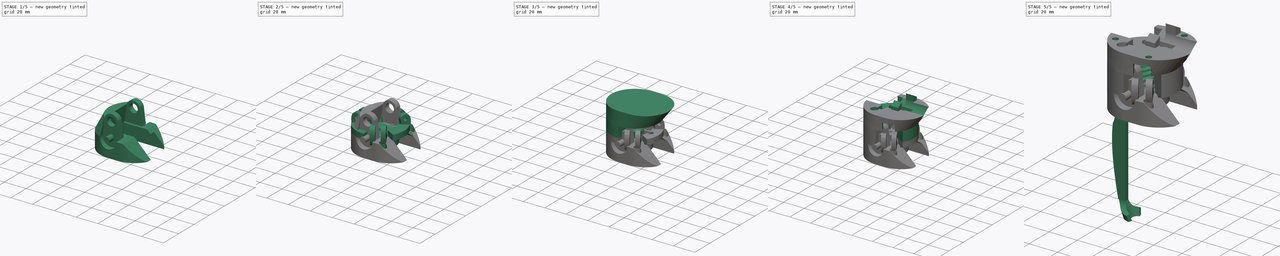
[diagram: build sequence overview — one tinted view per stage of 5, left to right]
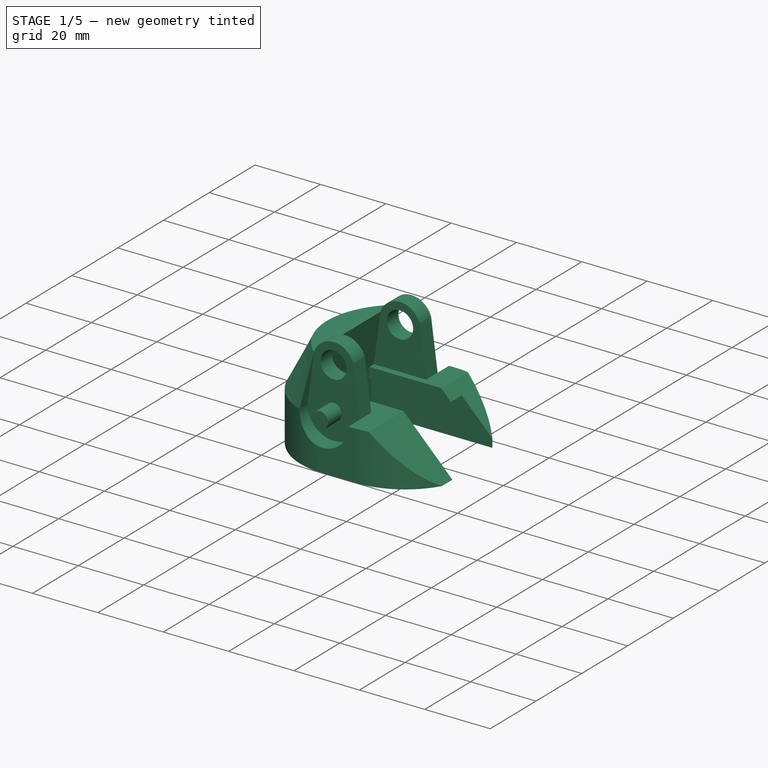
[diagram: stage 1 of 5 — iso view after this stage's code; geometry added in this stage tinted green]
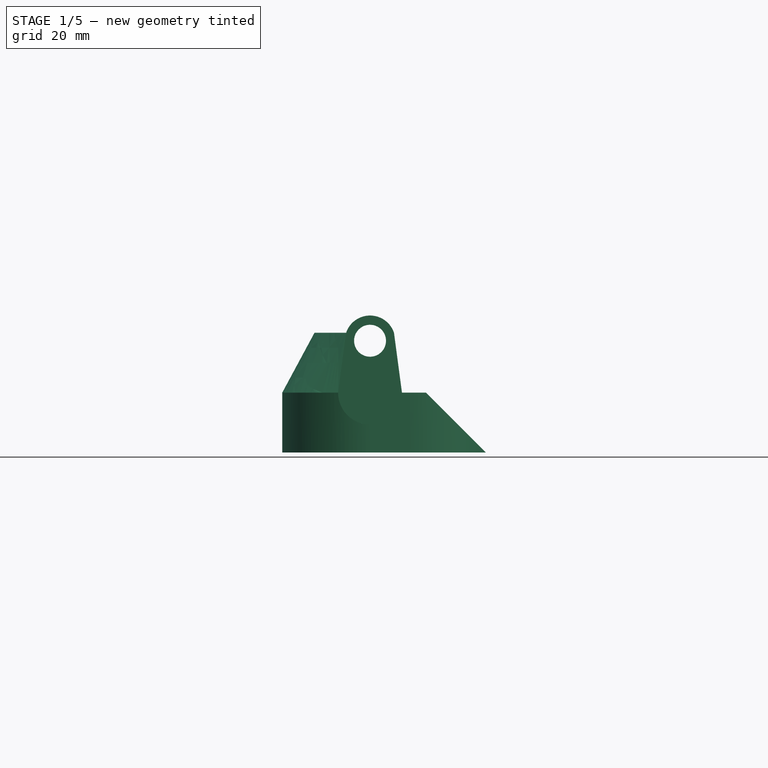
[diagram: stage 1 of 5 — front view after this stage's code; geometry added in this stage tinted green]
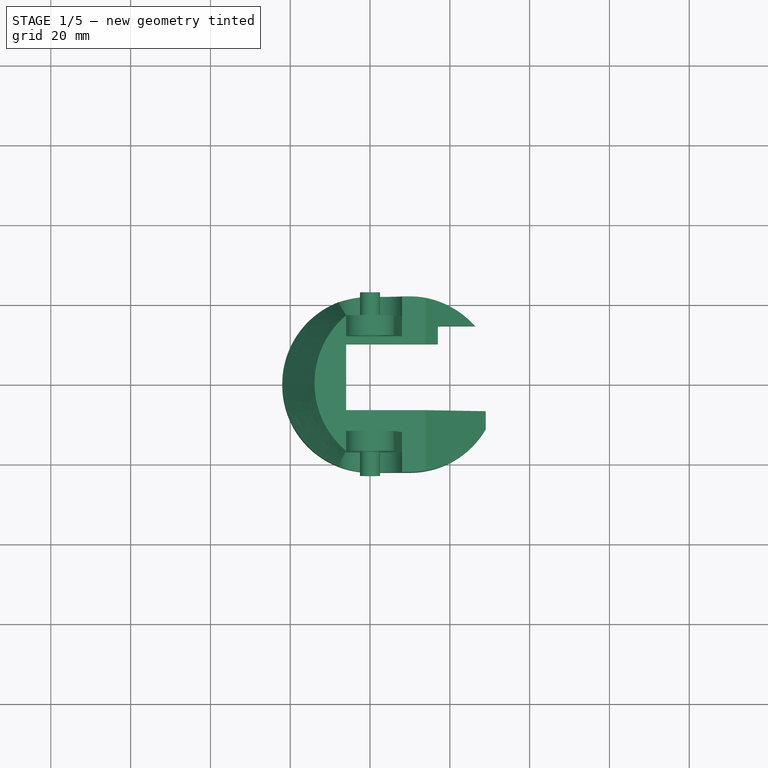
[diagram: stage 1 of 5 — top view after this stage's code; geometry added in this stage tinted green]
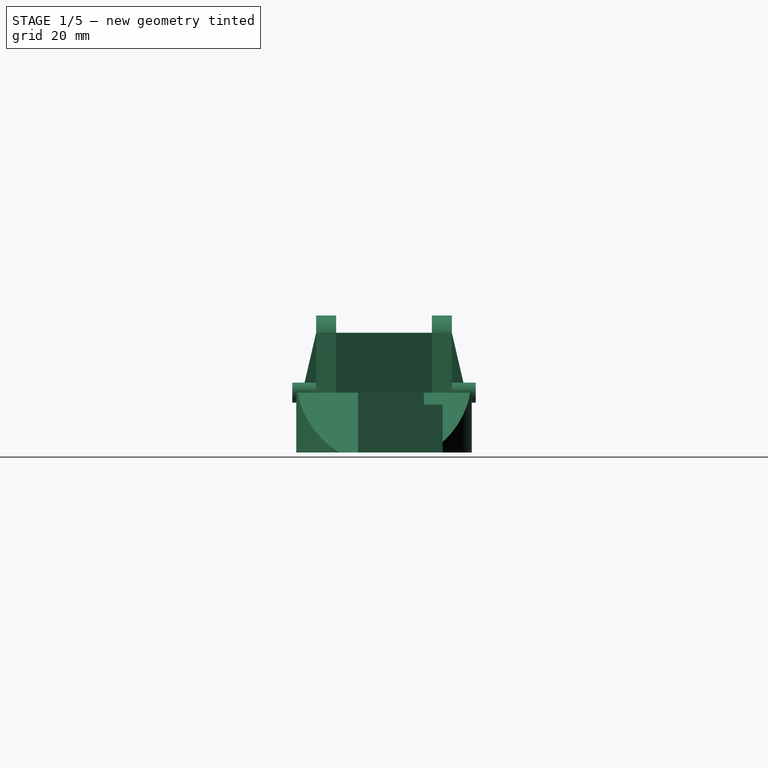
[diagram: stage 1 of 5 — right view after this stage's code; geometry added in this stage tinted green]
FCSTD DOCUMENT  (FreeCAD 1.0R39319 (Git))
Label: GripperHolder
License: All rights reserved
LicenseURL: https://en.wikipedia.org/wiki/All_rights_reserved
objects: Sketcher::SketchObject×52, PartDesign::Pocket×37, PartDesign::Pad×9, PartDesign::PolarPattern×9, App::Link×7, PartDesign::Body×6, PartDesign::AdditiveLoft×3, PartDesign::Mirrored×3, PartDesign::Chamfer×2, PartDesign::Fillet×2, PartDesign::FeaturePython×2, Part::Feature×1, App::LinkGroup×1
note: 298 computed .brp shape members not serialized (recipe doc carries the construction recipe); baked Part::Feature solids carry a one-line shape summary decoded from their .brp
EXTERNAL_REF file=Robot.FCStd obj=Spreadsheet
EXTERNAL_REF file=GripperFinger.FCStd obj=LinkGroup
EXTERNAL_REF file=GripperMainShaft.FCStd obj=Body
EXTERNAL_REF file=GM12-15BY.FCStd obj=LinkGroup
EXTERNAL_REF file=ChessPieces.FCStd obj=LinkGroup

FEATURE [Sketcher::SketchObject] Sketch063
  ArcFitTolerance = 1e-06
  AttachmentSupport = -> [Pocket002]
  FullyConstrained = false
  MakeInternals = false
  MapMode = 5
  Placement = pos=(0,-22,0) rot=(1,0,0;1.5708rad)
  sketch-geometry (3):
    g0: LineSegment StartX=14 StartY=0 StartZ=0 EndX=40.2734 EndY=-26.2734 EndZ=0
    g1: LineSegment StartX=14 StartY=0 StartZ=0 EndX=40.2734 EndY=0 EndZ=0
    g2: LineSegment StartX=40.2734 StartY=0 StartZ=0 EndX=40.2734 EndY=-26.2734 EndZ=0
  constraints (8):
    c: Angle(g0,g-1) = 0.785398
    c: Horizontal(g0,g-1)
    c: DistanceX(g-1,g0) = 14
    c: Coincident(g1,g0)
    c: PointOnObject(g1,g-1)
    c: Coincident(g2,g1)
    c: Coincident(g2,g0)
    c: Vertical(g2)
FEATURE [PartDesign::Pocket] Pocket030
  BaseFeature = -> Pocket002
  Direction = (0,1,-2e-16)
  Length = 12
  Length2 = 5
  Profile = -> Sketch063
  ReferenceAxis = -> Sketch063 [N_Axis]
  Refine = true
  Suppressed = false
  Type = 1
FEATURE [PartDesign::Mirrored] Mirrored006
  BaseFeature = -> Pocket030
  MirrorPlane = -> XZ_Plane
  Originals = -> [Pocket030]
  Refine = true
  Suppressed = false
  TransformMode = 1
FEATURE [Sketcher::SketchObject] Sketch106
  ArcFitTolerance = 1e-06
  AttachmentSupport = -> [Mirrored006]
  FullyConstrained = false
  MakeInternals = false
  MapMode = 5
  Placement = pos=(0,3.4e-15,-15) rot=(1,0,0;3.14159rad)
  sketch-geometry (4):
    g0: LineSegment StartX=-10.6241 StartY=11.3884 StartZ=0 EndX=-10.6241 EndY=-14.7 EndZ=0
    g1: LineSegment StartX=-10.6241 StartY=-14.7 StartZ=0 EndX=12.7711 EndY=-14.7 EndZ=0
    g2: LineSegment StartX=12.7711 StartY=-14.7 StartZ=0 EndX=12.7711 EndY=11.3884 EndZ=0
    g3: LineSegment StartX=12.7711 StartY=11.3884 StartZ=0 EndX=-10.6241 EndY=11.3884 EndZ=0
  constraints (9):
    c: Coincident(g0,g1)
    c: Coincident(g1,g2)
    c: Coincident(g2,g3)
    c: Coincident(g3,g0)
    c: Vertical(g0)
    c: Vertical(g2)
    c: Horizontal(g1)
    c: Horizontal(g3)
    c: Distance(g-1,g1) = 14.7
FEATURE [PartDesign::Pocket] Pocket066
  BaseFeature = -> Mirrored006
  Direction = (0,0,1)
  Length = 12
  Length2 = 5
  Profile = -> Sketch106
  ReferenceAxis = -> Sketch106 [N_Axis]
  Refine = true
  Suppressed = false
  Type = 0
FEATURE [Sketcher::SketchObject] Sketch107
  ArcFitTolerance = 1e-06
  AttachmentSupport = -> [Pocket066]
  FullyConstrained = false
  MakeInternals = false
  MapMode = 5
  Placement = pos=(12.7711,0,0) rot=(0.57735,-0.57735,-0.57735;2.0944rad)
  sketch-geometry (4):
    g0: LineSegment StartX=-14.7 StartY=-3 StartZ=0 EndX=-14.7 EndY=-21.6699 EndZ=0
    g1: LineSegment StartX=-14.7 StartY=-21.6699 StartZ=0 EndX=6.51936 EndY=-21.6699 EndZ=0
    g2: LineSegment StartX=6.51936 StartY=-21.6699 StartZ=0 EndX=6.51936 EndY=-3 EndZ=0
    g3: LineSegment StartX=6.51936 StartY=-3 StartZ=0 EndX=-14.7 EndY=-3 EndZ=0
  constraints (9):
    c: Coincident(g0,g1)
    c: Coincident(g1,g2)
    c: Coincident(g2,g3)
    c: Coincident(g3,g0)
    c: Vertical(g0)
    c: Vertical(g2)
    c: Horizontal(g1)
    c: Horizontal(g3)
    c: Distance(g-2,g0) = 14.7
FEATURE [PartDesign::Pocket] Pocket067
  BaseFeature = -> Pocket066
  Direction = (1,0,0)
  Length = 25
  Length2 = 5
  Profile = -> Sketch107
  ReferenceAxis = -> Sketch107 [N_Axis]
  Refine = true
  Suppressed = false
  Type = 1
FEATURE [Sketcher::SketchObject] Sketch108
  ArcFitTolerance = 1e-06
  AttachmentSupport = -> [YZ_Plane]
  FullyConstrained = false
  MakeInternals = false
  MapMode = 5
  Placement = pos=(0,0,0) rot=(0.57735,0.57735,0.57735;2.0944rad)
  sketch-geometry (4):
    g0: LineSegment StartX=14.8357 StartY=-7.40568 StartZ=0 EndX=20.3815 EndY=-10.7555 EndZ=0
    g1: LineSegment StartX=20.3815 StartY=-10.7555 StartZ=0 EndX=20.3815 EndY=-15.57 EndZ=0
    g2: LineSegment StartX=14.8357 StartY=-7.40568 StartZ=0 EndX=14.8357 EndY=-15.57 EndZ=0
    g3: LineSegment StartX=14.8357 StartY=-15.57 StartZ=0 EndX=20.3815 EndY=-15.57 EndZ=0
  constraints (7):
    c: Coincident(g0,g1)
    c: Vertical(g1)
    c: Coincident(g2,g0)
    c: Vertical(g2)
    c: Coincident(g3,g2)
    c: Coincident(g3,g1)
    c: Horizontal(g3)
FEATURE [PartDesign::Pocket] Pocket068
  BaseFeature = -> Pocket067
  Direction = (-1,0,0)
  Length = 12
  Length2 = 5
  Profile = -> Sketch108
  ReferenceAxis = -> Sketch108 [N_Axis]
  Refine = true
  Reversed = true
  Suppressed = false
  Type = 0
FEATURE [PartDesign::Body] Body012  label="GripperHolderMiddle002"
  AllowCompound = false
  Group = -> [Sketch092,Sketch093,AdditiveLoft007,Sketch095,Pad013,PolarPattern016,Sketch096,Pocket057,PolarPattern017,Sketch097,Pocket058,PolarPattern018,Sketch098,Pocket059,Sketch099,Pocket060,PolarPattern,Sketch100,Pocket061,Sketch101,Pocket062,Sketch102,Pocket063,Sketch103,Pad014,Sketch104,Pocket064,Sketch105,Pocket065,Sketch113,Pocket073]
  Origin = -> Origin012
  Placement = pos=(0,0,-28) rot=(0,0,1;0rad)
  Tip = -> Pocket073
FEATURE [Sketcher::SketchObject] Sketch109
  ArcFitTolerance = 1e-06
  AttachmentSupport = -> [Pocket068]
  ExternalGeometry = -> [Pocket068]
  FullyConstrained = false
  MakeInternals = false
  MapMode = 5
  Placement = pos=(0,0,-1.74e-14) rot=(0,0,1;0rad)
  sketch-geometry (4):
    g0: LineSegment StartX=-8 StartY=10 StartZ=0 EndX=-8 EndY=-6.51936 EndZ=0
    g1: LineSegment StartX=-8 StartY=-6.51936 StartZ=0 EndX=23.7244 EndY=-6.51936 EndZ=0
    g2: LineSegment StartX=23.7244 StartY=-6.51936 StartZ=0 EndX=23.7244 EndY=10 EndZ=0
    g3: LineSegment StartX=23.7244 StartY=10 StartZ=0 EndX=-8 EndY=10 EndZ=0
  constraints (11):
    c: Coincident(g0,g1)
    c: Coincident(g1,g2)
    c: Coincident(g2,g3)
    c: Coincident(g3,g0)
    c: Vertical(g0)
    c: Vertical(g2)
    c: Horizontal(g1)
    c: Horizontal(g3)
    c: Vertical(g0,g-3)
    c: Horizontal(g1,g-4)
    c: Horizontal(g-5,g2)
FEATURE [PartDesign::Pocket] Pocket069
  BaseFeature = -> Pocket068
  Direction = (0,0,-1)
  Length = 5
  Length2 = 5
  Profile = -> Sketch109
  ReferenceAxis = -> Sketch109 [N_Axis]
  Refine = true
  Suppressed = false
  Type = 0
FEATURE [PartDesign::Body] Body  label="GripperHolder"
  AllowCompound = false
  Group = -> [Sketch,Pad,Sketch001,Pocket,Sketch002,Pad001,Sketch003,Pad002,Sketch004,Sketch005,AdditiveLoft,Sketch006,Pocket001,Sketch007,Pocket002,Sketch063,Pocket030,Mirrored006,Sketch106,Pocket066,Sketch107,Pocket067,Sketch108,Pocket068,Sketch109,Pocket069,Sketch110,Pocket070,Sketch111,Pocket071,Sketch112,Pocket072,Chamfer001,Sketch114,Pocket074,Sketch117,Pocket077,Sketch118,Pocket078]
  Origin = -> Origin
  Placement = pos=(0,0,15) rot=(0,0,1;0rad)
  Tip = -> Pocket078
FEATURE [App::LinkGroup] LinkGroup  label="Gripper"
  ElementList = -> [Body004,Body,Body010,Part__Feature,Link013,Link,Link014,Link015,Body012,Link017]
  LinkMode = 0

RESOLVED EXTERNAL PARTS (link-assembly join: the EXTERNAL_REF files above that resolve inside this repo's crawl, each included once):
---- part ChessPieces.FCStd = doc fcstd_83fa68762cab ----
FCSTD DOCUMENT  (FreeCAD 1.0R39319 (Git))
Label: ChessPieces
License: All rights reserved
LicenseURL: https://en.wikipedia.org/wiki/All_rights_reserved
objects: PartDesign::Fillet×16, Sketcher::SketchObject×13, PartDesign::Revolution×6, PartDesign::Body×6, PartDesign::Pocket×4, PartDesign::Pad×3, PartDesign::Chamfer×2, PartDesign::PolarPattern×2, PartDesign::Mirrored×1, App::LinkGroup×1
note: 131 computed .brp shape members not serialized (recipe doc carries the construction recipe); baked Part::Feature solids carry a one-line shape summary decoded from their .brp

FEATURE [Sketcher::SketchObject] Sketch
  ArcFitTolerance = 1e-06
  AttachmentSupport = -> [XZ_Plane]
  FullyConstrained = false
  MakeInternals = false
  MapMode = 5
  Placement = pos=(0,0,0) rot=(1,0,0;1.5708rad)
  sketch-geometry (17):
    g0: LineSegment StartX=1.8e-15 StartY=5 StartZ=0 EndX=5 EndY=5 EndZ=0
    g1: LineSegment StartX=5 StartY=5 StartZ=0 EndX=5 EndY=0 EndZ=0
    g2: LineSegment StartX=5 StartY=0 StartZ=0 EndX=12.5 EndY=0 EndZ=0
    g3: LineSegment StartX=12.5 StartY=0 StartZ=0 EndX=12.5 EndY=2 EndZ=0
    g4: LineSegment StartX=1.8e-15 StartY=42 StartZ=0 EndX=1.8e-15 EndY=5 EndZ=0
    g5: LineSegment StartX=12.5 StartY=2 StartZ=0 EndX=11.5 EndY=3 EndZ=0
    g6: LineSegment StartX=11.5 StartY=3 StartZ=0 EndX=12.5 EndY=4 EndZ=0
    g7: LineSegment StartX=12.5 StartY=4 StartZ=0 EndX=12.5 EndY=6 EndZ=0
    g8: LineSegment StartX=12.5 StartY=6 StartZ=0 EndX=9.22427 EndY=15 EndZ=0
    g9: LineSegment StartX=9.22427 StartY=15 StartZ=0 EndX=11.2243 EndY=15 EndZ=0
    g10: LineSegment StartX=11.2243 StartY=15 StartZ=0 EndX=11.2243 EndY=18 EndZ=0
    g11: LineSegment StartX=11.2243 StartY=18 StartZ=0 EndX=8.22427 EndY=18 EndZ=0
    g12: LineSegment StartX=8.22427 StartY=18 StartZ=0 EndX=3.99876 EndY=28.5268 EndZ=0
    g13: LineSegment StartX=3.99876 StartY=28.5268 StartZ=0 EndX=8 EndY=28.5268 EndZ=0
    g14: LineSegment StartX=8 StartY=28.5268 StartZ=0 EndX=8 EndY=31.5268 EndZ=0
    g15: LineSegment StartX=8 StartY=31.5268 StartZ=0 EndX=3.99876 EndY=31.5268 EndZ=0
    g16: ArcOfCircle CenterX=0 CenterY=36 CenterZ=0 NormalX=0 NormalY=0 NormalZ=1 AngleXU=0 Radius=6 StartAngle=5.44184 EndAngle=7.85398
  constraints (51):
    c: PointOnObject(g0,g-2)
    c: Horizontal(g0)
    c: Coincident(g0,g1)
    c: PointOnObject(g1,g-1)
    c: Vertical(g1)
    c: Coincident(g1,g2)
    c: PointOnObject(g2,g-1)
    c: Coincident(g2,g3)
    c: Vertical(g3)
    c: Coincident(g4,g0)
    c: Vertical(g4)
    c: Coincident(g3,g5)
    c: Coincident(g5,g6)
    c: Coincident(g6,g7)
    c: Vertical(g7)
    c: Coincident(g7,g8)
    c: Coincident(g8,g9)
    c: Horizontal(g9)
    c: Coincident(g9,g10)
    c: Vertical(g10)
    c: Distance(g-2,g3) = 12.5
    c: DistanceY(g3,g3) = 2
    c: Angle(g5,g3) = 2.35619
    c: Angle(g5,g6) = 1.5708
    c: Vertical(g6,g3)
    c: DistanceY(g7,g7) = 2
    c: Angle(g8,g7) = 2.79253
    c: DistanceY(g10,g10) = 3
    c: DistanceY(g3,g6) = 2
    c: Coincident(g10,g11)
    c: Horizontal(g11)
    c: Coincident(g11,g12)
    c: Coincident(g12,g13)
    c: Coincident(g13,g14)
    c: Coincident(g14,g15)
    c: Horizontal(g15)
    c: Horizontal(g13)
    c: Vertical(g14)
    c: PointOnObject(g16,g-2)
    c: Coincident(g16,g15)
    c: Coincident(g4,g16)
    c: DistanceY(g14,g14) = 3
    c: Radius(g16) = 6
    c: Distance(g4,g14) = 8
    c: Distance(g-1,g9) = 15
    c: Distance(g-2,g1) = 5
    c: Distance(g1,g1) = 5
    c: Distance(g9,g9) = 2
    c: DistanceX(g11,g11) = 3
    c: DistanceY(g-1,g16) = 36
    c: Vertical(g15,g12)
FEATURE [PartDesign::Revolution] Revolution
  Angle = 360
  Angle2 = 60
  Axis = (0,2e-16,1)
  Base = (0,0,0)
  Placement = pos=(0,0,0) rot=(1,0,0;1.5708rad)
  Profile = -> Sketch
  ReferenceAxis = -> Sketch [V_Axis]
  Refine = true
  Reversed = true
  Suppressed = false
  Type = 0
FEATURE [PartDesign::Fillet] Fillet
  Base = -> Revolution [Edge22,Edge21,Edge16,Edge15]
  BaseFeature = -> Revolution
  Placement = pos=(0,0,0) rot=(1,0,0;1.5708rad)
  Radius = 1.49
  Refine = true
  SupportTransform = false
  Suppressed = false
  UseAllEdges = false
FEATURE [PartDesign::Fillet] Fillet001
  Base = -> Fillet [Edge5,Edge9,Edge16]
  BaseFeature = -> Fillet
  Placement = pos=(0,0,0) rot=(1,0,0;1.5708rad)
  Radius = 2
  Refine = true
  SupportTransform = false
  Suppressed = false
  UseAllEdges = false
FEATURE [PartDesign::Body] Body  label="Pawn"
  AllowCompound = false
  Group = -> [Sketch,Revolution,Fillet,Fillet001]
  Origin = -> Origin
  Tip = -> Fillet001
FEATURE [Sketcher::SketchObject] Sketch001
  ArcFitTolerance = 1e-06
  AttachmentSupport = -> [XZ_Plane001]
  FullyConstrained = false
  MakeInternals = false
  MapMode = 5
  Placement = pos=(0,0,0) rot=(1,0,0;1.5708rad)
  sketch-geometry (18):
    g0: LineSegment StartX=0 StartY=5 StartZ=0 EndX=5 EndY=5 EndZ=0
    g1: LineSegment StartX=5 StartY=5 StartZ=0 EndX=5 EndY=0 EndZ=0
    g2: LineSegment StartX=5 StartY=0 StartZ=0 EndX=12.5 EndY=0 EndZ=0
    g3: LineSegment StartX=12.5 StartY=0 StartZ=0 EndX=12.5 EndY=2 EndZ=0
    g4: LineSegment StartX=0 StartY=40 StartZ=0 EndX=0 EndY=5 EndZ=0
    g5: LineSegment StartX=12.5 StartY=2 StartZ=0 EndX=11.5 EndY=3 EndZ=0
    g6: LineSegment StartX=11.5 StartY=3 StartZ=0 EndX=12.5 EndY=4 EndZ=0
    g7: LineSegment StartX=12.5 StartY=4 StartZ=0 EndX=12.5 EndY=6 EndZ=0
    g8: LineSegment StartX=12.5 StartY=6 StartZ=0 EndX=9.22427 EndY=15 EndZ=0
    g9: LineSegment StartX=9.22427 StartY=15 StartZ=0 EndX=11.2243 EndY=15 EndZ=0
    g10: LineSegment StartX=11.2243 StartY=15 StartZ=0 EndX=11.2243 EndY=18 EndZ=0
    g11: LineSegment StartX=11.2243 StartY=18 StartZ=0 EndX=8.19813 EndY=18 EndZ=0
    g12: LineSegment StartX=8.19813 StartY=18 StartZ=0 EndX=5.67552 EndY=31.6803 EndZ=0
    g13: LineSegment StartX=8 StartY=35 StartZ=0 EndX=8 EndY=43 EndZ=0
    g14: LineSegment StartX=8 StartY=43 StartZ=0 EndX=6 EndY=43 EndZ=0
    g15: LineSegment StartX=6 StartY=43 StartZ=0 EndX=6 EndY=40 EndZ=0
    g16: LineSegment StartX=6 StartY=40 StartZ=0 EndX=0 EndY=40 EndZ=0
    g17: LineSegment StartX=8 StartY=35 StartZ=0 EndX=5.67552 EndY=31.6803 EndZ=0
  constraints (52):
    c: PointOnObject(g0,g-2)
    c: Horizontal(g0)
    c: Coincident(g0,g1)
    c: PointOnObject(g1,g-1)
    c: Vertical(g1)
    c: Coincident(g1,g2)
    c: PointOnObject(g2,g-1)
    c: Coincident(g2,g3)
    c: Vertical(g3)
    c: Coincident(g4,g0)
    c: Vertical(g4)
    c: Coincident(g3,g5)
    c: Coincident(g5,g6)
    c: Coincident(g6,g7)
    c: Vertical(g7)
    c: Coincident(g7,g8)
    c: Coincident(g8,g9)
    c: Horizontal(g9)
    c: Coincident(g9,g10)
    c: Vertical(g10)
    c: Distance(g-2,g3) = 12.5
    c: DistanceY(g3,g3) = 2
    c: Angle(g5,g3) = 2.35619
    c: Angle(g5,g6) = 1.5708
    c: Vertical(g6,g3)
    c: DistanceY(g7,g7) = 2
    c: Angle(g8,g7) = 2.79253
    c: DistanceY(g10,g10) = 3
    c: DistanceY(g3,g6) = 2
    c: Coincident(g10,g11)
    c: Horizontal(g11)
    c: Coincident(g11,g12)
    c: Coincident(g13,g14)
    c: Horizontal(g14)
    c: Vertical(g13)
    c: DistanceY(g13,g13) = 8
    c: DistanceY(g-1,g13) = 35
    c: Distance(g-1,g9) = 15
    c: Vertical(g15)
    c: Coincident(g15,g16)
    c: Horizontal(g16)
    c: Coincident(g14,g15)
    c: Coincident(g4,g16)
    c: Distance(g15,g15) = 3
    c: DistanceX(g14,g14) = 2
    c: Distance(g13,g4) = 8
    c: Distance(g-2,g1) = 5
    c: DistanceY(g1,g1) = 5
    c: Coincident(g12,g17)
    c: Angle(g13,g17) = 2.53073
    c: Coincident(g17,g13)
    c: Distance(g9,g9) = 2
FEATURE [PartDesign::Revolution] Revolution001
  Angle = 360
  Angle2 = 60
  Axis = (0,2e-16,1)
  Base = (0,0,0)
  Placement = pos=(0,0,0) rot=(1,0,0;1.5708rad)
  Profile = -> Sketch001
  ReferenceAxis = -> Sketch001 [V_Axis]
  Refine = true
  Reversed = true
  Suppressed = false
  Type = 0
FEATURE [PartDesign::Fillet] Fillet002
  Base = -> Revolution001 [Edge16,Edge15]
  BaseFeature = -> Revolution001
  Placement = pos=(0,0,0) rot=(1,0,0;1.5708rad)
  Radius = 1.49
  Refine = true
  SupportTransform = false
  Suppressed = false
  UseAllEdges = false
FEATURE [PartDesign::Fillet] Fillet003
  Base = -> Fillet002 [Edge28]
  BaseFeature = -> Fillet002
  Placement = pos=(0,0,0) rot=(1,0,0;1.5708rad)
  Radius = 2
  Refine = true
  SupportTransform = false
  Suppressed = false
  UseAllEdges = false
FEATURE [Sketcher::SketchObject] Sketch002
  ArcFitTolerance = 1e-06
  AttachmentSupport = -> [XZ_Plane002]
  FullyConstrained = false
  MakeInternals = false
  MapMode = 5
  Placement = pos=(0,0,0) rot=(1,0,0;1.5708rad)
  sketch-geometry (33):
    g0: LineSegment StartX=0 StartY=5 StartZ=0 EndX=5 EndY=5 EndZ=0
    g1: LineSegment StartX=5 StartY=5 StartZ=0 EndX=5 EndY=0 EndZ=0
    g2: LineSegment StartX=5 StartY=0 StartZ=0 EndX=12.5 EndY=0 EndZ=0
    g3: LineSegment StartX=12.5 StartY=0 StartZ=0 EndX=12.5 EndY=2 EndZ=0
    g4: LineSegment StartX=0 StartY=55 StartZ=0 EndX=0 EndY=5 EndZ=0
    g5: LineSegment StartX=12.5 StartY=2 StartZ=0 EndX=11.5 EndY=3 EndZ=0
    g6: LineSegment StartX=11.5 StartY=3 StartZ=0 EndX=12.5 EndY=4 EndZ=0
    g7: LineSegment StartX=12.5 StartY=4 StartZ=0 EndX=12.5 EndY=6 EndZ=0
    g8: LineSegment StartX=12.5 StartY=6 StartZ=0 EndX=9.22427 EndY=15 EndZ=0
    g9: LineSegment StartX=9.22427 StartY=15 StartZ=0 EndX=11.2243 EndY=15 EndZ=0
    g10: LineSegment StartX=11.2243 StartY=15 StartZ=0 EndX=11.2243 EndY=18 EndZ=0
    g11: LineSegment StartX=11.2243 StartY=18 StartZ=0 EndX=8.22427 EndY=18 EndZ=0
    g12: LineSegment StartX=8.22427 StartY=18 StartZ=0 EndX=5 EndY=33 EndZ=0
    g13: LineSegment StartX=5 StartY=33 StartZ=0 EndX=8 EndY=33 EndZ=0
    g14-g18: Circle [constr] x5 (B-spline internal-alignment scaffolding for g19; pole/knot coordinates omitted)
    g19: BSplineCurve PolesCount=5 KnotsCount=3 Degree=3 IsPeriodic=0
    g20: GeomPoint [constr] X=4.75971 Y=37.9162 Z=0
    g21: GeomPoint [constr] X=8.23966 Y=41.8153 Z=0
    g22: GeomPoint [constr] X=3.13449 Y=49.4894 Z=0
    g23-g26: Circle [constr] x4 (B-spline internal-alignment scaffolding for g27; pole/knot coordinates omitted)
    g27: BSplineCurve PolesCount=4 KnotsCount=2 Degree=3 IsPeriodic=0
    g28: GeomPoint [constr] X=3.13449 Y=49.4894 Z=0
    g29: GeomPoint [constr] X=0 Y=55 Z=0
    g30: LineSegment StartX=4.75971 StartY=37.9162 StartZ=0 EndX=4.75971 EndY=36 EndZ=0
    g31: LineSegment StartX=4.75971 StartY=36 StartZ=0 EndX=8 EndY=36 EndZ=0
    g32: LineSegment StartX=8 StartY=36 StartZ=0 EndX=8 EndY=33 EndZ=0
  constraints (65):
    c: PointOnObject(g0,g-2)
    c: Horizontal(g0)
    c: Coincident(g0,g1)
    c: PointOnObject(g1,g-1)
    c: Vertical(g1)
    c: Coincident(g1,g2)
    c: PointOnObject(g2,g-1)
    c: Coincident(g2,g3)
    c: Vertical(g3)
    c: Coincident(g4,g0)
    c: Vertical(g4)
    c: Coincident(g3,g5)
    c: Coincident(g5,g6)
    c: Coincident(g6,g7)
    c: Vertical(g7)
    c: Coincident(g7,g8)
    c: Coincident(g8,g9)
    c: Horizontal(g9)
    c: Coincident(g9,g10)
    c: Vertical(g10)
    c: Distance(g-2,g3) = 12.5
    c: DistanceY(g3,g3) = 2
    c: Angle(g5,g3) = 2.35619
    c: Angle(g5,g6) = 1.5708
    c: Vertical(g6,g3)
    c: DistanceY(g7,g7) = 2
    c: Angle(g8,g7) = 2.79253
    c: DistanceY(g10,g10) = 3
    c: DistanceY(g3,g6) = 2
    c: Coincident(g10,g11)
    c: Horizontal(g11)
    c: Coincident(g11,g12)
    c: Coincident(g12,g13)
    c: Horizontal(g13)
    c: DistanceY(g-1,g13) = 33
    c: Distance(g-1,g9) = 15
    c: DistanceX(g-1,g12) = 5
    c: Distance(g-2,g1) = 5
    c: DistanceY(g1,g1) = 5
    c: Weight(g14) = 1
    c: Equal(g14, g15-g18) x4
    c: InternalAlignment(g14-g18 -> g19) x5
    c: InternalAlignment(g20,g19)
    c: InternalAlignment(g21,g19)
    c: InternalAlignment(g22,g19)
    c: Weight(g23) = 1
    c: Equal(g23,g24)
    c: Equal(g23,g25)
    c: Equal(g23,g26)
    c: InternalAlignment(g23-g26 -> g27) x4
    c: InternalAlignment(g28,g27)
    c: InternalAlignment(g29,g27)
    c: Coincident(g23,g19)
    c: Coincident(g4,g27)
    c: Coincident(g30,g19)
    c: Vertical(g30)
    c: Coincident(g30,g31)
    c: Horizontal(g31)
    c: Coincident(g31,g32)
    c: Coincident(g32,g13)
    c: Vertical(g32)
    c: DistanceY(g32,g32) = 3
    c: DistanceY(g-1,g4) = 55
    c: DistanceX(g9,g9) = 2
    c: DistanceX(g11,g11) = 3
FEATURE [PartDesign::Revolution] Revolution002
  Angle = 360
  Angle2 = 60
  Axis = (0,2e-16,1)
  Base = (0,0,0)
  Placement = pos=(0,0,0) rot=(1,0,0;1.5708rad)
  Profile = -> Sketch002
  ReferenceAxis = -> Sketch002 [V_Axis]
  Refine = true
  Reversed = true
  Suppressed = false
  Type = 0
FEATURE [PartDesign::Fillet] Fillet004
  Base = -> Revolution002 [Edge16,Edge15]
  BaseFeature = -> Revolution002
  Placement = pos=(0,0,0) rot=(1,0,0;1.5708rad)
  Radius = 1.2
  Refine = true
  SupportTransform = false
  Suppressed = false
  UseAllEdges = false
FEATURE [PartDesign::Chamfer] Chamfer001
  Angle = 45
  Base = -> Fillet004 [Edge15]
  BaseFeature = -> Fillet004
  ChamferType = 0
  FlipDirection = false
  Placement = pos=(0,0,0) rot=(1,0,0;1.5708rad)
  Refine = true
  Size = 2
  Size2 = 1
  SupportTransform = false
  Suppressed = false
  UseAllEdges = false
FEATURE [Sketcher::SketchObject] Sketch003
  ArcFitTolerance = 1e-06
  AttachmentSupport = -> [XZ_Plane003]
  FullyConstrained = true
  MakeInternals = false
  MapMode = 5
  Placement = pos=(0,0,0) rot=(1,0,0;1.5708rad)
  sketch-geometry (12):
    g0: LineSegment StartX=0 StartY=5 StartZ=0 EndX=5 EndY=5 EndZ=0
    g1: LineSegment StartX=5 StartY=5 StartZ=0 EndX=5 EndY=0 EndZ=0
    g2: LineSegment StartX=5 StartY=0 StartZ=0 EndX=12.5 EndY=0 EndZ=0
    g3: LineSegment StartX=12.5 StartY=0 StartZ=0 EndX=12.5 EndY=2 EndZ=0
    g4: LineSegment StartX=0 StartY=18 StartZ=0 EndX=0 EndY=5 EndZ=0
    g5: LineSegment StartX=12.5 StartY=2 StartZ=0 EndX=11.5 EndY=3 EndZ=0
    g6: LineSegment StartX=11.5 StartY=3 StartZ=0 EndX=12.5 EndY=4 EndZ=0
    g7: LineSegment StartX=12.5 StartY=4 StartZ=0 EndX=12.5 EndY=6 EndZ=0
    g8: LineSegment StartX=12.5 StartY=6 StartZ=0 EndX=9.22427 EndY=15 EndZ=0
    g9: LineSegment StartX=9.22427 StartY=15 StartZ=0 EndX=11.2243 EndY=15 EndZ=0
    g10: LineSegment StartX=11.2243 StartY=15 StartZ=0 EndX=11.2243 EndY=18 EndZ=0
    g11: LineSegment StartX=11.2243 StartY=18 StartZ=0 EndX=0 EndY=18 EndZ=0
  constraints (36):
    c: PointOnObject(g0,g-2)
    c: Horizontal(g0)
    c: Coincident(g0,g1)
    c: PointOnObject(g1,g-1)
    c: Vertical(g1)
    c: Coincident(g1,g2)
    c: PointOnObject(g2,g-1)
    c: Coincident(g2,g3)
    c: Vertical(g3)
    c: Coincident(g4,g0)
    c: Vertical(g4)
    c: Coincident(g3,g5)
    c: Coincident(g5,g6)
    c: Coincident(g6,g7)
    c: Vertical(g7)
    c: Coincident(g7,g8)
    c: Coincident(g8,g9)
    c: Horizontal(g9)
    c: Coincident(g9,g10)
    c: Vertical(g10)
    c: Distance(g-2,g3) = 12.5
    c: DistanceY(g3,g3) = 2
    c: Angle(g5,g3) = 2.35619
    c: Angle(g5,g6) = 1.5708
    c: Vertical(g6,g3)
    c: DistanceY(g7,g7) = 2
    c: Angle(g8,g7) = 2.79253
    c: DistanceY(g10,g10) = 3
    c: DistanceY(g3,g6) = 2
    c: Coincident(g10,g11)
    c: Horizontal(g11)
    c: Distance(g-1,g9) = 15
    c: DistanceY(g1,g1) = 5
    c: Distance(g4,g1) = 5
    c: Coincident(g4,g11)
    c: DistanceX(g9,g9) = 2
FEATURE [PartDesign::Revolution] Revolution003
  Angle = 360
  Angle2 = 60
  Axis = (0,2e-16,1)
  Base = (0,0,0)
  Placement = pos=(0,0,0) rot=(1,0,0;1.5708rad)
  Profile = -> Sketch003
  ReferenceAxis = -> Sketch003 [V_Axis]
  Refine = true
  Reversed = true
  Suppressed = false
  Type = 0
FEATURE [PartDesign::Fillet] Fillet006
  Base = -> Revolution003 [Edge16,Edge15]
  BaseFeature = -> Revolution003
  Placement = pos=(0,0,0) rot=(1,0,0;1.5708rad)
  Radius = 1.2
  Refine = true
  SupportTransform = false
  Suppressed = false
  UseAllEdges = false
FEATURE [PartDesign::Fillet] Fillet007
  Base = -> Fillet006 [Edge5,Edge9,Edge15]
  BaseFeature = -> Fillet006
  Placement = pos=(0,0,0) rot=(1,0,0;1.5708rad)
  Radius = 2
  Refine = true
  SupportTransform = false
  Suppressed = false
  UseAllEdges = false
FEATURE [Sketcher::SketchObject] Sketch004
  ArcFitTolerance = 1e-06
  AttachmentSupport = -> [XZ_Plane004]
  FullyConstrained = false
  MakeInternals = false
  MapMode = 5
  Placement = pos=(0,0,0) rot=(1,0,0;1.5708rad)
  sketch-geometry (19):
    g0: LineSegment StartX=0 StartY=4.59574 StartZ=0 EndX=4.72966 EndY=4.59574 EndZ=0
    g1: LineSegment StartX=4.72966 StartY=4.59574 StartZ=0 EndX=4.72966 EndY=0 EndZ=0
    g2: LineSegment StartX=4.72966 StartY=0 StartZ=0 EndX=12.5 EndY=0 EndZ=0
    g3: LineSegment StartX=12.5 StartY=0 StartZ=0 EndX=12.5 EndY=2 EndZ=0
    g4: LineSegment StartX=0 StartY=44 StartZ=0 EndX=0 EndY=4.59574 EndZ=0
    g5: LineSegment StartX=12.5 StartY=2 StartZ=0 EndX=11.5 EndY=3 EndZ=0
    g6: LineSegment StartX=11.5 StartY=3 StartZ=0 EndX=12.5 EndY=4 EndZ=0
    g7: LineSegment StartX=12.5 StartY=4 StartZ=0 EndX=12.5 EndY=6 EndZ=0
    g8: LineSegment StartX=12.5 StartY=6 StartZ=0 EndX=9.22427 EndY=15 EndZ=0
    g9: LineSegment StartX=9.22427 StartY=15 StartZ=0 EndX=11.2243 EndY=15 EndZ=0
    g10: LineSegment StartX=11.2243 StartY=15 StartZ=0 EndX=11.2243 EndY=18 EndZ=0
    g11: LineSegment StartX=11.2243 StartY=18 StartZ=0 EndX=8.22427 EndY=18 EndZ=0
    g12: LineSegment StartX=8.22427 StartY=18 StartZ=0 EndX=5 EndY=35 EndZ=0
    g13: LineSegment StartX=5 StartY=35 StartZ=0 EndX=8 EndY=35 EndZ=0
    g14: LineSegment StartX=8 StartY=35 StartZ=0 EndX=8 EndY=38 EndZ=0
    g15: LineSegment StartX=8 StartY=38 StartZ=0 EndX=5.80074 EndY=38 EndZ=0
    g16: LineSegment StartX=5.80074 StartY=38 StartZ=0 EndX=8.02086 EndY=42 EndZ=0
    g17: LineSegment StartX=8.02086 StartY=42 StartZ=0 EndX=7.06401 EndY=44 EndZ=0
    g18: LineSegment StartX=7.06401 StartY=44 StartZ=0 EndX=0 EndY=44 EndZ=0
  constraints (52):
    c: PointOnObject(g0,g-2)
    c: Horizontal(g0)
    c: Coincident(g0,g1)
    c: PointOnObject(g1,g-1)
    c: Vertical(g1)
    c: Coincident(g1,g2)
    c: PointOnObject(g2,g-1)
    c: Coincident(g2,g3)
    c: Vertical(g3)
    c: Coincident(g4,g0)
    c: Vertical(g4)
    c: Coincident(g3,g5)
    c: Coincident(g5,g6)
    c: Coincident(g6,g7)
    c: Vertical(g7)
    c: Coincident(g7,g8)
    c: Coincident(g8,g9)
    c: Horizontal(g9)
    c: Coincident(g9,g10)
    c: Vertical(g10)
    c: Distance(g-2,g3) = 12.5
    c: DistanceY(g3,g3) = 2
    c: Angle(g5,g3) = 2.35619
    c: Angle(g5,g6) = 1.5708
    c: Vertical(g6,g3)
    c: DistanceY(g7,g7) = 2
    c: Angle(g8,g7) = 2.79253
    c: DistanceY(g10,g10) = 3
    c: DistanceY(g3,g6) = 2
    c: Coincident(g10,g11)
    c: Horizontal(g11)
    c: Coincident(g11,g12)
    c: Coincident(g12,g13)
    c: Coincident(g13,g14)
    c: Horizontal(g13)
    c: Vertical(g14)
    c: DistanceY(g14,g14) = 3
    c: Distance(g4,g14) = 8
    c: DistanceY(g-1,g13) = 35
    c: Distance(g-1,g9) = 15
    c: DistanceX(g-1,g12) = 5
    c: Coincident(g14,g15)
    c: Horizontal(g15)
    c: Coincident(g15,g16)
    c: Coincident(g16,g17)
    c: Coincident(g17,g18)
    c: Horizontal(g18)
    c: Coincident(g4,g18)
    c: DistanceY(g16,g17) = 2
    c: Distance(g-1,g18) = 44
    c: Distance(g9,g9) = 2
    c: DistanceX(g11,g11) = 3
FEATURE [PartDesign::Revolution] Revolution004
  Angle = 360
  Angle2 = 60
  Axis = (0,2e-16,1)
  Base = (0,0,0)
  Placement = pos=(0,0,0) rot=(1,0,0;1.5708rad)
  Profile = -> Sketch004
  ReferenceAxis = -> Sketch004 [V_Axis]
  Refine = true
  Reversed = true
  Suppressed = false
  Type = 0
FEATURE [PartDesign::Fillet] Fillet008
  Base = -> Revolution004 [Edge16,Edge15,Edge22,Edge21]
  BaseFeature = -> Revolution004
  Placement = pos=(0,0,0) rot=(1,0,0;1.5708rad)
  Radius = 1.45
  Refine = true
  SupportTransform = false
  Suppressed = false
  UseAllEdges = false
FEATURE [PartDesign::Fillet] Fillet009
  Base = -> Fillet008 [Edge5,Edge9,Edge16]
  BaseFeature = -> Fillet008
  Placement = pos=(0,0,0) rot=(1,0,0;1.5708rad)
  Radius = 2
  Refine = true
  SupportTransform = false
  Suppressed = false
  UseAllEdges = false
FEATURE [Sketcher::SketchObject] Sketch006
  ArcFitTolerance = 1e-06
  FullyConstrained = false
  MakeInternals = false
  MapMode = 5
  Placement = pos=(0,9.4e-15,43) rot=(0,0,1;3.14159rad)
  sketch-geometry (4):
    g0: LineSegment StartX=5.57791 StartY=1 StartZ=0 EndX=5.57791 EndY=-1 EndZ=0
    g1: LineSegment StartX=5.57791 StartY=-1 StartZ=0 EndX=13.1168 EndY=-1 EndZ=0
    g2: LineSegment StartX=13.1168 StartY=-1 StartZ=0 EndX=13.1168 EndY=1 EndZ=0
    g3: LineSegment StartX=13.1168 StartY=1 StartZ=0 EndX=5.57791 EndY=1 EndZ=0
  constraints (10):
    c: Coincident(g0,g1)
    c: Coincident(g1,g2)
    c: Coincident(g2,g3)
    c: Coincident(g3,g0)
    c: Vertical(g0)
    c: Vertical(g2)
    c: Horizontal(g1)
    c: Horizontal(g3)
    c: Distance(g-1,g3) = 1
    c: Distance(g-1,g1) = 1
FEATURE [PartDesign::Pocket] Pocket
  BaseFeature = -> Fillet003
  Direction = (0,0,-1)
  Length = 3
  Length2 = 5
  Placement = pos=(0,0,0) rot=(1,0,0;1.5708rad)
  Profile = -> Sketch006
  ReferenceAxis = -> Sketch006 [N_Axis]
  Refine = true
  Suppressed = false
  Type = 0
FEATURE [PartDesign::PolarPattern] PolarPattern
  Angle = 360
  Axis = -> Sketch006 [N_Axis]
  BaseFeature = -> Pocket
  Mode = 0
  Occurrences = 6
  Offset = 120
  Originals = -> [Pocket]
  Placement = pos=(0,0,0) rot=(1,0,0;1.5708rad)
  Refine = true
  Suppressed = false
  TransformMode = 0
FEATURE [PartDesign::Fillet] Fillet012
  Base = -> Fillet004 [Edge24,Edge23,Edge15,Edge12]
  BaseFeature = -> Fillet004
  Placement = pos=(0,0,0) rot=(1,0,0;1.5708rad)
  Radius = 1.49
  Refine = true
  SupportTransform = false
  Suppressed = false
  UseAllEdges = false
FEATURE [Sketcher::SketchObject] Sketch007
  ArcFitTolerance = 1e-06
  AttachmentSupport = -> [YZ_Plane002]
  FullyConstrained = false
  MakeInternals = false
  MapMode = 5
  Placement = pos=(0,0,0) rot=(0.57735,0.57735,0.57735;2.0944rad)
  sketch-geometry (4):
    g0: ArcOfCircle CenterX=-15.1086 CenterY=55.4806 CenterZ=0 NormalX=0 NormalY=0 NormalZ=1 AngleXU=0 Radius=1.5 StartAngle=0.785398 EndAngle=3.92699
    g1: ArcOfCircle CenterX=-2.48679 CenterY=42.8588 CenterZ=0 NormalX=0 NormalY=0 NormalZ=1 AngleXU=0 Radius=1.5 StartAngle=3.92699 EndAngle=7.06858
    g2: LineSegment StartX=-14.0479 StartY=56.5413 StartZ=0 EndX=-1.42613 EndY=43.9195 EndZ=0
    g3: LineSegment StartX=-16.1693 StartY=54.42 StartZ=0 EndX=-3.54745 EndY=41.7982 EndZ=0
  constraints (7):
    c: Tangent(g0,g2) = 1.5708
    c: Tangent(g0,g3) = -1.5708
    c: Tangent(g1,g2) = 1.5708
    c: Tangent(g1,g3) = -1.5708
    c: Equal(g0,g1)
    c: Angle(g-2,g2) = 0.785398
    c: Radius(g1) = 1.5
FEATURE [PartDesign::Pocket] Pocket001
  BaseFeature = -> Fillet012
  Direction = (-1,0,0)
  Length = 5
  Length2 = 5
  Midplane = true
  Placement = pos=(0,0,0) rot=(1,0,0;1.5708rad)
  Profile = -> Sketch007
  ReferenceAxis = -> Sketch007 [N_Axis]
  Refine = true
  Suppressed = false
  Type = 1
FEATURE [PartDesign::Body] Body002  label="Bishop"
  AllowCompound = false
  Group = -> [Sketch002,Revolution002,Fillet004,Chamfer001,Fillet012,Sketch007,Pocket001]
  Origin = -> Origin002
  Tip = -> Pocket001
FEATURE [Sketcher::SketchObject] Sketch008
  ArcFitTolerance = 1e-06
  AttachmentSupport = -> [XZ_Plane003]
  FullyConstrained = false
  MakeInternals = false
  MapMode = 5
  Placement = pos=(0,0,0) rot=(1,0,0;1.5708rad)
  sketch-geometry (22):
    g0: LineSegment StartX=-6 StartY=18 StartZ=0 EndX=6 EndY=18 EndZ=0
    g1: LineSegment StartX=6 StartY=18 StartZ=0 EndX=6 EndY=20.7478 EndZ=0
    g2: LineSegment StartX=6 StartY=20.7478 StartZ=0 EndX=-1.56157 EndY=31.5456 EndZ=0
    g3: LineSegment StartX=6.81288 StartY=27.1205 StartZ=0 EndX=9.90572 EndY=30.3085 EndZ=0
    g4: LineSegment StartX=9.90572 StartY=30.3085 StartZ=0 EndX=0 EndY=41.1572 EndZ=0
    g5: Circle [constr] CenterX=0 CenterY=47.0341 CenterZ=0 NormalX=0 NormalY=0 NormalZ=1 AngleXU=0 Radius=1
    g6-g10: Circle [constr] x5 (B-spline internal-alignment scaffolding for g11; pole/knot coordinates omitted)
    g11: BSplineCurve PolesCount=5 KnotsCount=3 Degree=3 IsPeriodic=0
    g12: GeomPoint [constr] X=-6 Y=18 Z=0
    g13: GeomPoint [constr] X=-10.5665 Y=36.8597 Z=0
    g14: GeomPoint [constr] X=0 Y=41.1572 Z=0
    g15: Circle [constr] CenterX=-1.56157 CenterY=31.5456 CenterZ=0 NormalX=0 NormalY=0 NormalZ=1 AngleXU=0 Radius=1
    g16: Circle [constr] CenterX=1.81676 CenterY=28.5479 CenterZ=0 NormalX=0 NormalY=0 NormalZ=1 AngleXU=0 Radius=1
    g17: Circle [constr] CenterX=4.48136 CenterY=29.4044 CenterZ=0 NormalX=0 NormalY=0 NormalZ=1 AngleXU=0 Radius=1
    g18: BSplineCurve PolesCount=3 KnotsCount=2 Degree=2 IsPeriodic=0
    g19: GeomPoint [constr] X=-1.56157 Y=31.5456 Z=0
    g20: GeomPoint [constr] X=4.48136 Y=29.4044 Z=0
    g21: LineSegment StartX=4.48136 StartY=29.4044 StartZ=0 EndX=6.81288 EndY=27.1205 EndZ=0
  constraints (29):
    c: PointOnObject(g0,g-3)
    c: PointOnObject(g0,g-3)
    c: Coincident(g0,g1)
    c: Vertical(g1)
    c: Coincident(g1,g2)
    c: Coincident(g3,g4)
    c: PointOnObject(g4,g-2)
    c: Weight(g5) = 1
    c: Weight(g6) = 1
    c: Equal(g6, g7-g10) x4
    c: InternalAlignment(g6-g10 -> g11) x5
    c: InternalAlignment(g12,g11)
    c: InternalAlignment(g13,g11)
    c: InternalAlignment(g14,g11)
    c: Coincident(g6,g0)
    c: Coincident(g10,g4)
    c: Weight(g15) = 1
    c: Equal(g15,g16)
    c: Equal(g15,g17)
    c: InternalAlignment(g15,g18)
    c: InternalAlignment(g16,g18)
    c: InternalAlignment(g17,g18)
    c: InternalAlignment(g19,g18)
    c: InternalAlignment(g20,g18)
    c: Coincident(g15,g2)
    c: Coincident(g21,g18)
    c: Coincident(g21,g3)
    c: Distance(g11,g-2) = 6
    c: Distance(g0,g-2) = 6
FEATURE [PartDesign::Pad] Pad
  BaseFeature = -> Fillet007
  Direction = (0,-1,2e-16)
  Length = 8
  Length2 = 10
  Midplane = true
  Placement = pos=(0,0,0) rot=(1,0,0;1.5708rad)
  Profile = -> Sketch008
  ReferenceAxis = -> Sketch008 [N_Axis]
  Refine = true
  Suppressed = false
  Type = 0
FEATURE [Sketcher::SketchObject] Sketch009
  ArcFitTolerance = 1e-06
  AttachmentSupport = -> [XZ_Plane003]
  ExternalGeometry = -> [Pad]
  FullyConstrained = false
  MakeInternals = false
  MapMode = 5
  Placement = pos=(0,0,0) rot=(1,0,0;1.5708rad)
  sketch-geometry (14):
    g0: LineSegment StartX=0.64772 StartY=44.0864 StartZ=0 EndX=8.9e-15 EndY=41.1572 EndZ=0
    g1: LineSegment StartX=8.9e-15 StartY=41.1572 StartZ=0 EndX=-6.46016 EndY=40.2259 EndZ=0
    g2: LineSegment StartX=-6.46016 StartY=40.2259 StartZ=0 EndX=-9.07542 EndY=36.5645 EndZ=0
    g3: LineSegment StartX=-9.07542 StartY=36.5645 StartZ=0 EndX=-8.4749 EndY=24.582 EndZ=0
    g4: LineSegment StartX=-8.4749 StartY=24.582 StartZ=0 EndX=-11.4749 EndY=24.582 EndZ=0
    g5-g9: Circle [constr] x5 (B-spline internal-alignment scaffolding for g10; pole/knot coordinates omitted)
    g10: BSplineCurve PolesCount=5 KnotsCount=3 Degree=3 IsPeriodic=0
    g11: GeomPoint [constr] X=0.64772 Y=44.0864 Z=0
    g12: GeomPoint [constr] X=-14.3634 Y=39.0244 Z=0
    g13: GeomPoint [constr] X=-11.4749 Y=24.582 Z=0
  constraints (15):
    c: Coincident(g0,g1)
    c: Coincident(g1,g2)
    c: Coincident(g2,g3)
    c: Coincident(g3,g4)
    c: Horizontal(g4)
    c: Distance(g0,g0) = 3
    c: DistanceX(g4,g4) = 3
    c: Weight(g5) = 1
    c: Equal(g5, g6-g9) x4
    c: InternalAlignment(g5-g9 -> g10) x5
    c: InternalAlignment(g11,g10)
    c: InternalAlignment(g12,g10)
    c: InternalAlignment(g13,g10)
    c: Coincident(g5,g0)
    c: Coincident(g9,g4)
FEATURE [PartDesign::Pad] Pad001
  BaseFeature = -> Pad
  Direction = (0,-1,2e-16)
  Length = 3
  Length2 = 10
  Midplane = true
  Placement = pos=(0,0,0) rot=(1,0,0;1.5708rad)
  Profile = -> Sketch009
  ReferenceAxis = -> Sketch009 [N_Axis]
  Refine = true
  Suppressed = false
  Type = 0
FEATURE [PartDesign::Fillet] Fillet013
  Base = -> Pad001 [Edge59,Edge41,Edge40,Edge39,Edge38,Edge37,Edge36,Edge35]
  BaseFeature = -> Pad001
  Placement = pos=(0,0,0) rot=(1,0,0;1.5708rad)
  Radius = 2
  Refine = true
  SupportTransform = false
  Suppressed = false
  UseAllEdges = false
FEATURE [Sketcher::SketchObject] Sketch010
  ArcFitTolerance = 1e-06
  AttachmentSupport = -> [Fillet013]
  FullyConstrained = false
  MakeInternals = false
  MapMode = 5
  Placement = pos=(0,-4,0) rot=(1,0,0;1.5708rad)
  sketch-geometry (2):
    g0: Circle CenterX=-3.65167 CenterY=36.3906 CenterZ=0 NormalX=0 NormalY=0 NormalZ=1 AngleXU=0 Radius=2
    g1: Circle CenterX=-3.65167 CenterY=36.3906 CenterZ=0 NormalX=0 NormalY=0 NormalZ=1 AngleXU=0 Radius=1
  constraints (3):
    c: Coincident(g1,g0)
    c: Diameter(g0) = 4
    c: Diameter(g1) = 2
FEATURE [PartDesign::Pocket] Pocket002
  BaseFeature = -> Fillet013
  Direction = (0,1,-2e-16)
  Length = 1
  Length2 = 5
  Placement = pos=(0,0,0) rot=(1,0,0;1.5708rad)
  Profile = -> Sketch010
  ReferenceAxis = -> Sketch010 [N_Axis]
  Refine = true
  Suppressed = false
  Type = 0
FEATURE [PartDesign::Fillet] Fillet017
  Base = -> PolarPattern [Edge119,Edge120]
  BaseFeature = -> PolarPattern
  Placement = pos=(0,0,0) rot=(1,0,0;1.5708rad)
  Radius = 1.49
  Refine = true
  SupportTransform = false
  Suppressed = false
  UseAllEdges = false
FEATURE [PartDesign::Body] Body001  label="Rook"
  AllowCompound = false
  Group = -> [Sketch001,Revolution001,Fillet002,Fillet003,Sketch006,Pocket,PolarPattern,Fillet017]
  Origin = -> Origin001
  Tip = -> Fillet017
FEATURE [PartDesign::Fillet] Fillet018
  Base = -> PolarPattern001 [Edge186]
  BaseFeature = -> PolarPattern001
  Placement = pos=(0,0,0) rot=(1,0,0;1.5708rad)
  Radius = 1
  Refine = true
  SupportTransform = false
  Suppressed = false
  UseAllEdges = false
FEATURE [PartDesign::Body] Body005  label="Queen"
  AllowCompound = false
  Group = -> [Sketch012,Revolution005,Fillet015,Fillet016,Sketch013,Pocket003,PolarPattern001,Fillet018]
  Origin = -> Origin005
  Tip = -> Fillet018
FEATURE [App::LinkGroup] LinkGroup  label="ChessPieces"
  ElementList = -> [Body,Body001,Body002,Body003,Body004,Body005]
  LinkMode = 0
---- part GM12-15BY.FCStd = doc fcstd_c1a292fd6681 ----
FCSTD DOCUMENT  (FreeCAD 1.0R39319 (Git))
Label: GM12-15BY
License: All rights reserved
LicenseURL: https://en.wikipedia.org/wiki/All_rights_reserved
objects: Sketcher::SketchObject×7, PartDesign::Pad×7, PartDesign::Body×2, PartDesign::Fillet×2, App::LinkGroup×1
note: 43 computed .brp shape members not serialized (recipe doc carries the construction recipe); baked Part::Feature solids carry a one-line shape summary decoded from their .brp

FEATURE [Sketcher::SketchObject] Sketch
  ArcFitTolerance = 1e-06
  AttachmentSupport = -> [XY_Plane]
  FullyConstrained = false
  MakeInternals = false
  MapMode = 5
  sketch-geometry (14):
    g0: LineSegment StartX=-11.1 StartY=1.67033 StartZ=0 EndX=-4.125 EndY=6.26374 EndZ=0
    g1: ArcOfCircle CenterX=0 CenterY=0 CenterZ=0 NormalX=0 NormalY=0 NormalZ=1 AngleXU=0 Radius=7.5 StartAngle=1.5708 EndAngle=2.15316
    g2: ArcOfCircle CenterX=-10 CenterY=0 CenterZ=0 NormalX=0 NormalY=0 NormalZ=1 AngleXU=0 Radius=2 StartAngle=2.15316 EndAngle=3.14159
    g3: LineSegment StartX=11.1 StartY=1.67033 StartZ=0 EndX=4.125 EndY=6.26374 EndZ=0
    g4: ArcOfCircle CenterX=0 CenterY=0 CenterZ=0 NormalX=0 NormalY=0 NormalZ=1 AngleXU=0 Radius=7.5 StartAngle=0.988432 EndAngle=1.5708
    g5: ArcOfCircle CenterX=10 CenterY=0 CenterZ=0 NormalX=0 NormalY=0 NormalZ=1 AngleXU=0 Radius=2 StartAngle=1e-16 EndAngle=0.988432
    g6: LineSegment StartX=-11.1 StartY=-1.67033 StartZ=0 EndX=-4.125 EndY=-6.26374 EndZ=0
    g7: ArcOfCircle CenterX=0 CenterY=0 CenterZ=0 NormalX=0 NormalY=0 NormalZ=1 AngleXU=0 Radius=7.5 StartAngle=4.13002 EndAngle=4.71239
    g8: ArcOfCircle CenterX=-10 CenterY=0 CenterZ=0 NormalX=0 NormalY=0 NormalZ=1 AngleXU=0 Radius=2 StartAngle=3.14159 EndAngle=4.13002
    g9: LineSegment StartX=11.1 StartY=-1.67033 StartZ=0 EndX=4.125 EndY=-6.26374 EndZ=0
    g10: ArcOfCircle CenterX=0 CenterY=0 CenterZ=0 NormalX=0 NormalY=0 NormalZ=1 AngleXU=0 Radius=7.5 StartAngle=4.71239 EndAngle=5.29475
    g11: ArcOfCircle CenterX=10 CenterY=0 CenterZ=0 NormalX=0 NormalY=0 NormalZ=1 AngleXU=0 Radius=2 StartAngle=5.29475 EndAngle=6.28319
    g12: Circle CenterX=-10 CenterY=0 CenterZ=0 NormalX=0 NormalY=0 NormalZ=1 AngleXU=0 Radius=1
    g13: Circle CenterX=10 CenterY=0 CenterZ=0 NormalX=0 NormalY=0 NormalZ=1 AngleXU=0 Radius=1
  constraints (14):
    c: Coincident(g1,g0)
    c: PointOnObject(g1,g-2)
    c: Coincident(g2,g0)
    c: PointOnObject(g2,g-1)
    c: Coincident(g4,g3)
    c: Coincident(g5,g3)
    c: Coincident(g7,g6)
    c: Coincident(g8,g6)
    c: Coincident(g10,g9)
    c: Coincident(g11,g9)
    c: Diameter(g12) = 2
    c: Coincident(g12,g2)
    c: Diameter(g13) = 2
    c: Coincident(g13,g5)
FEATURE [PartDesign::Pad] Pad
  Direction = (0,0,1)
  Length = 1.8
  Length2 = 10
  Profile = -> Sketch
  ReferenceAxis = -> Sketch [N_Axis]
  Refine = true
  Suppressed = false
  Type = 0
FEATURE [Sketcher::SketchObject] Sketch001
  ArcFitTolerance = 1e-06
  AttachmentSupport = -> [Pad]
  FullyConstrained = true
  MakeInternals = false
  MapMode = 5
  Placement = pos=(0,0,1.8) rot=(0,0,1;0rad)
  sketch-geometry (1):
    g0: Circle CenterX=0 CenterY=0 CenterZ=0 NormalX=0 NormalY=0 NormalZ=1 AngleXU=0 Radius=2.7
  constraints (2):
    c: Diameter(g0) = 5.4
    c: Coincident(g0,g-1)
FEATURE [PartDesign::Pad] Pad001
  BaseFeature = -> Pad
  Direction = (0,0,1)
  Length = 2
  Length2 = 10
  Profile = -> Sketch001
  ReferenceAxis = -> Sketch001 [N_Axis]
  Refine = true
  Suppressed = false
  Type = 0
FEATURE [Sketcher::SketchObject] Sketch002
  ArcFitTolerance = 1e-06
  AttachmentSupport = -> [Pad001]
  FullyConstrained = true
  MakeInternals = false
  MapMode = 5
  Placement = pos=(0,0,3.8) rot=(0,0,1;0rad)
  sketch-geometry (2):
    g0: LineSegment StartX=-1.11803 StartY=1 StartZ=0 EndX=1.11803 EndY=1 EndZ=0
    g1: ArcOfCircle CenterX=0 CenterY=0 CenterZ=0 NormalX=0 NormalY=0 NormalZ=1 AngleXU=0 Radius=1.5 StartAngle=2.41186 EndAngle=7.01291
  constraints (6):
    c: Horizontal(g0)
    c: Distance(g-1,g0) = 1
    c: Radius(g1) = 1.5
    c: Coincident(g1,g-1)
    c: Coincident(g0,g1)
    c: Coincident(g0,g1)
FEATURE [PartDesign::Pad] Pad002
  BaseFeature = -> Pad001
  Direction = (0,0,1)
  Length = 7
  Length2 = 10
  Profile = -> Sketch002
  ReferenceAxis = -> Sketch002 [N_Axis]
  Refine = true
  Suppressed = false
  Type = 0
FEATURE [Sketcher::SketchObject] Sketch
  ArcFitTolerance = 1e-06
  AttachmentSupport = -> [InvoluteGear]
  FullyConstrained = false
  MakeInternals = false
  MapMode = 5
  Placement = pos=(0,0,0) rot=(1,0,0;3.14159rad)
  sketch-geometry (4):
    g0: LineSegment StartX=-14.5578 StartY=0 StartZ=0 EndX=16.3975 EndY=0 EndZ=0
    g1: LineSegment StartX=16.3975 StartY=0 StartZ=0 EndX=16.3975 EndY=18.6359 EndZ=0
    g2: LineSegment StartX=16.3975 StartY=18.6359 StartZ=0 EndX=-14.5578 EndY=18.6359 EndZ=0
    g3: LineSegment StartX=-14.5578 StartY=18.6359 StartZ=0 EndX=-14.5578 EndY=0 EndZ=0
  constraints (9):
    c: Coincident(g0,g1)
    c: Coincident(g1,g2)
    c: Coincident(g2,g3)
    c: Coincident(g3,g0)
    c: Horizontal(g0)
    c: Horizontal(g2)
    c: Vertical(g1)
    c: Vertical(g3)
    c: PointOnObject(g0,g-1)
FEATURE [PartDesign::Pocket] Pocket
  BaseFeature = -> InvoluteGear
  Direction = (0,0,1)
  Length = 5
  Length2 = 5
  Profile = -> Sketch
  ReferenceAxis = -> Sketch [N_Axis]
  Refine = true
  Suppressed = false
  Type = 0
FEATURE [Sketcher::SketchObject] Sketch001
  ArcFitTolerance = 1e-06
  AttachmentSupport = -> [Pocket]
  FullyConstrained = false
  MakeInternals = false
  MapMode = 5
  Placement = pos=(0,0,0) rot=(1,0,0;3.14159rad)
  sketch-geometry (19):
    g0: Circle [constr] CenterX=-12.5729 CenterY=5 CenterZ=0 NormalX=0 NormalY=0 NormalZ=1 AngleXU=0 Radius=1
    g1: Circle [constr] CenterX=-3.431 CenterY=4.75166 CenterZ=0 NormalX=0 NormalY=0 NormalZ=1 AngleXU=0 Radius=1
    g2: Circle [constr] CenterX=0 CenterY=7.7378 CenterZ=0 NormalX=0 NormalY=0 NormalZ=1 AngleXU=0 Radius=1
    g3: BSplineCurve PolesCount=3 KnotsCount=2 Degree=2 IsPeriodic=0
    g4: GeomPoint [constr] X=-12.5729 Y=5 Z=0
    g5: GeomPoint [constr] X=0 Y=7.7378 Z=0
    g6: Circle [constr] CenterX=0 CenterY=7.7378 CenterZ=0 NormalX=0 NormalY=0 NormalZ=1 AngleXU=0 Radius=1
    g7: Circle [constr] CenterX=13.1074 CenterY=10.5842 CenterZ=0 NormalX=0 NormalY=0 NormalZ=1 AngleXU=0 Radius=1
    g8: Circle [constr] CenterX=49.4395 CenterY=3 CenterZ=0 NormalX=0 NormalY=0 NormalZ=1 AngleXU=0 Radius=1
    g9: BSplineCurve PolesCount=3 KnotsCount=2 Degree=2 IsPeriodic=0
    g10: GeomPoint [constr] X=0 Y=7.7378 Z=0
    g11: GeomPoint [constr] X=49.4395 Y=3 Z=0
    g12: LineSegment StartX=0 StartY=-5 StartZ=0 EndX=49.4395 EndY=-5 EndZ=0
    g13: LineSegment StartX=49.4395 StartY=3 StartZ=0 EndX=49.4395 EndY=-5 EndZ=0
    g14: Circle CenterX=40.3116 CenterY=-2 CenterZ=0 NormalX=0 NormalY=0 NormalZ=1 AngleXU=0 Radius=1
    g15: LineSegment StartX=-13.5306 StartY=8.3e-15 StartZ=0 EndX=0 EndY=8.3e-15 EndZ=0
    g16: LineSegment StartX=0 StartY=8.3e-15 StartZ=0 EndX=0 EndY=-5 EndZ=0
    g17: ArcOfCircle CenterX=0 CenterY=8.3e-15 CenterZ=0 NormalX=0 NormalY=0 NormalZ=1 AngleXU=0 Radius=13.5306 StartAngle=2.76309 EndAngle=3.14159
    g18: Circle CenterX=31.0778 CenterY=0.597944 CenterZ=0 NormalX=0 NormalY=0 NormalZ=1 AngleXU=0 Radius=1
  constraints (36):
    c: Weight(g0) = 1
    c: Equal(g0,g1)
    c: Equal(g0,g2)
    c: InternalAlignment(g0,g3)
    c: InternalAlignment(g1,g3)
    c: InternalAlignment(g2,g3)
    c: InternalAlignment(g4,g3)
    c: InternalAlignment(g5,g3)
    c: Weight(g6) = 1
    c: Equal(g6,g7)
    c: Equal(g6,g8)
    c: InternalAlignment(g6,g9)
    c: InternalAlignment(g7,g9)
    c: InternalAlignment(g8,g9)
    c: InternalAlignment(g10,g9)
    c: InternalAlignment(g11,g9)
    c: Coincident(g6,g3)
    c: Horizontal(g12)
    c: Coincident(g13,g9)
    c: Coincident(g13,g12)
    c: Vertical(g13)
    c: Vertical(g-1,g9)
    c: Diameter(g14) = 2
    c: DistanceY(g12,g14) = 3
    c: DistanceY(g14,g9) = 5
    c: Distance(g14,g-1) = 2
    c: Vertical(g12,g-1)
    c: Coincident(g15,g-1)
    c: Coincident(g15,g16)
    c: Coincident(g16,g12)
    c: Distance(g3,g15) = 5
    c: Horizontal(g15,g15)
    c: Coincident(g17,g15)
    c: Coincident(g17,g3)
    c: Coincident(g17,g15)
    c: Diameter(g18) = 2
FEATURE [PartDesign::Pad] Pad
  BaseFeature = -> Pocket
  Direction = (0,0,-1)
  Length = 4
  Length2 = 10
  Profile = -> Sketch001
  ReferenceAxis = -> Sketch001 [N_Axis]
  Refine = true
  Reversed = true
  Suppressed = false
  Type = 0
FEATURE [Sketcher::SketchObject] Sketch005
  ArcFitTolerance = 1e-06
  AttachmentSupport = -> [Pad]
  FullyConstrained = true
  MakeInternals = false
  MapMode = 5
  Placement = pos=(0,0,0) rot=(1,0,0;3.14159rad)
  sketch-geometry (1):
    g0: Circle CenterX=0 CenterY=0 CenterZ=0 NormalX=0 NormalY=0 NormalZ=1 AngleXU=0 Radius=3
  constraints (2):
    c: Diameter(g0) = 6
    c: Coincident(g0,g-1)
FEATURE [PartDesign::Pocket] Pocket003
  BaseFeature = -> Pad
  Direction = (0,0,1)
  Length = 5
  Length2 = 5
  Profile = -> Sketch005
  ReferenceAxis = -> Sketch005 [N_Axis]
  Refine = true
  Suppressed = false
  Type = 0
FEATURE [Sketcher::SketchObject] Sketch007
  ArcFitTolerance = 1e-06
  AttachmentOffset = pos=(0,0,0) rot=(0,0,1;1.5708rad)
  AttachmentSupport = -> [XY_Plane001]
  FullyConstrained = false
  MakeInternals = false
  MapMode = 5
  Placement = pos=(0,0,0) rot=(0,0,1;1.5708rad)
  sketch-geometry (14):
    g0: Circle [constr] CenterX=2.20889 CenterY=9 CenterZ=0 NormalX=0 NormalY=0 NormalZ=1 AngleXU=0 Radius=1
    g1: Circle [constr] CenterX=-12.7369 CenterY=0 CenterZ=0 NormalX=0 NormalY=0 NormalZ=1 AngleXU=0 Radius=1
    g2: Circle [constr] CenterX=2.20889 CenterY=-9 CenterZ=0 NormalX=0 NormalY=0 NormalZ=1 AngleXU=0 Radius=1
    g3: BSplineCurve PolesCount=3 KnotsCount=2 Degree=2 IsPeriodic=0
    g4: GeomPoint [constr] X=2.20889 Y=9 Z=0
    g5: GeomPoint [constr] X=2.20889 Y=-9 Z=0
    g6: Circle [constr] CenterX=4.70918 CenterY=6 CenterZ=0 NormalX=0 NormalY=0 NormalZ=1 AngleXU=0 Radius=1
    g7: Circle [constr] CenterX=-2.96231 CenterY=0 CenterZ=0 NormalX=0 NormalY=0 NormalZ=1 AngleXU=0 Radius=1
    g8: Circle [constr] CenterX=4.70918 CenterY=-6 CenterZ=0 NormalX=0 NormalY=0 NormalZ=1 AngleXU=0 Radius=1
    g9: BSplineCurve PolesCount=3 KnotsCount=2 Degree=2 IsPeriodic=0
    g10: GeomPoint [constr] X=4.70918 Y=6 Z=0
    g11: GeomPoint [constr] X=4.70918 Y=-6 Z=0
    g12: LineSegment StartX=2.20889 StartY=9 StartZ=0 EndX=4.70918 EndY=6 EndZ=0
    g13: LineSegment StartX=4.70918 StartY=-6 StartZ=0 EndX=2.20889 EndY=-9 EndZ=0
  constraints (28):
    c: Weight(g0) = 1
    c: Equal(g0,g1)
    c: Equal(g0,g2)
    c: InternalAlignment(g0,g3)
    c: InternalAlignment(g1,g3)
    c: InternalAlignment(g2,g3)
    c: InternalAlignment(g4,g3)
    c: InternalAlignment(g5,g3)
    c: Vertical(g3,g3)
    c: Weight(g6) = 1
    c: Equal(g6,g7)
    c: Equal(g6,g8)
    c: InternalAlignment(g6,g9)
    c: InternalAlignment(g7,g9)
    c: InternalAlignment(g8,g9)
    c: InternalAlignment(g10,g9)
    c: InternalAlignment(g11,g9)
    c: Vertical(g9,g9)
    c: Coincident(g12,g3)
    c: Coincident(g12,g9)
    c: Coincident(g13,g9)
    c: Coincident(g13,g3)
    c: Horizontal(g7,g-1)
    c: Horizontal(g1,g-1)
    c: DistanceY(g-1,g9) = 6
    c: DistanceY(g9,g-1) = 6
    c: DistanceY(g-1,g3) = 9
    c: DistanceY(g3,g-1) = 9
FEATURE [Sketcher::SketchObject] Sketch010
  ArcFitTolerance = 1e-06
  AttachmentOffset = pos=(0,-2,8) rot=(0,0,1;1.5708rad)
  AttachmentSupport = -> [XY_Plane001]
  FullyConstrained = false
  MakeInternals = false
  MapMode = 5
  Placement = pos=(0,-2,8) rot=(0,0,1;1.5708rad)
  sketch-geometry (14):
    g0: Circle [constr] CenterX=0.265703 CenterY=11 CenterZ=0 NormalX=0 NormalY=0 NormalZ=1 AngleXU=0 Radius=1
    g1: Circle [constr] CenterX=-18.309 CenterY=0 CenterZ=0 NormalX=0 NormalY=0 NormalZ=1 AngleXU=0 Radius=1
    g2: Circle [constr] CenterX=0.265703 CenterY=-11 CenterZ=0 NormalX=0 NormalY=0 NormalZ=1 AngleXU=0 Radius=1
    g3: BSplineCurve PolesCount=3 KnotsCount=2 Degree=2 IsPeriodic=0
    g4: GeomPoint [constr] X=0.265703 Y=11 Z=0
    g5: GeomPoint [constr] X=0.265703 Y=-11 Z=0
    g6: Circle [constr] CenterX=4.23692 CenterY=8 CenterZ=0 NormalX=0 NormalY=0 NormalZ=1 AngleXU=0 Radius=1
    g7: Circle [constr] CenterX=-7.14762 CenterY=0 CenterZ=0 NormalX=0 NormalY=0 NormalZ=1 AngleXU=0 Radius=1
    g8: Circle [constr] CenterX=4.23692 CenterY=-8 CenterZ=0 NormalX=0 NormalY=0 NormalZ=1 AngleXU=0 Radius=1
    g9: BSplineCurve PolesCount=3 KnotsCount=2 Degree=2 IsPeriodic=0
    g10: GeomPoint [constr] X=4.23692 Y=8 Z=0
    g11: GeomPoint [constr] X=4.23692 Y=-8 Z=0
    g12: LineSegment StartX=0.265703 StartY=11 StartZ=0 EndX=4.23692 EndY=8 EndZ=0
    g13: LineSegment StartX=4.23692 StartY=-8 StartZ=0 EndX=0.265703 EndY=-11 EndZ=0
  constraints (28):
    c: Weight(g0) = 1
    c: Equal(g0,g1)
    c: Equal(g0,g2)
    c: InternalAlignment(g0,g3)
    c: InternalAlignment(g1,g3)
    c: InternalAlignment(g2,g3)
    c: InternalAlignment(g4,g3)
    c: InternalAlignment(g5,g3)
    c: Vertical(g3,g3)
    c: Weight(g6) = 1
    c: Equal(g6,g7)
    c: Equal(g6,g8)
    c: InternalAlignment(g6,g9)
    c: InternalAlignment(g7,g9)
    c: InternalAlignment(g8,g9)
    c: InternalAlignment(g10,g9)
    c: InternalAlignment(g11,g9)
    c: Vertical(g9,g9)
    c: Coincident(g12,g3)
    c: Coincident(g12,g9)
    c: Coincident(g13,g9)
    c: Coincident(g13,g3)
    c: Horizontal(g7,g-1)
    c: Horizontal(g1,g-1)
    c: DistanceY(g9,g-1) = 8
    c: Distance(g9,g-1) = 8
    c: DistanceY(g-1,g3) = 11
    c: DistanceY(g3,g-1) = 11
FEATURE [Sketcher::SketchObject] Sketch012
  ArcFitTolerance = 1e-06
  AttachmentOffset = pos=(0,0,-25) rot=(0,0,1;0rad)
  AttachmentSupport = -> [YZ_Plane]
  FullyConstrained = false
  MakeInternals = false
  MapMode = 5
  Placement = pos=(-25,0,0) rot=(0.57735,0.57735,0.57735;2.0944rad)
  sketch-geometry (4):
    g0: LineSegment StartX=-24.0271 StartY=12.204 StartZ=0 EndX=-24.0271 EndY=3.5 EndZ=0
    g1: LineSegment StartX=-24.0271 StartY=3.5 StartZ=0 EndX=23.0976 EndY=3.5 EndZ=0
    g2: LineSegment StartX=23.0976 StartY=3.5 StartZ=0 EndX=23.0976 EndY=12.204 EndZ=0
    g3: LineSegment StartX=23.0976 StartY=12.204 StartZ=0 EndX=-24.0271 EndY=12.204 EndZ=0
  constraints (9):
    c: Coincident(g0,g1)
    c: Coincident(g1,g2)
    c: Coincident(g2,g3)
    c: Coincident(g3,g0)
    c: Vertical(g0)
    c: Vertical(g2)
    c: Horizontal(g1)
    c: Horizontal(g3)
    c: Distance(g-1,g1) = 3.5
FEATURE [PartDesign::Pocket] Pocket006
  BaseFeature = -> Pocket003
  Direction = (-1,0,0)
  Length = 5
  Length2 = 5
  Profile = -> Sketch012
  ReferenceAxis = -> Sketch012 [N_Axis]
  Refine = true
  Reversed = true
  Suppressed = false
  Type = 1
FEATURE [PartDesign::Body] Body  label="GripperFinger"
  AllowCompound = false
  Group = -> [InvoluteGear,Sketch,Pocket,Sketch001,Pad,Sketch005,Pocket003,Sketch012,Pocket006]
  Origin = -> Origin
  Placement = pos=(0,0,0) rot=(0,1,0;1.5708rad)
  Tip = -> Pocket006
FEATURE [PartDesign::AdditiveLoft] AdditiveLoft
  Closed = false
  Profile = -> Sketch007
  Refine = true
  Ruled = false
  Sections = -> [Sketch010]
  Suppressed = false
FEATURE [Sketcher::SketchObject] Sketch020
  ArcFitTolerance = 1e-06
  AttachmentOffset = pos=(0,0,1.5) rot=(0,0,1;0rad)
  AttachmentSupport = -> [Pocket010]
  FullyConstrained = false
  MakeInternals = false
  MapMode = 5
  Placement = pos=(0,0,-1.5) rot=(1,0,0;3.14159rad)
  sketch-geometry (17):
    g0: Circle [constr] CenterX=-12.5995 CenterY=5 CenterZ=0 NormalX=0 NormalY=0 NormalZ=1 AngleXU=0 Radius=1
    g1: Circle [constr] CenterX=-3.0955 CenterY=5.05206 CenterZ=0 NormalX=0 NormalY=0 NormalZ=1 AngleXU=0 Radius=1
    g2: Circle [constr] CenterX=0 CenterY=7 CenterZ=0 NormalX=0 NormalY=0 NormalZ=1 AngleXU=0 Radius=1
    g3: BSplineCurve PolesCount=3 KnotsCount=2 Degree=2 IsPeriodic=0
    g4: GeomPoint [constr] X=-12.5995 Y=5 Z=0
    g5: GeomPoint [constr] X=0 Y=7 Z=0
    g6: Circle [constr] CenterX=0 CenterY=7 CenterZ=0 NormalX=0 NormalY=0 NormalZ=1 AngleXU=0 Radius=1
    g7: Circle [constr] CenterX=13.9579 CenterY=6.86109 CenterZ=0 NormalX=0 NormalY=0 NormalZ=1 AngleXU=0 Radius=1
    g8: Circle [constr] CenterX=75 CenterY=1.7e-15 CenterZ=0 NormalX=0 NormalY=0 NormalZ=1 AngleXU=0 Radius=1
    g9: BSplineCurve PolesCount=3 KnotsCount=2 Degree=2 IsPeriodic=0
    g10: GeomPoint [constr] X=0 Y=7 Z=0
    g11: GeomPoint [constr] X=75 Y=0 Z=0
    g12: LineSegment StartX=0 StartY=-5 StartZ=0 EndX=75 EndY=-5 EndZ=0
    g13: LineSegment StartX=-13.5554 StartY=1.7e-15 StartZ=0 EndX=0 EndY=1.7e-15 EndZ=0
    g14: LineSegment StartX=0 StartY=1.7e-15 StartZ=0 EndX=0 EndY=-5 EndZ=0
    g15: ArcOfCircle CenterX=0 CenterY=1.7e-15 CenterZ=0 NormalX=0 NormalY=0 NormalZ=1 AngleXU=0 Radius=13.5554 StartAngle=2.76381 EndAngle=3.14159
    g16: LineSegment StartX=75 StartY=1.7e-15 StartZ=0 EndX=75 EndY=-5 EndZ=0
  constraints (35):
    c: Weight(g0) = 1
    c: Equal(g0,g1)
    c: Equal(g0,g2)
    c: InternalAlignment(g0,g3)
    c: InternalAlignment(g1,g3)
    c: InternalAlignment(g2,g3)
    c: InternalAlignment(g4,g3)
    c: InternalAlignment(g5,g3)
    c: Weight(g6) = 1
    c: Equal(g6,g7)
    c: Equal(g6,g8)
    c: InternalAlignment(g6,g9)
    c: InternalAlignment(g7,g9)
    c: InternalAlignment(g8,g9)
    c: InternalAlignment(g10,g9)
    c: InternalAlignment(g11,g9)
    c: Coincident(g6,g3)
    c: Horizontal(g12)
    c: Vertical(g-1,g9)
    c: Vertical(g12,g-1)
    c: Coincident(g13,g-1)
    c: Coincident(g13,g14)
    c: Coincident(g14,g12)
    c: Distance(g3,g13) = 5
    c: Horizontal(g13,g13)
    c: Coincident(g15,g13)
    c: Coincident(g15,g3)
    c: Coincident(g15,g13)
    c: Coincident(g16,g9)
    c: Vertical(g16)
    c: Distance(g-2,g16) = 75
    c: DistanceY(g-1,g9) = 7
    c: Coincident(g12,g16)
    c: Horizontal(g9,g13)
    c: Distance(g-1,g12) = 5
FEATURE [PartDesign::Pad] Pad001
  BaseFeature = -> Pocket010
  Direction = (0,0,-1)
  Length = 7
  Length2 = 10
  Profile = -> Sketch020
  ReferenceAxis = -> Sketch020 [N_Axis]
  Refine = true
  Reversed = true
  Suppressed = false
  Type = 0
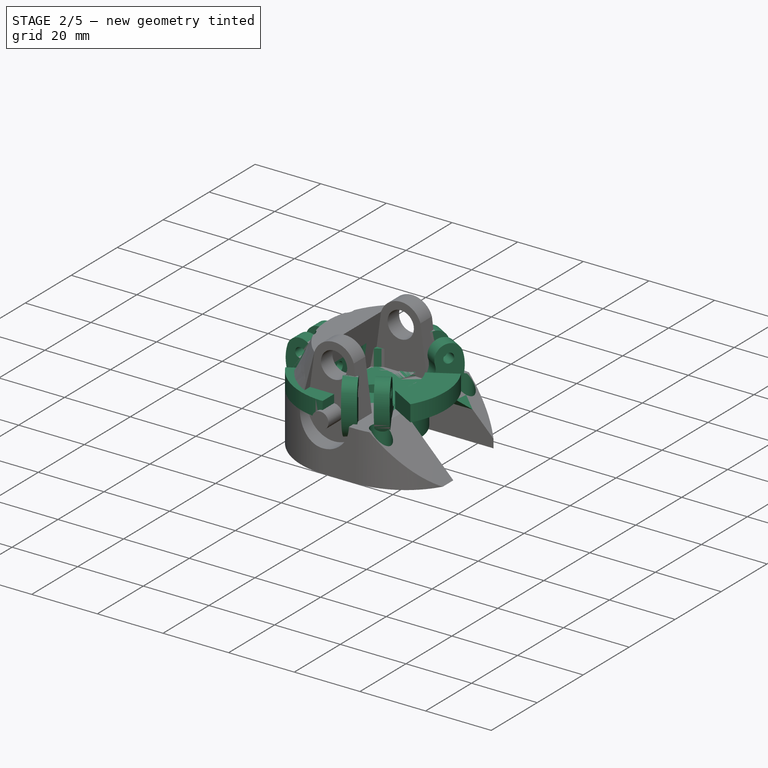
[diagram: stage 2 of 5 — iso view after this stage's code; geometry added in this stage tinted green]
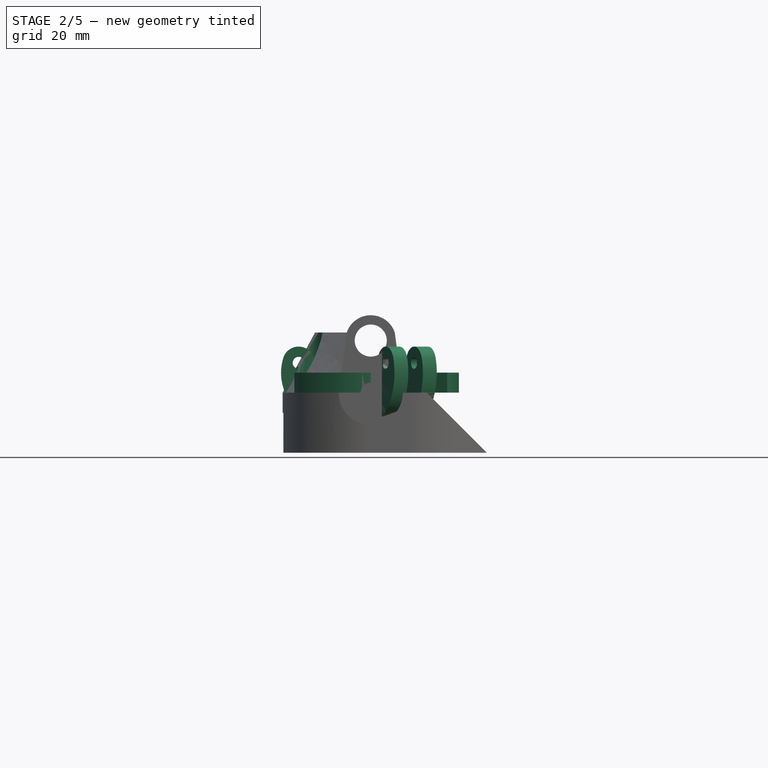
[diagram: stage 2 of 5 — front view after this stage's code; geometry added in this stage tinted green]
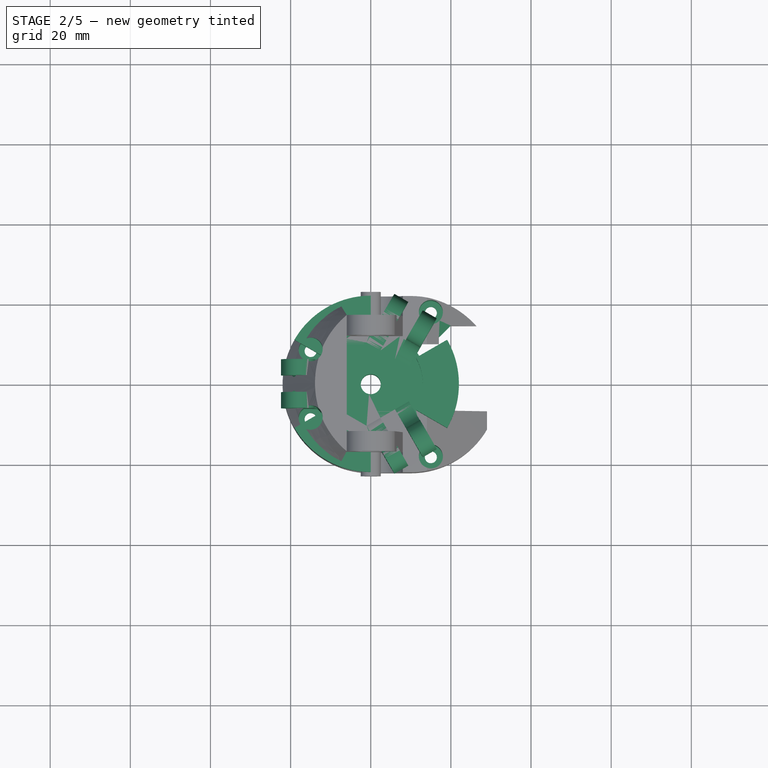
[diagram: stage 2 of 5 — top view after this stage's code; geometry added in this stage tinted green]
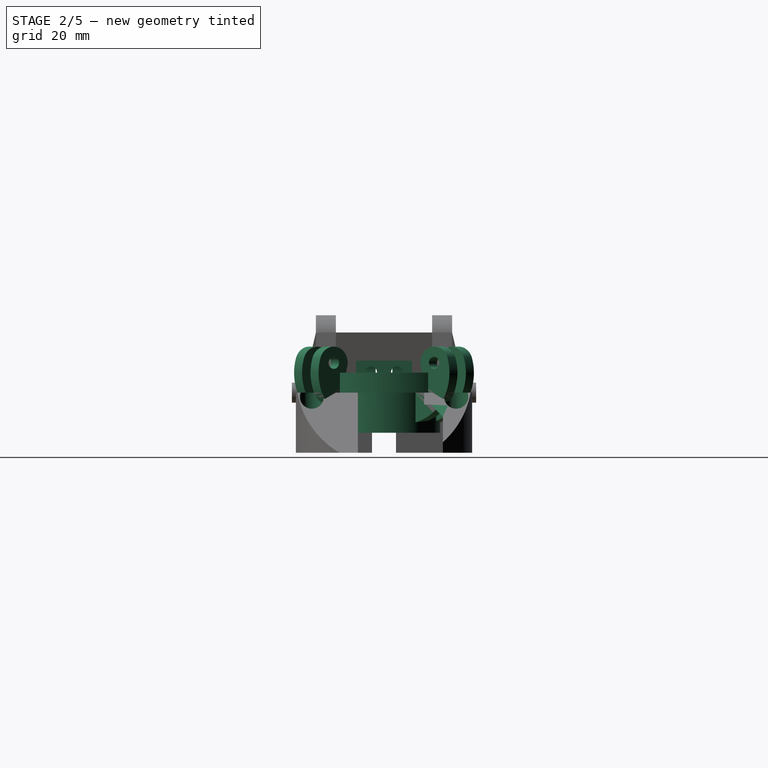
[diagram: stage 2 of 5 — right view after this stage's code; geometry added in this stage tinted green]
FEATURE [Sketcher::SketchObject] Sketch
  ArcFitTolerance = 1e-06
  AttachmentSupport = -> [XY_Plane]
  FullyConstrained = true
  MakeInternals = false
  MapMode = 5
  expr: Constraints[7] = <<Spreadsheet>>.GripperWidth / 2
  sketch-geometry (4):
    g0: ArcOfCircle CenterX=0 CenterY=0 CenterZ=0 NormalX=0 NormalY=0 NormalZ=1 AngleXU=0 Radius=22 StartAngle=1.5708 EndAngle=4.71239
    g1: ArcOfCircle CenterX=10 CenterY=-1.3e-15 CenterZ=0 NormalX=0 NormalY=0 NormalZ=1 AngleXU=0 Radius=22 StartAngle=4.71239 EndAngle=7.85398
    g2: LineSegment StartX=-3.5e-15 StartY=22 StartZ=0 EndX=10 EndY=22 EndZ=0
    g3: LineSegment StartX=-4e-15 StartY=-22 StartZ=0 EndX=10 EndY=-22 EndZ=0
  constraints (9):
    c: Tangent(g0,g2) = 1.5708
    c: Tangent(g0,g3) = -1.5708
    c: Tangent(g1,g2) = 1.5708
    c: Tangent(g1,g3) = -1.5708
    c: Equal(g0,g1)
    c: Horizontal(g3)
    c: Distance(g0,g1) = 10
    c: Radius(g0) = 22
    c: Coincident(g0,g-1)
FEATURE [PartDesign::Pad] Pad
  Direction = (0,0,1)
  Length = 15
  Length2 = 10
  Profile = -> Sketch
  ReferenceAxis = -> Sketch [N_Axis]
  Refine = true
  Reversed = true
  Suppressed = false
  Type = 0
FEATURE [Sketcher::SketchObject] Sketch001
  ArcFitTolerance = 1e-06
  AttachmentSupport = -> [Pad]
  FullyConstrained = true
  MakeInternals = false
  MapMode = 5
  Placement = pos=(0,-22,0) rot=(1,0,0;1.5708rad)
  sketch-geometry (4):
    g0: ArcOfCircle CenterX=0 CenterY=0 CenterZ=0 NormalX=0 NormalY=0 NormalZ=1 AngleXU=0 Radius=8 StartAngle=3.14159 EndAngle=6.28319
    g1: ArcOfCircle CenterX=-4e-16 CenterY=18 CenterZ=0 NormalX=0 NormalY=0 NormalZ=1 AngleXU=0 Radius=8 StartAngle=4.3e-15 EndAngle=3.14159
    g2: LineSegment StartX=-8 StartY=-6.634e-13 StartZ=0 EndX=-8 EndY=18 EndZ=0
    g3: LineSegment StartX=8 StartY=-3.004e-13 StartZ=0 EndX=8 EndY=18 EndZ=0
  constraints (9):
    c: Tangent(g0,g2) = 1.5708
    c: Tangent(g0,g3) = -1.5708
    c: Tangent(g1,g2) = 1.5708
    c: Tangent(g1,g3) = -1.5708
    c: Equal(g0,g1)
    c: Vertical(g3)
    c: DistanceY(g0,g1) = 18
    c: Radius(g1) = 8
    c: Coincident(g0,g-1)
FEATURE [PartDesign::Pocket] Pocket
  BaseFeature = -> Pad
  Direction = (0,1,-2e-16)
  Length = 5
  Length2 = 5
  Profile = -> Sketch001
  ReferenceAxis = -> Sketch001 [N_Axis]
  Refine = true
  Suppressed = false
  Type = 0
FEATURE [Sketcher::SketchObject] Sketch002
  ArcFitTolerance = 1e-06
  AttachmentSupport = -> [Pocket]
  FullyConstrained = true
  MakeInternals = false
  MapMode = 5
  Placement = pos=(0,-17,0) rot=(1,0,0;1.5708rad)
  expr: Constraints[6] = <<Spreadsheet>>.UpperBearingHole
  expr: Constraints[7] = <<Spreadsheet>>.FirstToSecondHoleSpace
  sketch-geometry (5):
    g0: LineSegment StartX=-8 StartY=0 StartZ=0 EndX=8 EndY=0 EndZ=0
    g1: LineSegment StartX=8 StartY=0 StartZ=0 EndX=6 EndY=15 EndZ=0
    g2: LineSegment StartX=-6 StartY=15 StartZ=0 EndX=-8 EndY=0 EndZ=0
    g3: ArcOfCircle CenterX=-1e-16 CenterY=13 CenterZ=0 NormalX=0 NormalY=0 NormalZ=1 AngleXU=0 Radius=6.32456 StartAngle=0.321751 EndAngle=2.81984
    g4: Circle CenterX=-1e-16 CenterY=13 CenterZ=0 NormalX=0 NormalY=0 NormalZ=1 AngleXU=0 Radius=4
  constraints (15):
    c: Coincident(g0,g1)
    c: Coincident(g2,g0)
    c: Horizontal(g0)
    c: Coincident(g3,g2)
    c: Coincident(g3,g1)
    c: Coincident(g4,g3)
    c: Diameter(g4) = 8
    c: Distance(g3,g0) = 13
    c: Distance(g2,g-2) = 6
    c: Distance(g1,g-2) = 6
    c: Horizontal(g1,g2)
    c: Distance(g0,g-2) = 8
    c: Distance(g0,g-2) = 8
    c: Distance(g2,g0) = 15
    c: Horizontal(g0,g-1)
FEATURE [PartDesign::Pad] Pad001
  BaseFeature = -> Pocket
  Direction = (0,-1,2e-16)
  Length = 5
  Length2 = 10
  Profile = -> Sketch002
  ReferenceAxis = -> Sketch002 [N_Axis]
  Refine = true
  Reversed = true
  Suppressed = false
  Type = 0
FEATURE [Sketcher::SketchObject] Sketch003
  ArcFitTolerance = 1e-06
  AttachmentSupport = -> [Pad001]
  FullyConstrained = true
  MakeInternals = false
  MapMode = 5
  Placement = pos=(0,-17,0) rot=(1,0,0;1.5708rad)
  expr: Constraints[0] = <<Spreadsheet>>.GripperLowerHoleDiameter
  sketch-geometry (1):
    g0: Circle CenterX=0 CenterY=0 CenterZ=0 NormalX=0 NormalY=0 NormalZ=1 AngleXU=0 Radius=2.5
  constraints (2):
    c: Diameter(g0) = 5
    c: Coincident(g0,g-1)
FEATURE [PartDesign::Pad] Pad002
  BaseFeature = -> Pad001
  Direction = (0,-1,2e-16)
  Length = 6
  Length2 = 10
  Profile = -> Sketch003
  ReferenceAxis = -> Sketch003 [N_Axis]
  Refine = true
  Suppressed = false
  Type = 0
FEATURE [Sketcher::SketchObject] Sketch004
  ArcFitTolerance = 1e-06
  AttachmentSupport = -> [Pad002]
  FullyConstrained = true
  MakeInternals = false
  MapMode = 5
  expr: Constraints[0] = <<Spreadsheet>>.GripperWidth / 2
  sketch-geometry (3):
    g0: ArcOfCircle CenterX=0 CenterY=0 CenterZ=0 NormalX=0 NormalY=0 NormalZ=1 AngleXU=0 Radius=22 StartAngle=3.14159 EndAngle=4.34022
    g1: LineSegment StartX=-8 StartY=2.7e-15 StartZ=0 EndX=-22 EndY=2.7e-15 EndZ=0
    g2: LineSegment StartX=-8 StartY=2.7e-15 StartZ=0 EndX=-8 EndY=-20.4939 EndZ=0
  constraints (9):
    c: Radius(g0) = 22
    c: Coincident(g0,g-1)
    c: PointOnObject(g1,g-1)
    c: Coincident(g1,g0)
    c: Horizontal(g1)
    c: Coincident(g2,g1)
    c: Coincident(g2,g0)
    c: Vertical(g2)
    c: Distance(g-2,g2) = 8
FEATURE [Sketcher::SketchObject] Sketch005
  ArcFitTolerance = 1e-06
  AttachmentOffset = pos=(0,0,15) rot=(0,0,1;0rad)
  AttachmentSupport = -> [Pad002]
  FullyConstrained = false
  MakeInternals = false
  MapMode = 5
  Placement = pos=(0,0,15) rot=(0,0,1;0rad)
  sketch-geometry (3):
    g0: ArcOfCircle CenterX=8.29499 CenterY=0 CenterZ=0 NormalX=0 NormalY=0 NormalZ=1 AngleXU=0 Radius=22.2114 StartAngle=3.14159 EndAngle=4.01321
    g1: LineSegment StartX=-6 StartY=-17 StartZ=0 EndX=-6 EndY=0 EndZ=0
    g2: LineSegment StartX=-13.9164 StartY=2.7e-15 StartZ=0 EndX=-6 EndY=0 EndZ=0
  constraints (9):
    c: PointOnObject(g0,g-1)
    c: PointOnObject(g0,g-1)
    c: Distance(g0,g-1) = 17
    c: Vertical(g1)
    c: Coincident(g1,g0)
    c: PointOnObject(g1,g-1)
    c: Coincident(g0,g2)
    c: Coincident(g1,g2)
    c: Distance(g-2,g1) = 6
FEATURE [PartDesign::AdditiveLoft] AdditiveLoft
  BaseFeature = -> Pad002
  Closed = false
  Profile = -> Sketch005
  Refine = true
  Ruled = false
  Sections = -> [Sketch004]
  Suppressed = false
FEATURE [Sketcher::SketchObject] Sketch006
  ArcFitTolerance = 1e-06
  AttachmentSupport = -> [XY_Plane]
  FullyConstrained = false
  MakeInternals = false
  MapMode = 5
  sketch-geometry (4):
    g0: LineSegment StartX=-33.6421 StartY=0 StartZ=0 EndX=60.4928 EndY=0 EndZ=0
    g1: LineSegment StartX=60.4928 StartY=0 StartZ=0 EndX=60.4928 EndY=42.6124 EndZ=0
    g2: LineSegment StartX=60.4928 StartY=42.6124 StartZ=0 EndX=-33.6421 EndY=42.6124 EndZ=0
    g3: LineSegment StartX=-33.6421 StartY=42.6124 StartZ=0 EndX=-33.6421 EndY=0 EndZ=0
  constraints (9):
    c: Coincident(g0,g1)
    c: Coincident(g1,g2)
    c: Coincident(g2,g3)
    c: Coincident(g3,g0)
    c: Horizontal(g0)
    c: Horizontal(g2)
    c: Vertical(g1)
    c: Vertical(g3)
    c: PointOnObject(g0,g-1)
FEATURE [PartDesign::Pocket] Pocket001
  BaseFeature = -> AdditiveLoft
  Direction = (0,0,-1)
  Length = 5
  Length2 = 5
  Profile = -> Sketch006
  ReferenceAxis = -> Sketch006 [N_Axis]
  Refine = true
  Suppressed = false
  Type = 1
FEATURE [Sketcher::SketchObject] Sketch007
  ArcFitTolerance = 1e-06
  AttachmentSupport = -> [Pocket001]
  FullyConstrained = false
  MakeInternals = false
  MapMode = 5
  Placement = pos=(0,-22,0) rot=(1,0,0;1.5708rad)
  sketch-geometry (5):
    g0: LineSegment StartX=16.5479 StartY=15.5515 StartZ=0 EndX=45.6805 EndY=15.5515 EndZ=0
    g1: LineSegment StartX=16.5479 StartY=15.5515 StartZ=0 EndX=25.3255 EndY=6.77388 EndZ=0
    g2: LineSegment StartX=25.3255 StartY=6.77388 StartZ=0 EndX=25.3255 EndY=3.99498 EndZ=0
    g3: LineSegment StartX=25.3255 StartY=3.99498 StartZ=0 EndX=45.6805 EndY=3.99498 EndZ=0
    g4: LineSegment StartX=45.6805 StartY=15.5515 StartZ=0 EndX=45.6805 EndY=3.99498 EndZ=0
  constraints (10):
    c: Horizontal(g0)
    c: Angle(g-1,g1) = -0.785398
    c: Coincident(g1,g0)
    c: Vertical(g2)
    c: Coincident(g2,g1)
    c: Horizontal(g3)
    c: Coincident(g3,g2)
    c: Coincident(g4,g0)
    c: Coincident(g4,g3)
    c: Vertical(g4)
FEATURE [PartDesign::Pocket] Pocket002
  BaseFeature = -> Pocket001
  Direction = (0,1,-2e-16)
  Length = 20
  Length2 = 5
  Profile = -> Sketch007
  ReferenceAxis = -> Sketch007 [N_Axis]
  Refine = true
  Suppressed = false
  Type = 1
FEATURE [Sketcher::SketchObject] Sketch014
  ArcFitTolerance = 1e-06
  AttachmentSupport = -> [XZ_Plane002]
  FullyConstrained = false
  MakeInternals = false
  MapMode = 5
  Placement = pos=(0,0,0) rot=(1,0,0;1.5708rad)
  sketch-geometry (24):
    g0: Circle [constr] CenterX=-20.7594 CenterY=-8.82234 CenterZ=0 NormalX=0 NormalY=0 NormalZ=1 AngleXU=0 Radius=1
    g1: Circle [constr] CenterX=-18.5613 CenterY=-24.1579 CenterZ=0 NormalX=0 NormalY=0 NormalZ=1 AngleXU=0 Radius=1
    g2: Circle [constr] CenterX=-21.8082 CenterY=-30.1322 CenterZ=0 NormalX=0 NormalY=0 NormalZ=1 AngleXU=0 Radius=1
    g3: BSplineCurve PolesCount=3 KnotsCount=2 Degree=2 IsPeriodic=0
    g4: GeomPoint [constr] X=-20.7594 Y=-8.82234 Z=0
    g5: GeomPoint [constr] X=-21.8082 Y=-30.1322 Z=0
    g6: Circle [constr] CenterX=-21.8082 CenterY=-30.1322 CenterZ=0 NormalX=0 NormalY=0 NormalZ=1 AngleXU=0 Radius=1
    g7: Circle [constr] CenterX=-24.0161 CenterY=-46.7563 CenterZ=0 NormalX=0 NormalY=0 NormalZ=1 AngleXU=0 Radius=1
    g8: Circle [constr] CenterX=-18 CenterY=-77.753 CenterZ=0 NormalX=0 NormalY=0 NormalZ=1 AngleXU=0 Radius=1
    g9: BSplineCurve PolesCount=3 KnotsCount=2 Degree=2 IsPeriodic=0
    g10: GeomPoint [constr] X=-21.8082 Y=-30.1322 Z=0
    g11: GeomPoint [constr] X=-18 Y=-77.753 Z=0
    g12: LineSegment StartX=-18 StartY=-77.753 StartZ=0 EndX=-13 EndY=-77.753 EndZ=0
    g13: LineSegment StartX=-20.7594 StartY=-8.82234 StartZ=0 EndX=-17.7673 EndY=-0.0858362 EndZ=0
    g14: ArcOfCircle CenterX=-14.2357 CenterY=-1.99234 CenterZ=0 NormalX=0 NormalY=0 NormalZ=1 AngleXU=0 Radius=4.01341 StartAngle=5.91393 EndAngle=8.92978
    g15: LineSegment StartX=-11.4259 StartY=-6.40926 StartZ=0 EndX=-10.4928 EndY=-3.44087 EndZ=0
    g16: LineSegment StartX=-13 StartY=-14.4093 StartZ=0 EndX=-13 EndY=-77.753 EndZ=0
    g17: LineSegment StartX=-11.4259 StartY=-6.40926 StartZ=0 EndX=-4.71716 EndY=-6.40926 EndZ=0
    g18: LineSegment StartX=-4.71716 StartY=-6.40926 StartZ=0 EndX=-4.71716 EndY=-9.40926 EndZ=0
    g19: LineSegment StartX=-4.71716 StartY=-9.40926 StartZ=0 EndX=-11.7172 EndY=-9.40926 EndZ=0
    g20: LineSegment StartX=-11.7172 StartY=-9.40926 StartZ=0 EndX=-11.7172 EndY=-11.4093 EndZ=0
    g21: LineSegment StartX=-11.7172 StartY=-11.4093 StartZ=0 EndX=-4.71716 EndY=-11.4093 EndZ=0
    g22: LineSegment StartX=-4.71716 StartY=-11.4093 StartZ=0 EndX=-4.71716 EndY=-14.4093 EndZ=0
    g23: LineSegment StartX=-4.71716 StartY=-14.4093 StartZ=0 EndX=-13 EndY=-14.4093 EndZ=0
  constraints (45):
    c: Weight(g0) = 1
    c: Equal(g0,g1)
    c: Equal(g0,g2)
    c: InternalAlignment(g0,g3)
    c: InternalAlignment(g1,g3)
    c: InternalAlignment(g2,g3)
    c: InternalAlignment(g4,g3)
    c: InternalAlignment(g5,g3)
    c: Weight(g6) = 1
    c: Equal(g6,g7)
    c: Equal(g6,g8)
    c: InternalAlignment(g6,g9)
    c: InternalAlignment(g7,g9)
    c: InternalAlignment(g8,g9)
    c: InternalAlignment(g10,g9)
    c: InternalAlignment(g11,g9)
    c: Coincident(g2,g6)
    c: Horizontal(g12,g8)
    c: Coincident(g12,g9)
    c: DistanceX(g12,g12) = 5
    c: Coincident(g13,g3)
    c: Coincident(g14,g13)
    c: Horizontal(g17)
    c: Coincident(g17,g18)
    c: Vertical(g18)
    c: Coincident(g18,g19)
    c: Horizontal(g19)
    c: Coincident(g19,g20)
    c: Vertical(g20)
    c: Coincident(g20,g21)
    c: Horizontal(g21)
    c: Coincident(g21,g22)
    c: Vertical(g22)
    c: Distance(g18,g18) = 3
    c: DistanceY(g22,g22) = 3
    c: DistanceY(g20,g20) = 2
    c: Vertical(g16)
    c: Coincident(g15,g17)
    c: Horizontal(g23)
    c: Coincident(g23,g22)
    c: Coincident(g16,g23)
    c: Vertical(g19,g21)
    c: Coincident(g14,g15)
    c: Coincident(g12,g16)
    c: DistanceX(g19,g19) = 7
FEATURE [PartDesign::Pad] Pad003
  Direction = (0,-1,2e-16)
  Length = 1.5
  Length2 = 10
  Placement = pos=(0,0,0) rot=(1,0,0;1.5708rad)
  Profile = -> Sketch014
  ReferenceAxis = -> Sketch014 [N_Axis]
  Refine = true
  Suppressed = false
  Type = 0
FEATURE [Sketcher::SketchObject] Sketch015
  ArcFitTolerance = 1e-06
  AttachmentSupport = -> [XZ_Plane002]
  FullyConstrained = false
  MakeInternals = false
  MapMode = 5
  Placement = pos=(0,0,0) rot=(1,0,0;1.5708rad)
  sketch-geometry (1):
    g0: Circle CenterX=-15.9022 CenterY=-10.1693 CenterZ=0 NormalX=0 NormalY=0 NormalZ=1 AngleXU=0 Radius=3
  constraints (1):
    c: Diameter(g0) = 6
FEATURE [App::Link] Link002  label="Spreadsheet"
  LinkedObject = -> <external Robot.FCStd>#Spreadsheet
FEATURE [PartDesign::Pocket] Pocket010
  BaseFeature = -> Pad003
  Direction = (0,1,-2e-16)
  Length = 5
  Length2 = 5
  Placement = pos=(0,0,0) rot=(1,0,0;1.5708rad)
  Profile = -> Sketch015
  ReferenceAxis = -> Sketch015 [N_Axis]
  Refine = true
  Reversed = true
  Suppressed = false
  Type = 0
FEATURE [Sketcher::SketchObject] Sketch016
  ArcFitTolerance = 1e-06
  AttachmentSupport = -> [Pocket010]
  FullyConstrained = false
  MakeInternals = false
  MapMode = 5
  Placement = pos=(0,-3.42e-14,-77.753) rot=(1,0,0;3.14159rad)
  sketch-geometry (10):
    g0: Circle [constr] CenterX=-13 CenterY=0 CenterZ=0 NormalX=0 NormalY=0 NormalZ=1 AngleXU=0 Radius=1
    g1: Circle [constr] CenterX=-13.004 CenterY=4.51884 CenterZ=0 NormalX=0 NormalY=0 NormalZ=1 AngleXU=0 Radius=1
    g2: Circle [constr] CenterX=-8.86046 CenterY=6.03618 CenterZ=0 NormalX=0 NormalY=0 NormalZ=1 AngleXU=0 Radius=1
    g3: BSplineCurve PolesCount=3 KnotsCount=2 Degree=2 IsPeriodic=0
    g4: Circle [constr] CenterX=-18 CenterY=0 CenterZ=0 NormalX=0 NormalY=0 NormalZ=1 AngleXU=0 Radius=1
    g5: Circle [constr] CenterX=-16.3304 CenterY=6.85321 CenterZ=0 NormalX=0 NormalY=0 NormalZ=1 AngleXU=0 Radius=1
    g6: Circle [constr] CenterX=-9.56077 CenterY=9.07086 CenterZ=0 NormalX=0 NormalY=0 NormalZ=1 AngleXU=0 Radius=1
    g7: BSplineCurve PolesCount=3 KnotsCount=2 Degree=2 IsPeriodic=0
    g8: LineSegment StartX=-9.56077 StartY=9.07086 StartZ=0 EndX=-8.86046 EndY=6.03618 EndZ=0
    g9: LineSegment StartX=-13 StartY=0 StartZ=0 EndX=-18 EndY=0 EndZ=0
  constraints (16):
    c: Weight(g0) = 1
    c: Equal(g0,g1)
    c: Equal(g0,g2)
    c: InternalAlignment(g0,g3)
    c: InternalAlignment(g1,g3)
    c: InternalAlignment(g2,g3)
    c: Weight(g4) = 1
    c: Equal(g4,g5)
    c: Equal(g4,g6)
    c: InternalAlignment(g4,g7)
    c: InternalAlignment(g5,g7)
    c: InternalAlignment(g6,g7)
    c: Coincident(g8,g7)
    c: Coincident(g8,g3)
    c: Coincident(g9,g7)
    c: Coincident(g9,g3)
FEATURE [Sketcher::SketchObject] Sketch017
  ArcFitTolerance = 1e-06
  AttachmentOffset = pos=(0,0,10) rot=(0,0,1;0rad)
  AttachmentSupport = -> [Pocket010]
  FullyConstrained = false
  MakeInternals = false
  MapMode = 5
  Placement = pos=(0,-3.42e-14,-87.753) rot=(1,0,0;3.14159rad)
  sketch-geometry (8):
    g0: Circle [constr] CenterX=-13.474 CenterY=5.13044 CenterZ=0 NormalX=0 NormalY=0 NormalZ=1 AngleXU=0 Radius=1
    g1: Circle [constr] CenterX=-7.36415 CenterY=6.15312 CenterZ=0 NormalX=0 NormalY=0 NormalZ=1 AngleXU=0 Radius=1
    g2: BSplineCurve PolesCount=3 KnotsCount=2 Degree=2 IsPeriodic=0
    g3: Circle [constr] CenterX=-9.38329 CenterY=2.79664 CenterZ=0 NormalX=0 NormalY=0 NormalZ=1 AngleXU=0 Radius=1
    g4: Circle [constr] CenterX=-6.52503 CenterY=3.95043 CenterZ=0 NormalX=0 NormalY=0 NormalZ=1 AngleXU=0 Radius=1
    g5: BSplineCurve PolesCount=3 KnotsCount=2 Degree=2 IsPeriodic=0
    g6: LineSegment StartX=-7.36415 StartY=6.15312 StartZ=0 EndX=-6.52503 EndY=3.95043 EndZ=0
    g7: LineSegment StartX=-14.3465 StartY=0 StartZ=0 EndX=-9.25279 EndY=0 EndZ=0
  constraints (10):
    c: InternalAlignment(g0,g2)
    c: InternalAlignment(g1,g2)
    c: InternalAlignment(g3,g5)
    c: InternalAlignment(g4,g5)
    c: Coincident(g6,g2)
    c: Coincident(g6,g5)
    c: Coincident(g7,g2)
    c: Horizontal(g7)
    c: Coincident(g5,g7)
    c: Horizontal(g5,g-1)
FEATURE [Sketcher::SketchObject] Sketch024
  ArcFitTolerance = 1e-06
  AttachmentSupport = -> [XY_Plane004]
  FullyConstrained = true
  MakeInternals = false
  MapMode = 5
  sketch-geometry (2):
    g0: Circle CenterX=0 CenterY=0 CenterZ=0 NormalX=0 NormalY=0 NormalZ=1 AngleXU=0 Radius=2.5
    g1: Circle CenterX=0 CenterY=0 CenterZ=0 NormalX=0 NormalY=0 NormalZ=1 AngleXU=0 Radius=14
  constraints (4):
    c: Coincident(g0,g-1)
    c: Coincident(g1,g0)
    c: Diameter(g1) = 28
    c: Diameter(g0) = 5
FEATURE [PartDesign::Pad] Pad006
  Direction = (0,0,1)
  Length = 10
  Length2 = 10
  Profile = -> Sketch024
  ReferenceAxis = -> Sketch024 [N_Axis]
  Refine = true
  Reversed = true
  Suppressed = false
  Type = 0
FEATURE [Sketcher::SketchObject] Sketch025
  ArcFitTolerance = 1e-06
  AttachmentOffset = pos=(0,0,2.1) rot=(0,0,1;0rad)
  AttachmentSupport = -> [XZ_Plane004]
  FullyConstrained = false
  MakeInternals = false
  MapMode = 5
  Placement = pos=(0,-2.1,5e-16) rot=(1,0,0;1.5708rad)
  sketch-geometry (4):
    g0: ArcOfCircle CenterX=-9.71119 CenterY=4.94669 CenterZ=0 NormalX=0 NormalY=0 NormalZ=1 AngleXU=0 Radius=12.6732 StartAngle=2.84277 EndAngle=4.68735
    g1: ArcOfCircle CenterX=-18 CenterY=7.5 CenterZ=0 NormalX=0 NormalY=0 NormalZ=1 AngleXU=0 Radius=4 StartAngle=5.98437 EndAngle=9.12596
    g2: ArcOfCircle CenterX=-9.92832 CenterY=-3.72375 CenterZ=0 NormalX=0 NormalY=0 NormalZ=1 AngleXU=0 Radius=4 StartAngle=4.68735 EndAngle=7.82894
    g3: ArcOfCircle CenterX=-9.71119 CenterY=4.94669 CenterZ=0 NormalX=0 NormalY=0 NormalZ=1 AngleXU=0 Radius=4.67316 StartAngle=2.84277 EndAngle=4.68735
  constraints (8):
    c: Coincident(g0,g3)
    c: Tangent(g3,g2) = 1.5708
    c: Tangent(g3,g1) = 1.5708
    c: Tangent(g0,g2) = -1.5708
    c: Tangent(g0,g1) = -1.5708
    c: Radius(g1) = 4
    c: DistanceY(g-1,g1) = 7.5
    c: DistanceX(g1,g-1) = 18
FEATURE [PartDesign::Pad] Pad007
  BaseFeature = -> Pad006
  Direction = (0,-1,2e-16)
  Length = 4
  Length2 = 10
  Profile = -> Sketch025
  ReferenceAxis = -> Sketch025 [N_Axis]
  Refine = true
  Suppressed = false
  Type = 0
FEATURE [Sketcher::SketchObject] Sketch026
  ArcFitTolerance = 1e-06
  AttachmentSupport = -> [Pad007]
  FullyConstrained = false
  MakeInternals = false
  MapMode = 5
  Placement = pos=(0,-6.1,1.3e-15) rot=(1,0,0;1.5708rad)
  sketch-geometry (1):
    g0: Circle CenterX=-17.9735 CenterY=7.44527 CenterZ=0 NormalX=0 NormalY=0 NormalZ=1 AngleXU=0 Radius=1.5
  constraints (1):
    c: Diameter(g0) = 3
FEATURE [PartDesign::Pocket] Pocket011
  BaseFeature = -> Pad007
  Direction = (0,1,-2e-16)
  Length = 5
  Length2 = 5
  Profile = -> Sketch026
  ReferenceAxis = -> Sketch026 [N_Axis]
  Refine = true
  Suppressed = false
  Type = 0
FEATURE [PartDesign::Mirrored] Mirrored003
  BaseFeature = -> Pocket011
  MirrorPlane = -> XZ_Plane004
  Originals = -> [Pocket011]
  Refine = true
  Suppressed = false
  TransformMode = 1
FEATURE [PartDesign::PolarPattern] PolarPattern001
  Angle = 360
  Axis = -> Z_Axis004
  BaseFeature = -> Mirrored003
  Mode = 0
  Occurrences = 3
  Offset = 120
  Originals = -> [Mirrored003]
  Refine = true
  Suppressed = false
  TransformMode = 1
FEATURE [Sketcher::SketchObject] Sketch027
  ArcFitTolerance = 1e-06
  AttachmentSupport = -> [PolarPattern001]
  FullyConstrained = false
  MakeInternals = false
  MapMode = 5
  sketch-geometry (4):
    g0: ArcOfCircle CenterX=0 CenterY=0 CenterZ=0 NormalX=0 NormalY=0 NormalZ=1 AngleXU=0 Radius=22 StartAngle=1.57083 EndAngle=2.61805
    g1: LineSegment StartX=-19.0531 StartY=10.999 StartZ=0 EndX=-11.2589 EndY=6.49899 EndZ=0
    g2: ArcOfCircle CenterX=0 CenterY=0 CenterZ=0 NormalX=0 NormalY=0 NormalZ=1 AngleXU=0 Radius=13 StartAngle=1.57085 EndAngle=2.61808
    g3: LineSegment StartX=-0.000708834 StartY=22 StartZ=0 EndX=-0.000708834 EndY=13 EndZ=0
  constraints (10):
    c: Coincident(g0,g-1)
    c: Coincident(g1,g0)
    c: Coincident(g1,g2)
    c: Coincident(g3,g0)
    c: Coincident(g3,g2)
    c: Angle(g1,g-1) = 0.523599
    c: Vertical(g3)
    c: Coincident(g0,g2)
    c: Radius(g0) = 22
    c: Radius(g2) = 13
FEATURE [PartDesign::Pad] Pad008
  BaseFeature = -> PolarPattern001
  Direction = (0,0,1)
  Length = 5
  Length2 = 10
  Profile = -> Sketch027
  ReferenceAxis = -> Sketch027 [N_Axis]
  Refine = true
  Suppressed = false
  Type = 0
FEATURE [PartDesign::PolarPattern] PolarPattern002
  Angle = 360
  Axis = -> Sketch027 [N_Axis]
  BaseFeature = -> Pad008
  Mode = 0
  Occurrences = 3
  Offset = 120
  Originals = -> [Pad008]
  Refine = true
  Suppressed = false
  TransformMode = 0
FEATURE [Sketcher::SketchObject] Sketch110
  ArcFitTolerance = 1e-06
  AttachmentSupport = -> [Pocket069]
  ExternalGeometry = -> [Pocket069]
  FullyConstrained = false
  MakeInternals = false
  MapMode = 5
  Placement = pos=(0,0,-1.74e-14) rot=(0,0,1;0rad)
  sketch-geometry (4):
    g0: LineSegment StartX=-8 StartY=-11.3884 StartZ=0 EndX=-8 EndY=-1.01469 EndZ=0
    g1: LineSegment StartX=-8 StartY=-1.01469 StartZ=0 EndX=0 EndY=-1.01469 EndZ=0
    g2: LineSegment StartX=0 StartY=-1.01469 StartZ=0 EndX=0 EndY=-11.3884 EndZ=0
    g3: LineSegment StartX=0 StartY=-11.3884 StartZ=0 EndX=-8 EndY=-11.3884 EndZ=0
  constraints (11):
    c: Coincident(g0,g1)
    c: Coincident(g1,g2)
    c: Coincident(g2,g3)
    c: Coincident(g3,g0)
    c: Vertical(g0)
    c: Vertical(g2)
    c: Horizontal(g1)
    c: Horizontal(g3)
    c: Vertical(g0,g-3)
    c: Horizontal(g0,g-4)
    c: Vertical(g1,g-1)
FEATURE [PartDesign::Pocket] Pocket070
  BaseFeature = -> Pocket069
  Direction = (0,0,-1)
  Length = 5
  Length2 = 5
  Profile = -> Sketch110
  ReferenceAxis = -> Sketch110 [N_Axis]
  Refine = true
  Suppressed = false
  Type = 0
FEATURE [PartDesign::Pocket] Pocket071
  BaseFeature = -> Pocket070
  Direction = (0,0,1)
  Length = 5
  Length2 = 5
  Profile = -> Sketch111
  ReferenceAxis = -> Sketch111 [N_Axis]
  Refine = true
  Suppressed = false
  Type = 1
FEATURE [Sketcher::SketchObject] Sketch112
  ArcFitTolerance = 1e-06
  AttachmentOffset = pos=(0,0,-2) rot=(0,0,1;0rad)
  AttachmentSupport = -> [Pocket071]
  ExternalGeometry = -> [Pocket071]
  FullyConstrained = true
  MakeInternals = false
  MapMode = 5
  Placement = pos=(0,3.4e-15,-13) rot=(1,0,0;3.14159rad)
  sketch-geometry (4):
    g0: Circle CenterX=15 CenterY=18 CenterZ=0 NormalX=0 NormalY=0 NormalZ=1 AngleXU=0 Radius=3
    g1: Circle CenterX=15 CenterY=-18 CenterZ=0 NormalX=0 NormalY=0 NormalZ=1 AngleXU=0 Radius=3
    g2: Circle CenterX=-15 CenterY=-8.5 CenterZ=0 NormalX=0 NormalY=0 NormalZ=1 AngleXU=0 Radius=3
    g3: Circle CenterX=-15 CenterY=8.5 CenterZ=0 NormalX=0 NormalY=0 NormalZ=1 AngleXU=0 Radius=3
  constraints (8):
    c: Diameter(g0) = 6
    c: Coincident(g0,g-4)
    c: Diameter(g1) = 6
    c: Coincident(g1,g-5)
    c: Diameter(g2) = 6
    c: Coincident(g2,g-6)
    c: Diameter(g3) = 6
    c: Coincident(g3,g-3)
FEATURE [PartDesign::Pocket] Pocket072
  BaseFeature = -> Pocket071
  Direction = (0,0,1)
  Length = 5
  Length2 = 5
  Profile = -> Sketch112
  ReferenceAxis = -> Sketch112 [N_Axis]
  Refine = true
  Suppressed = false
  Type = 1
FEATURE [PartDesign::Chamfer] Chamfer001
  Angle = 45
  Base = -> Pocket072 [Edge108]
  BaseFeature = -> Pocket072
  ChamferType = 0
  FlipDirection = false
  Refine = true
  Size = 3
  Size2 = 1
  SupportTransform = false
  Suppressed = false
  UseAllEdges = false
FEATURE [Sketcher::SketchObject] Sketch114
  ArcFitTolerance = 1e-06
  AttachmentSupport = -> [Chamfer001]
  FullyConstrained = false
  MakeInternals = false
  MapMode = 5
  Placement = pos=(0,3.4e-15,-15) rot=(1,0,0;3.14159rad)
  sketch-geometry (4):
    g0: LineSegment StartX=-25.3466 StartY=3 StartZ=0 EndX=-25.3466 EndY=-3 EndZ=0
    g1: LineSegment StartX=-25.3466 StartY=-3 StartZ=0 EndX=-6.65232 EndY=-3 EndZ=0
    g2: LineSegment StartX=-6.65232 StartY=-3 StartZ=0 EndX=-6.65232 EndY=3 EndZ=0
    g3: LineSegment StartX=-6.65232 StartY=3 StartZ=0 EndX=-25.3466 EndY=3 EndZ=0
  constraints (10):
    c: Coincident(g0,g1)
    c: Coincident(g1,g2)
    c: Coincident(g2,g3)
    c: Coincident(g3,g0)
    c: Vertical(g0)
    c: Vertical(g2)
    c: Horizontal(g1)
    c: Horizontal(g3)
    c: Distance(g-1,g3) = 3
    c: Distance(g-1,g1) = 3
FEATURE [PartDesign::Pocket] Pocket074
  BaseFeature = -> Chamfer001
  Direction = (0,0,1)
  Length = 10
  Length2 = 5
  Profile = -> Sketch114
  ReferenceAxis = -> Sketch114 [N_Axis]
  Refine = true
  Suppressed = false
  Type = 0
FEATURE [PartDesign::Body] Body004  label="GripperHolderBottom"
  AllowCompound = false
  Group = -> [Sketch024,Pad006,Sketch025,Pad007,Pocket011,Mirrored003,Sketch026,PolarPattern001,Sketch027,Pad008,PolarPattern002,Sketch031,Pocket013,PolarPattern005,Chamfer,Sketch048,Pocket020,PolarPattern009,Sketch059,Pocket027,PolarPattern010,Sketch060,Pocket028,Sketch116,Pocket076]
  Origin = -> Origin004
  Placement = pos=(0,0,-28) rot=(0,0,1;0rad)
  Tip = -> Pocket076
FEATURE [Sketcher::SketchObject] Sketch117
  ArcFitTolerance = 1e-06
  AttachmentSupport = -> [Pocket074]
  FullyConstrained = true
  MakeInternals = false
  MapMode = 5
  Placement = pos=(-8,0,0) rot=(0.57735,0.57735,0.57735;2.0944rad)
  sketch-geometry (4):
    g0: LineSegment StartX=7 StartY=0 StartZ=0 EndX=7 EndY=8 EndZ=0
    g1: LineSegment StartX=7 StartY=8 StartZ=0 EndX=-7 EndY=8 EndZ=0
    g2: LineSegment StartX=-7 StartY=8 StartZ=0 EndX=-7 EndY=0 EndZ=0
    g3: LineSegment StartX=-7 StartY=0 StartZ=0 EndX=7 EndY=0 EndZ=0
  constraints (12):
    c: Coincident(g0,g1)
    c: Coincident(g1,g2)
    c: Coincident(g2,g3)
    c: Coincident(g3,g0)
    c: Vertical(g0)
    c: Vertical(g2)
    c: Horizontal(g1)
    c: Horizontal(g3)
    c: PointOnObject(g0,g-1)
    c: Distance(g-2,g2) = 7
    c: Distance(g-2,g0) = 7
    c: Distance(g-1,g1) = 8
FEATURE [PartDesign::Pocket] Pocket077
  BaseFeature = -> Pocket074
  Direction = (-1,0,0)
  Length = 5
  Length2 = 5
  Profile = -> Sketch117
  ReferenceAxis = -> Sketch117 [N_Axis]
  Refine = true
  Reversed = true
  Suppressed = false
  Type = 0
FEATURE [Sketcher::SketchObject] Sketch118
  ArcFitTolerance = 1e-06
  AttachmentSupport = -> [Pocket077]
  FullyConstrained = true
  MakeInternals = false
  MapMode = 5
  Placement = pos=(-8,0,0) rot=(0.57735,0.57735,0.57735;2.0944rad)
  sketch-geometry (2):
    g0: Circle CenterX=-3.25 CenterY=5.1 CenterZ=0 NormalX=0 NormalY=0 NormalZ=1 AngleXU=0 Radius=1.5
    g1: Circle CenterX=3.25 CenterY=5.1 CenterZ=0 NormalX=0 NormalY=0 NormalZ=1 AngleXU=0 Radius=1.5
  constraints (6):
    c: Diameter(g0) = 3
    c: Diameter(g1) = 3
    c: DistanceX(g0,g-1) = 3.25
    c: Distance(g1,g-2) = 3.25
    c: DistanceY(g-1,g0) = 5.1
    c: Horizontal(g1,g0)
FEATURE [PartDesign::Pocket] Pocket078
  BaseFeature = -> Pocket077
  Direction = (-1,0,0)
  Length = 5
  Length2 = 5
  Profile = -> Sketch118
  ReferenceAxis = -> Sketch118 [N_Axis]
  Refine = true
  Suppressed = false
  Type = 1
FEATURE [PartDesign::Mirrored] Mirrored
  BaseFeature = -> Pocket002
  MirrorPlane = -> XZ_Plane003
  Originals = -> [Fillet013,Pocket002]
  Placement = pos=(0,0,0) rot=(1,0,0;1.5708rad)
  Refine = true
  Suppressed = false
  TransformMode = 0
FEATURE [PartDesign::Chamfer] Chamfer005
  Angle = 45
  Base = -> Mirrored [Edge33]
  BaseFeature = -> Mirrored
  ChamferType = 0
  FlipDirection = false
  Placement = pos=(0,0,0) rot=(1,0,0;1.5708rad)
  Refine = true
  Size = 3
  Size2 = 1
  SupportTransform = false
  Suppressed = false
  UseAllEdges = false
FEATURE [PartDesign::Body] Body003  label="Knight"
  AllowCompound = false
  Group = -> [Sketch003,Revolution003,Fillet006,Fillet007,Sketch008,Pad,Sketch009,Pad001,Fillet013,Sketch010,Pocket002,Mirrored,Chamfer005]
  Origin = -> Origin003
  Tip = -> Chamfer005
FEATURE [Sketcher::SketchObject] Sketch011
  ArcFitTolerance = 1e-06
  AttachmentSupport = -> [XZ_Plane004]
  ExternalGeometry = -> [Fillet009]
  FullyConstrained = false
  MakeInternals = false
  MapMode = 5
  Placement = pos=(0,0,0) rot=(1,0,0;1.5708rad)
  sketch-geometry (16):
    g0: LineSegment StartX=-4.94924 StartY=45 StartZ=0 EndX=-2.94924 EndY=45 EndZ=0
    g1: LineSegment StartX=5.05076 StartY=45 StartZ=0 EndX=3.05076 EndY=48 EndZ=0
    g2: LineSegment StartX=3.05076 StartY=48 StartZ=0 EndX=6.05076 EndY=48 EndZ=0
    g3: LineSegment StartX=6.05076 StartY=48 StartZ=0 EndX=6.05076 EndY=51 EndZ=0
    g4: LineSegment StartX=6.05076 StartY=51 StartZ=0 EndX=3.05076 EndY=51 EndZ=0
    g5: LineSegment StartX=3.05076 StartY=51 StartZ=0 EndX=5.05076 EndY=54 EndZ=0
    g6: LineSegment StartX=5.05076 StartY=54 StartZ=0 EndX=-4.94924 EndY=54 EndZ=0
    g7: LineSegment StartX=-4.94924 StartY=54 StartZ=0 EndX=-2.94924 EndY=51 EndZ=0
    g8: LineSegment StartX=-2.94924 StartY=51 StartZ=0 EndX=-5.94924 EndY=51 EndZ=0
    g9: LineSegment StartX=-5.94924 StartY=51 StartZ=0 EndX=-5.94924 EndY=48 EndZ=0
    g10: LineSegment StartX=-5.94924 StartY=48 StartZ=0 EndX=-2.94924 EndY=48 EndZ=0
    g11: LineSegment StartX=-2.94924 StartY=48 StartZ=0 EndX=-4.94924 EndY=45 EndZ=0
    g12: LineSegment StartX=-2.94924 StartY=45 StartZ=0 EndX=-2.94924 EndY=44 EndZ=0
    g13: LineSegment StartX=-2.94924 StartY=44 StartZ=0 EndX=3.05076 EndY=44 EndZ=0
    g14: LineSegment StartX=3.05076 StartY=44 StartZ=0 EndX=3.05076 EndY=45 EndZ=0
    g15: LineSegment StartX=3.05076 StartY=45 StartZ=0 EndX=5.05076 EndY=45 EndZ=0
  constraints (38):
    c: Coincident(g15,g1)
    c: Coincident(g1,g2)
    c: Coincident(g2,g3)
    c: Vertical(g3)
    c: Coincident(g3,g4)
    c: Coincident(g4,g5)
    c: Coincident(g5,g6)
    c: Horizontal(g6)
    c: Coincident(g6,g7)
    c: Coincident(g7,g8)
    c: Horizontal(g8)
    c: Coincident(g8,g9)
    c: Coincident(g9,g10)
    c: Horizontal(g10)
    c: Coincident(g10,g11)
    c: Coincident(g11,g0)
    c: Horizontal(g2)
    c: Horizontal(g4)
    c: Vertical(g9)
    c: Horizontal(g1,g10)
    c: Distance(g2,g2) = 3
    c: DistanceY(g3,g3) = 3
    c: DistanceX(g10,g10) = 3
    c: Horizontal(g7,g4)
    c: Distance(g4,g6) = 3
    c: Horizontal(g0)
    c: Distance(g1,g0) = 3
    c: Vertical(g12)
    c: Coincident(g12,g13)
    c: Coincident(g13,g14)
    c: PointOnObject(g14,g15)
    c: Vertical(g14)
    c: Coincident(g0,g12)
    c: PointOnObject(g15,g14)
    c: Horizontal(g14,g0)
    c: Horizontal(g15)
    c: Vertical(g10,g7)
    c: Vertical(g1,g4)
FEATURE [PartDesign::Pad] Pad002
  BaseFeature = -> Fillet009
  Direction = (0,-1,2e-16)
  Length = 6
  Length2 = 10
  Midplane = true
  Placement = pos=(0,0,0) rot=(1,0,0;1.5708rad)
  Profile = -> Sketch011
  ReferenceAxis = -> Sketch011 [N_Axis]
  Refine = true
  Suppressed = false
  Type = 0
FEATURE [PartDesign::Fillet] Fillet014
  Base = -> Pad002 [Edge79,Edge89,Edge88,Edge86,Edge85,Edge83,Edge82,Edge80]
  BaseFeature = -> Pad002
  Placement = pos=(0,0,0) rot=(1,0,0;1.5708rad)
  Radius = 1
  Refine = true
  SupportTransform = false
  Suppressed = false
  UseAllEdges = false
FEATURE [PartDesign::Body] Body004  label="King"
  AllowCompound = false
  Group = -> [Sketch004,Revolution004,Fillet008,Fillet009,Sketch011,Pad002,Fillet014]
  Origin = -> Origin004
  Tip = -> Fillet014
FEATURE [Sketcher::SketchObject] Sketch012
  ArcFitTolerance = 1e-06
  AttachmentSupport = -> [XZ_Plane005]
  FullyConstrained = false
  MakeInternals = false
  MapMode = 5
  Placement = pos=(0,0,0) rot=(1,0,0;1.5708rad)
  sketch-geometry (23):
    g0: LineSegment StartX=0 StartY=4.59574 StartZ=0 EndX=4.72966 EndY=4.59574 EndZ=0
    g1: LineSegment StartX=4.72966 StartY=4.59574 StartZ=0 EndX=4.72966 EndY=0 EndZ=0
    g2: LineSegment StartX=4.72966 StartY=0 StartZ=0 EndX=12.5 EndY=0 EndZ=0
    g3: LineSegment StartX=12.5 StartY=0 StartZ=0 EndX=12.5 EndY=2 EndZ=0
    g4: LineSegment StartX=0 StartY=44 StartZ=0 EndX=0 EndY=4.59574 EndZ=0
    g5: LineSegment StartX=12.5 StartY=2 StartZ=0 EndX=11.5 EndY=3 EndZ=0
    g6: LineSegment StartX=11.5 StartY=3 StartZ=0 EndX=12.5 EndY=4 EndZ=0
    g7: LineSegment StartX=12.5 StartY=4 StartZ=0 EndX=12.5 EndY=6 EndZ=0
    g8: LineSegment StartX=12.5 StartY=6 StartZ=0 EndX=9.22427 EndY=15 EndZ=0
    g9: LineSegment StartX=9.22427 StartY=15 StartZ=0 EndX=11.2243 EndY=15 EndZ=0
    g10: LineSegment StartX=11.2243 StartY=15 StartZ=0 EndX=11.2243 EndY=18 EndZ=0
    g11: LineSegment StartX=11.2243 StartY=18 StartZ=0 EndX=8.22427 EndY=18 EndZ=0
    g12: LineSegment StartX=8.22427 StartY=18 StartZ=0 EndX=4 EndY=35 EndZ=0
    g13: LineSegment StartX=4 StartY=35 StartZ=0 EndX=8 EndY=35 EndZ=0
    g14: LineSegment StartX=8 StartY=35 StartZ=0 EndX=8 EndY=38 EndZ=0
    g15: LineSegment StartX=8 StartY=38 StartZ=0 EndX=5.73648 EndY=38 EndZ=0
    g16: LineSegment StartX=5.73648 StartY=38 StartZ=0 EndX=7.96329 EndY=42 EndZ=0
    g17: LineSegment StartX=7.96329 StartY=42 StartZ=0 EndX=7.10193 EndY=44 EndZ=0
    g18: LineSegment StartX=0 StartY=44 StartZ=0 EndX=1.5 EndY=44 EndZ=0
    g19: LineSegment StartX=1.5 StartY=44 StartZ=0 EndX=1.5 EndY=42 EndZ=0
    g20: LineSegment StartX=1.5 StartY=42 StartZ=0 EndX=3.5 EndY=42 EndZ=0
    g21: LineSegment StartX=3.5 StartY=42 StartZ=0 EndX=3.5 EndY=44 EndZ=0
    g22: LineSegment StartX=3.5 StartY=44 StartZ=0 EndX=7.10193 EndY=44 EndZ=0
  constraints (64):
    c: PointOnObject(g0,g-2)
    c: Horizontal(g0)
    c: Coincident(g0,g1)
    c: PointOnObject(g1,g-1)
    c: Vertical(g1)
    c: Coincident(g1,g2)
    c: PointOnObject(g2,g-1)
    c: Coincident(g2,g3)
    c: Vertical(g3)
    c: Coincident(g4,g0)
    c: Vertical(g4)
    c: Coincident(g3,g5)
    c: Coincident(g5,g6)
    c: Coincident(g6,g7)
    c: Vertical(g7)
    c: Coincident(g7,g8)
    c: Coincident(g8,g9)
    c: Horizontal(g9)
    c: Coincident(g9,g10)
    c: Vertical(g10)
    c: Distance(g-2,g3) = 12.5
    c: DistanceY(g3,g3) = 2
    c: Angle(g5,g3) = 2.35619
    c: Angle(g5,g6) = 1.5708
    c: Vertical(g6,g3)
    c: DistanceY(g7,g7) = 2
    c: Angle(g8,g7) = 2.79253
    c: DistanceY(g10,g10) = 3
    c: DistanceY(g3,g6) = 2
    c: Coincident(g10,g11)
    c: Horizontal(g11)
    c: Coincident(g11,g12)
    c: Coincident(g12,g13)
    c: Coincident(g13,g14)
    c: Horizontal(g13)
    c: Vertical(g14)
    c: DistanceY(g14,g14) = 3
    c: Distance(g4,g14) = 8
    c: DistanceY(g-1,g13) = 35
    c: Distance(g-1,g9) = 15
    c: DistanceX(g-1,g12) = 4
    c: Coincident(g14,g15)
    c: Horizontal(g15)
    c: Coincident(g15,g16)
    c: Coincident(g16,g17)
    c: DistanceY(g16,g17) = 2
    c: Coincident(g4,g18)
    c: Horizontal(g18)
    c: Coincident(g18,g19)
    c: Vertical(g19)
    c: Coincident(g19,g20)
    c: Horizontal(g20)
    c: Coincident(g20,g21)
    c: Vertical(g21)
    c: Coincident(g21,g22)
    c: Coincident(g22,g17)
    c: Horizontal(g22)
    c: Horizontal(g21,g18)
    c: Distance(g-1,g18) = 44
    c: Distance(g18,g18) = 1.5
    c: DistanceX(g20,g20) = 2
    c: DistanceX(g9,g9) = 2
    c: Distance(g11,g11) = 3
    c: DistanceY(g19,g19) = 2
FEATURE [PartDesign::Revolution] Revolution005
  Angle = 360
  Angle2 = 60
  Axis = (0,2e-16,1)
  Base = (0,0,0)
  Placement = pos=(0,0,0) rot=(1,0,0;1.5708rad)
  Profile = -> Sketch012
  ReferenceAxis = -> Sketch012 [V_Axis]
  Refine = true
  Reversed = true
  Suppressed = false
  Type = 0
FEATURE [PartDesign::Fillet] Fillet015
  Base = -> Revolution005 [Edge16,Edge15,Edge22,Edge21]
  BaseFeature = -> Revolution005
  Placement = pos=(0,0,0) rot=(1,0,0;1.5708rad)
  Radius = 1.45
  Refine = true
  SupportTransform = false
  Suppressed = false
  UseAllEdges = false
FEATURE [PartDesign::Fillet] Fillet016
  Base = -> Fillet015 [Edge5,Edge9,Edge16]
  BaseFeature = -> Fillet015
  Placement = pos=(0,0,0) rot=(1,0,0;1.5708rad)
  Radius = 2
  Refine = true
  SupportTransform = false
  Suppressed = false
  UseAllEdges = false
FEATURE [Sketcher::SketchObject] Sketch013
  ArcFitTolerance = 1e-06
  AttachmentSupport = -> [XZ_Plane005]
  ExternalGeometry = -> [Fillet016]
  FullyConstrained = false
  MakeInternals = false
  MapMode = 5
  Placement = pos=(0,0,0) rot=(1,0,0;1.5708rad)
  sketch-geometry (4):
    g0: ArcOfCircle CenterX=-4.91446 CenterY=44.3362 CenterZ=0 NormalX=0 NormalY=0 NormalZ=1 AngleXU=0 Radius=3 StartAngle=4.8649 EndAngle=8.00649
    g1: ArcOfCircle CenterX=-7.10193 CenterY=44 CenterZ=0 NormalX=0 NormalY=0 NormalZ=1 AngleXU=0 Radius=3 StartAngle=1.72331 EndAngle=4.8649
    g2: LineSegment StartX=-4.45869 StartY=41.371 StartZ=0 EndX=-6.64617 EndY=41.0348 EndZ=0
    g3: LineSegment StartX=-5.37022 StartY=47.3014 StartZ=0 EndX=-7.55769 EndY=46.9652 EndZ=0
  constraints (7):
    c: Tangent(g0,g2) = 1.5708
    c: Tangent(g0,g3) = -1.5708
    c: Tangent(g1,g2) = 1.5708
    c: Tangent(g1,g3) = -1.5708
    c: Equal(g0,g1)
    c: Radius(g1) = 3
    c: Coincident(g1,g-3)
FEATURE [PartDesign::Pocket] Pocket003
  BaseFeature = -> Fillet016
  Direction = (0,1,-2e-16)
  Length = 3
  Length2 = 5
  Midplane = true
  Placement = pos=(0,0,0) rot=(1,0,0;1.5708rad)
  Profile = -> Sketch013
  ReferenceAxis = -> Sketch013 [N_Axis]
  Refine = true
  Suppressed = false
  Type = 0
FEATURE [PartDesign::PolarPattern] PolarPattern001
  Angle = 360
  Axis = -> Sketch013 [V_Axis]
  BaseFeature = -> Pocket003
  Mode = 0
  Occurrences = 6
  Offset = 120
  Originals = -> [Pocket003]
  Placement = pos=(0,0,0) rot=(1,0,0;1.5708rad)
  Refine = true
  Suppressed = false
  TransformMode = 0
FEATURE [Sketcher::SketchObject] Sketch005
  ArcFitTolerance = 1e-06
  AttachmentSupport = -> [Fillet]
  FullyConstrained = true
  MakeInternals = false
  MapMode = 5
  Placement = pos=(0,0,-10) rot=(1,0,0;3.14159rad)
  sketch-geometry (1):
    g0: Circle CenterX=0 CenterY=0 CenterZ=0 NormalX=0 NormalY=0 NormalZ=1 AngleXU=0 Radius=2.7
  constraints (2):
    c: Diameter(g0) = 5.4
    c: Coincident(g0,g-1)
FEATURE [PartDesign::Pad] Pad005
  BaseFeature = -> Fillet
  Direction = (0,0,-1)
  Length = 1
  Length2 = 10
  Profile = -> Sketch005
  ReferenceAxis = -> Sketch005 [N_Axis]
  Refine = true
  Suppressed = false
  Type = 0
FEATURE [Sketcher::SketchObject] Sketch006
  ArcFitTolerance = 1e-06
  AttachmentSupport = -> [Pad005]
  FullyConstrained = true
  MakeInternals = false
  MapMode = 5
  Placement = pos=(0,0,-11) rot=(1,0,0;3.14159rad)
  sketch-geometry (1):
    g0: Circle CenterX=0 CenterY=0 CenterZ=0 NormalX=0 NormalY=0 NormalZ=1 AngleXU=0 Radius=0.75
  constraints (2):
    c: Diameter(g0) = 1.5
    c: Coincident(g0,g-1)
FEATURE [PartDesign::Pad] Pad006
  BaseFeature = -> Pad005
  Direction = (0,0,-1)
  Length = 0.5
  Length2 = 10
  Profile = -> Sketch006
  ReferenceAxis = -> Sketch006 [N_Axis]
  Refine = true
  Suppressed = false
  Type = 0
FEATURE [Sketcher::SketchObject] Sketch021
  ArcFitTolerance = 1e-06
  AttachmentOffset = pos=(0,0,3) rot=(0,0,1;0rad)
  AttachmentSupport = -> [Pad001]
  FullyConstrained = true
  MakeInternals = false
  MapMode = 5
  Placement = pos=(0,0,-3) rot=(1,0,0;3.14159rad)
  sketch-geometry (1):
    g0: Circle CenterX=0 CenterY=0 CenterZ=0 NormalX=0 NormalY=0 NormalZ=1 AngleXU=0 Radius=3
  constraints (2):
    c: Diameter(g0) = 6
    c: Coincident(g0,g-1)
FEATURE [PartDesign::Pocket] Pocket011
  BaseFeature = -> Pad001
  Direction = (0,0,1)
  Length = 5
  Length2 = 5
  Profile = -> Sketch021
  ReferenceAxis = -> Sketch021 [N_Axis]
  Refine = true
  Suppressed = false
  Type = 1
FEATURE [PartDesign::FeaturePython] InvoluteRack001  # WARN: FeaturePython — macro-defined, semantics opaque (R4)
  AttacherType = Attacher::AttachEngine3D
  BaseFeature = -> Chamfer
  Placement = pos=(-4,11,5) rot=(0,1,0;2.61799rad)
  Suppressed = false
  add_endings = true
  clearance = 0.25
  double_helix = false
  head = 0
  head_fillet = 0
  height = 5
  helix_angle = 0
  module = 1
  num_teeth = 8
  pressure_angle = 20
  properties_from_tool = false
  root_fillet = 0
  simplified = false
  thickness = 10
  transverse_pitch = 3.14159
  version = 1.3.0
FEATURE [PartDesign::Chamfer] Chamfer001
  Angle = 45
  Base = -> InvoluteRack001 [Edge154]
  BaseFeature = -> InvoluteRack001
  ChamferType = 0
  FlipDirection = false
  Placement = pos=(-4,11,5) rot=(0,1,0;2.61799rad)
  Refine = true
  Size = 7
  Size2 = 1
  SupportTransform = false
  Suppressed = false
  UseAllEdges = false
FEATURE [PartDesign::Body] Body  label="GripperMainShaft"
  AllowCompound = false
  Group = -> [InvoluteRack,PolarPattern,Chamfer,InvoluteRack001,Chamfer001]
  Origin = -> Origin
  Tip = -> Chamfer001
---- part Robot.FCStd = doc fcstd_74aedbbb681d ----
FCSTD DOCUMENT  (FreeCAD 1.0R39319 (Git))
Label: Robot
License: All rights reserved
LicenseURL: https://en.wikipedia.org/wiki/All_rights_reserved
objects: App::Link×5, Spreadsheet::Sheet×1, Sketcher::SketchObject×1, PartDesign::Body×1
note: 3 computed .brp shape members not serialized (recipe doc carries the construction recipe); baked Part::Feature solids carry a one-line shape summary decoded from their .brp
EXTERNAL_REF file=DisplayHolder.FCStd obj=LinkGroup
EXTERNAL_REF file=RobotBody.FCStd obj=Body002
EXTERNAL_REF file=GT2_80.FCStd obj=LinkGroup
EXTERNAL_REF file=RobotBody.FCStd obj=LinkGroup
EXTERNAL_REF file=ChessBoard.FCStd obj=LinkGroup

FEATURE [Spreadsheet::Sheet] Spreadsheet  label="SpreadSheet"
  cells = A1='BaseWidth; B1(BaseWidth)=64; D1='TopThickness; E1(TopThickness)=2; G1='TeethNum; H1(TeethNum)=64; A2='BaseRectWidth; B2(BaseRectWidth)=40; D2='TopBearingHeight; E2(TopBearingHeight)=8; G2='CenterGearShaft; H2(CenterGearShaft)=0; A3='BaseRectHeight; B3(BaseRectHeight)=28; D3='TopBearingHole; E3(TopBearingHole)=25; G3='CutAngle; H3(CutAngle)=45; A4='HoleDiamter; B4(HoleDiamter)=28; D4='TopBearingDiameter; E4(TopBearingDiameter)=37; G4='ShaftDiameter; H4(ShaftDiameter)=6; A5='ScrewHoleDiamter; B5(ScrewHoleDiamter)=4.5; D5='TopThrustBearingHeight; E5(TopThrustBearingHeight)=4; G5='ShaftLength; H5(ShaftLength)=20; A6='CenterToScrewHole; B6(CenterToScrewHole)=24.5; D6='TopThrustBearingDiameter; E6(TopThrustBearingDiameter)=47; A7='Width; B7(Width)=120; D7='TopDiameter; E7(TopDiameter)=64; G7='GripperVerticalThread; H7(GripperVerticalThread)=5; A8='Length; B8(Length)=150; D8='TopFaceWidth; E8(TopFaceWidth)=50; G8='GripperVerticalBolt; H8(GripperVerticalBolt)=8; A9='Height; B9(Height)=70; D9='TopFaceSize; E9(TopFaceSize)=200; G9='GripperCenterToFork; H9(GripperCenterToFork)=10; A10='FirstLayerDepth; B10(FirstLayerDepth)=12; D10='SecondArmHeight; E10(SecondArmHeight)=37; G10='GripperForkDiameter; H10(GripperForkDiameter)=2; A11='UpperThickness; B11(UpperThickness)=5; D11='TopFaceHeight; E11(TopFaceHeight)=42; A12='UpperHeight; B12(UpperHeight)=80; D12='TopGearHoleDiameter; E12(TopGearHoleDiameter)=54; A13='StepperCenterToScewHole; B13(StepperCenterToScewHole)=15.5; D13='SecondShaftStepperHolderHeight; E13(SecondShaftStepperHolderHeight)=5; A14='ContactBaseWidth; B14(ContactBaseWidth)=10; D14='CenterToStepper; E14(CenterToStepper)=200; A15='StepperScrewHole; B15(StepperScrewHole)=3; D15='StepperSize; E15(StepperSize)=42; A16='MainShaftScrewBase; B16(MainShaftScrewBase)=11; D16='StepperHeight; E16(StepperHeight)=20; A17='MainShaftSize; B17(MainShaftSize)=60; D17='StepperMainHole; E17(StepperMainHole)=22; A18='MainShaftHolder; B18(MainShaftHolder)=23; D18='StepperCenterToScrew; E18(StepperCenterToScrew)=15.5; A19='MainShaftScrewDepth; B19(MainShaftScrewDepth)=5; D19='CuroaHoleSize; E19(CuroaHoleSize)=40; D20='ConnectMainArmHoleSpace; E20(ConnectMainArmHoleSpace)=5; A21='ContactHeight; B21(ContactHeight)=5; D21='SecondShaftScrewHole; E21(SecondShaftScrewHole)=4; A22='FirstArmHeight; B22(FirstArmHeight)=40; D22='SecondShaftThroughHole; E22(SecondShaftThroughHole)=8; A23='FirstArmInnerDiameter; B23(FirstArmInnerDiameter)=28; D23='BottomBearingInnerDiameter; E23(BottomBearingInnerDiameter)=40; A24='FirstArmInnerSpaceDiameter; B24(FirstArmInnerSpaceDiameter)=45; D24='BottomBearingOuterDiameter; E24(BottomBearingOuterDiameter)=52; A25='OuterDiameter; B25(OuterDiameter)=90; D25='BottomBearingHeight; E25(BottomBearingHeight)=7; A26='ContactArmWith; B26(ContactArmWith)=54; A27='ContactArmLength; B27(ContactArmLength)=15; A29='UpperBearingHole; B29(UpperBearingHole)=8; A30='UpperBearingInner; B30(UpperBearingInner)=6; A31='UpperBearingInnerDepth; B31(UpperBearingInnerDepth)=1; A32='UpperBearingOuter; B32(UpperBearingOuter)=8.1; A33='UpperBearingOuterDepth; B33(UpperBearingOuterDepth)=4; A34='LowerBearingHole; B34(LowerBearingHole)=10; A35='LowerBearingInner; B35(LowerBearingInner)=13.1; A36='LowerBearingInnerDepth; B36(LowerBearingInnerDepth)=1; A37='LowerBearingOuter; B37(LowerBearingOuter)=15.1; A38='LowerBearingOuterDepth; B38(LowerBearingOuterDepth)=4; A39='CenterSpace; B39(CenterSpace)=31; A40='UpperLowerSpace; B40(UpperLowerSpace)=13; A41='FirstToSecondHoleSpace; B41(FirstToSecondHoleSpace)=13; A42='GripperLowerBearingHole; B42(GripperLowerBearingHole)=8.1; A43='GripperUpperBearingHole; B43(GripperUpperBearingHole)=8.1; A44='GripperThickness; B44(GripperThickness)=1; A45='GripperLowerHoleDiameter; B45(GripperLowerHoleDiameter)=5; A46='GripperWidth; B46(GripperWidth)=44; A47='ThirdArmWidth; B47(ThirdArmWidth)=50; A48='ThirdArmLength; B48(ThirdArmLength)=100
FEATURE [App::Link] Link010  label="DisplayGroup"
  LinkPlacement = pos=(-57.6,-1.23143e-05,160.9) rot=(0,0,1;0rad)
  LinkedObject = -> <external DisplayHolder.FCStd>#LinkGroup
  Placement = pos=(-57.6,-1.23143e-05,160.9) rot=(0,0,1;0rad)
FEATURE [App::Link] Link011  label="BodyHolder001"
  LinkedObject = -> <external RobotBody.FCStd>#Body002
FEATURE [App::Link] Link012  label="SecondShaft"
  LinkPlacement = pos=(224.007,129.319,49) rot=(0,0,1;3.66519rad)
  LinkedObject = -> <external GT2_80.FCStd>#LinkGroup
  Placement = pos=(224.007,129.319,49) rot=(0,0,1;3.66519rad)
FEATURE [App::Link] Link013  label="RobotBody"
  LinkedObject = -> <external RobotBody.FCStd>#LinkGroup
FEATURE [App::Link] Link014  label="WoodenChessBoard"
  LinkPlacement = pos=(-58,223.8,-82.5) rot=(0,0,1;3.14159rad)
  LinkedObject = -> <external ChessBoard.FCStd>#LinkGroup
  Placement = pos=(-58,223.8,-82.5) rot=(0,0,1;3.14159rad)
FEATURE [Sketcher::SketchObject] Sketch
  ArcFitTolerance = 1e-06
  AttachmentSupport = -> [XY_Plane]
  FullyConstrained = true
  MakeInternals = false
  MapMode = 5
  sketch-geometry (2):
    g0: LineSegment StartX=0 StartY=0 StartZ=0 EndX=0 EndY=38.08 EndZ=0
    g1: LineSegment StartX=0 StartY=38.08 StartZ=0 EndX=-74.12 EndY=38.08 EndZ=0
  constraints (6):
    c: Coincident(g0,g-1)
    c: PointOnObject(g0,g-2)
    c: Coincident(g1,g0)
    c: Horizontal(g1)
    c: DistanceX(g1,g1) = 74.12
    c: DistanceY(g0,g0) = 38.08
FEATURE [PartDesign::Body] Body
  AllowCompound = false
  Group = -> [Sketch]
  Origin = -> Origin
  Placement = pos=(-0.1,-0.1,0) rot=(0,0,1;4.71239rad)
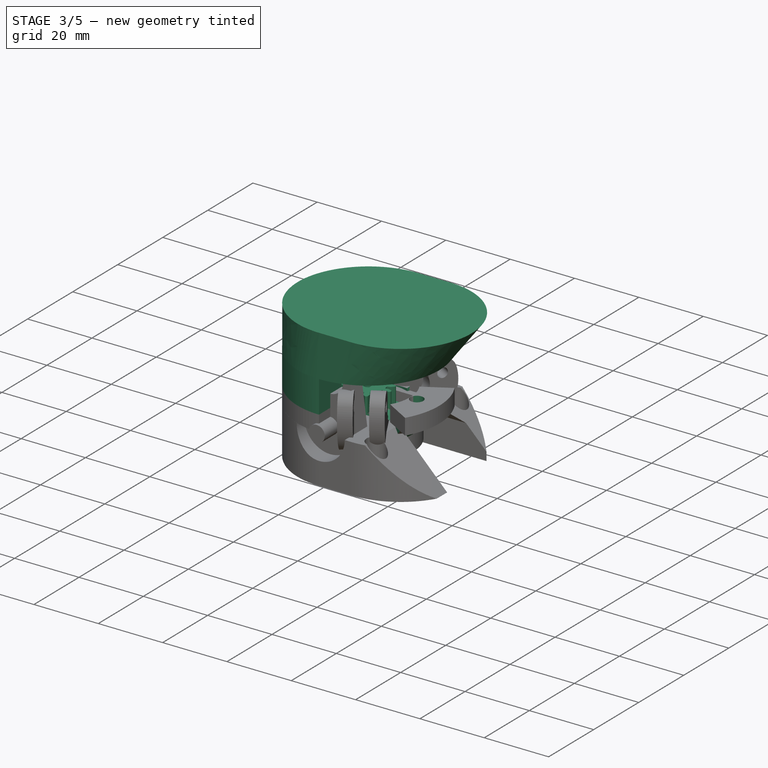
[diagram: stage 3 of 5 — iso view after this stage's code; geometry added in this stage tinted green]
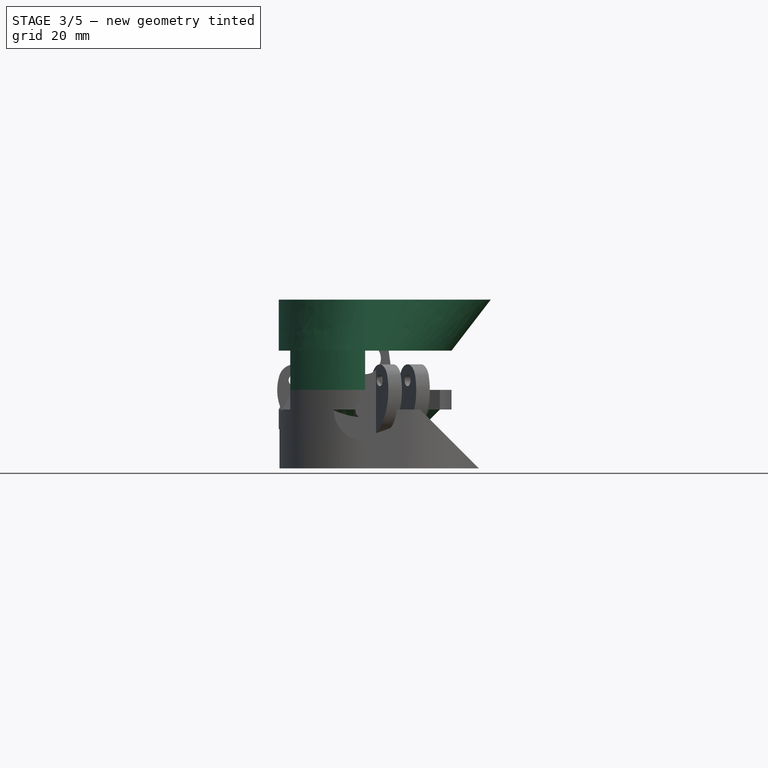
[diagram: stage 3 of 5 — front view after this stage's code; geometry added in this stage tinted green]
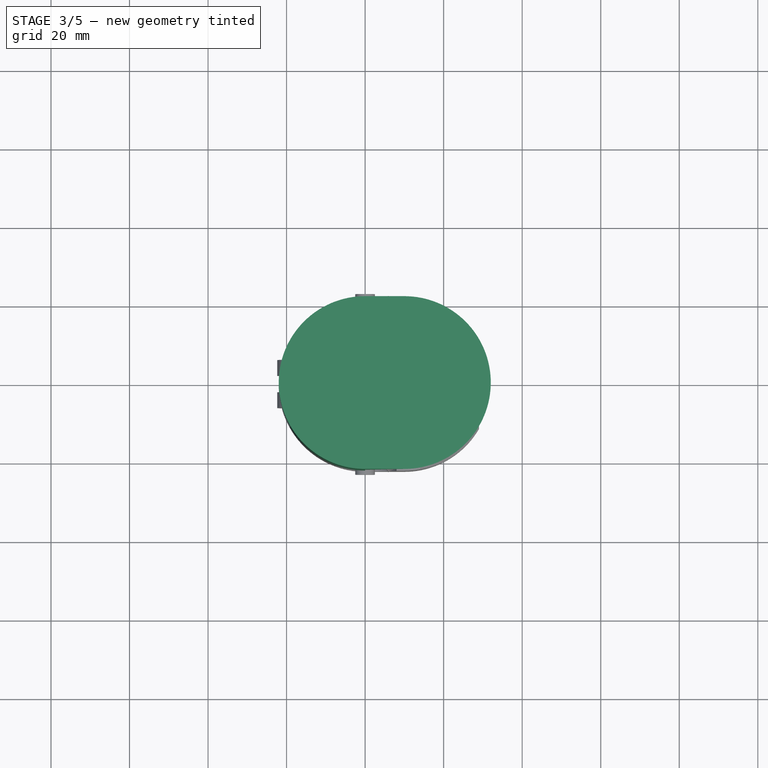
[diagram: stage 3 of 5 — top view after this stage's code; geometry added in this stage tinted green]
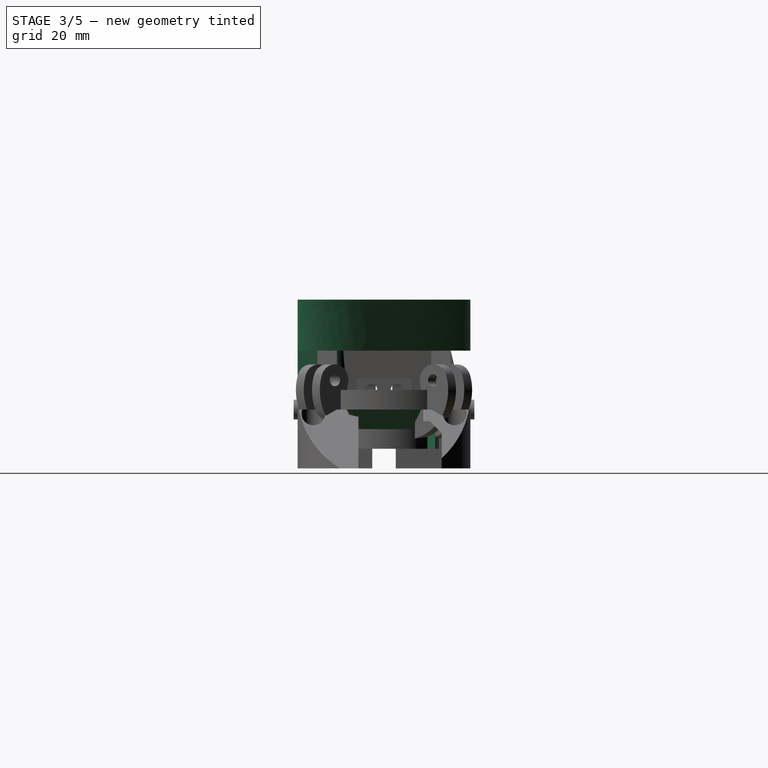
[diagram: stage 3 of 5 — right view after this stage's code; geometry added in this stage tinted green]
FEATURE [Sketcher::SketchObject] Sketch031
  ArcFitTolerance = 1e-06
  AttachmentSupport = -> [YZ_Plane004]
  FullyConstrained = true
  MakeInternals = false
  MapMode = 5
  Placement = pos=(0,0,0) rot=(0.57735,0.57735,0.57735;2.0944rad)
  sketch-geometry (4):
    g0: LineSegment StartX=3 StartY=22 StartZ=0 EndX=-3 EndY=22 EndZ=0
    g1: LineSegment StartX=-3 StartY=22 StartZ=0 EndX=-3 EndY=15 EndZ=0
    g2: LineSegment StartX=-3 StartY=15 StartZ=0 EndX=3 EndY=15 EndZ=0
    g3: LineSegment StartX=3 StartY=15 StartZ=0 EndX=3 EndY=22 EndZ=0
  constraints (12):
    c: Coincident(g0,g1)
    c: Coincident(g1,g2)
    c: Coincident(g2,g3)
    c: Coincident(g3,g0)
    c: Horizontal(g0)
    c: Horizontal(g2)
    c: Vertical(g1)
    c: Vertical(g3)
    c: Distance(g-1,g2) = 15
    c: Distance(g-2,g1) = 3
    c: Distance(g-2,g3) = 3
    c: DistanceY(g3,g3) = 7
FEATURE [PartDesign::Pocket] Pocket013
  BaseFeature = -> PolarPattern002
  Direction = (-1,0,0)
  Length = 5
  Length2 = 5
  Profile = -> Sketch031
  ReferenceAxis = -> Sketch031 [N_Axis]
  Refine = true
  Suppressed = false
  Type = 1
FEATURE [PartDesign::PolarPattern] PolarPattern005
  Angle = 360
  Axis = -> Z_Axis004
  BaseFeature = -> Pocket013
  Mode = 0
  Occurrences = 3
  Offset = 120
  Originals = -> [Pocket013]
  Refine = true
  Suppressed = false
  TransformMode = 0
FEATURE [PartDesign::Chamfer] Chamfer
  Angle = 45
  Base = -> PolarPattern005 [Edge60,Edge61,Edge67,Edge68,Edge53,Edge48]
  BaseFeature = -> PolarPattern005
  ChamferType = 0
  FlipDirection = false
  Refine = true
  Size = 5
  Size2 = 7
  SupportTransform = false
  Suppressed = false
  UseAllEdges = false
FEATURE [Sketcher::SketchObject] Sketch048
  ArcFitTolerance = 1e-06
  AttachmentSupport = -> [Chamfer]
  FullyConstrained = true
  MakeInternals = false
  MapMode = 5
  Placement = pos=(0,0,5) rot=(0,0,1;0rad)
  sketch-geometry (1):
    g0: Circle CenterX=15 CenterY=0 CenterZ=0 NormalX=0 NormalY=0 NormalZ=1 AngleXU=0 Radius=2
  constraints (3):
    c: PointOnObject(g0,g-1)
    c: Diameter(g0) = 4
    c: DistanceX(g-1,g0) = 15
FEATURE [PartDesign::Pocket] Pocket020
  BaseFeature = -> Chamfer
  Direction = (0,0,-1)
  Length = 5
  Length2 = 5
  Profile = -> Sketch048
  ReferenceAxis = -> Sketch048 [N_Axis]
  Refine = true
  Suppressed = false
  Type = 0
FEATURE [PartDesign::PolarPattern] PolarPattern009
  Angle = 360
  Axis = -> Sketch048 [N_Axis]
  BaseFeature = -> Pocket020
  Mode = 0
  Occurrences = 3
  Offset = 120
  Originals = -> [Pocket020]
  Refine = true
  Suppressed = false
  TransformMode = 0
FEATURE [PartDesign::Mirrored] Mirrored001
  BaseFeature = -> Pocket005
  MirrorPlane = -> XZ_Plane002
  Placement = pos=(0,0,0) rot=(1,0,0;1.5708rad)
  Refine = true
  Suppressed = false
  TransformMode = 1
FEATURE [PartDesign::Fillet] Fillet
  Base = -> Mirrored001 [Edge70,Edge68]
  BaseFeature = -> Mirrored001
  Placement = pos=(0,0,0) rot=(1,0,0;1.5708rad)
  Radius = 3
  Refine = true
  SupportTransform = false
  Suppressed = false
  UseAllEdges = false
FEATURE [PartDesign::Fillet] Fillet001
  Base = -> Fillet [Edge26,Edge49,Edge37]
  BaseFeature = -> Fillet
  Placement = pos=(0,0,0) rot=(1,0,0;1.5708rad)
  Radius = 1.5
  Refine = true
  SupportTransform = false
  Suppressed = false
  UseAllEdges = false
FEATURE [PartDesign::Body] Body002  label="GripperFinger"
  AllowCompound = false
  Group = -> [Sketch014,Pad003,Pocket010,Sketch015,Sketch016,Sketch017,AdditiveLoft002,Sketch018,Pocket005,Mirrored001,Fillet,Fillet001]
  Origin = -> Origin002
  Placement = pos=(-2,0,-10.5) rot=(0,0,1;0rad)
  Tip = -> Fillet001
FEATURE [Sketcher::SketchObject] Sketch059
  ArcFitTolerance = 1e-06
  AttachmentSupport = -> [PolarPattern009]
  FullyConstrained = false
  MakeInternals = false
  MapMode = 5
  Placement = pos=(0,-2.1,5e-16) rot=(0,0.707107,0.707107;3.14159rad)
  sketch-geometry (4):
    g0: ArcOfCircle CenterX=18 CenterY=7.5 CenterZ=0 NormalX=0 NormalY=0 NormalZ=1 AngleXU=0 Radius=13 StartAngle=5.14611 EndAngle=10.2309
    g1: LineSegment StartX=9 StartY=-1.88083 StartZ=0 EndX=9 EndY=-14.3112 EndZ=0
    g2: LineSegment StartX=9 StartY=-14.3112 StartZ=0 EndX=23.4632 EndY=-14.3112 EndZ=0
    g3: LineSegment StartX=23.4632 StartY=-14.3112 StartZ=0 EndX=23.4632 EndY=-4.29632 EndZ=0
  constraints (11):
    c: DistanceY(g-1,g0) = 7.5
    c: DistanceX(g-1,g0) = 18
    c: Diameter(g0) = 26
    c: Coincident(g1,g2)
    c: Coincident(g2,g3)
    c: Vertical(g1)
    c: Vertical(g3)
    c: Horizontal(g2)
    c: Distance(g-2,g1) = 9
    c: Coincident(g0,g1)
    c: Coincident(g0,g3)
FEATURE [PartDesign::Pocket] Pocket027
  BaseFeature = -> PolarPattern009
  Direction = (0,-1,2e-16)
  Length = 4
  Length2 = 5
  Profile = -> Sketch059
  ReferenceAxis = -> Sketch059 [N_Axis]
  Refine = true
  Reversed = true
  Suppressed = false
  Type = 0
FEATURE [PartDesign::PolarPattern] PolarPattern010
  Angle = 360
  Axis = -> Z_Axis004
  BaseFeature = -> Pocket027
  Mode = 0
  Occurrences = 3
  Offset = 120
  Originals = -> [Pocket027]
  Refine = true
  Suppressed = false
  TransformMode = 0
FEATURE [Sketcher::SketchObject] Sketch060
  ArcFitTolerance = 1e-06
  AttachmentOffset = pos=(0,0,1) rot=(0,0,1;0rad)
  AttachmentSupport = -> [PolarPattern010]
  FullyConstrained = true
  MakeInternals = false
  MapMode = 5
  Placement = pos=(0,0,1) rot=(0,0,1;0rad)
  sketch-geometry (1):
    g0: Circle CenterX=0 CenterY=0 CenterZ=0 NormalX=0 NormalY=0 NormalZ=1 AngleXU=0 Radius=12
  constraints (2):
    c: Coincident(g0,g-1)
    c: Diameter(g0) = 24
FEATURE [PartDesign::Pocket] Pocket028
  BaseFeature = -> PolarPattern010
  Direction = (0,0,-1)
  Length = 5
  Length2 = 5
  Profile = -> Sketch060
  ReferenceAxis = -> Sketch060 [N_Axis]
  Refine = true
  Suppressed = false
  Type = 0
FEATURE [PartDesign::Body] Body010  label="WormGear003"
  AllowCompound = false
  Group = -> [WormGear001,Sketch080,Pocket044,Sketch082,Pocket046,Sketch083,Pocket047,Sketch084,Pocket048]
  Origin = -> Origin010
  Placement = pos=(0,0,-29) rot=(0,0,1;0rad)
  Tip = -> Pocket048
FEATURE [Part::Feature] Part__Feature  label="Limit Switch v3"
  Placement = pos=(-5.3,1.91e-14,18.3) rot=(0.57735,-0.57735,0.57735;4.18879rad)
  shape: bbox 9.8 x 16.83 x 15.71 mm, 47 faces (baked)
FEATURE [App::Link] Link013  label="Finger"
  LinkPlacement = pos=(-18,2,-20.6) rot=(0,0,-1;1.5708rad)
  LinkedObject = -> <external GripperFinger.FCStd>#LinkGroup
  Placement = pos=(-18,2,-20.6) rot=(0,0,-1;1.5708rad)
FEATURE [App::Link] Link  label="Finger001"
  LinkPlacement = pos=(7.40455,-16.625,-20.6) rot=(0,0,1;0.523599rad)
  LinkedObject = -> <external GripperFinger.FCStd>#LinkGroup
  Placement = pos=(7.40455,-16.625,-20.6) rot=(0,0,1;0.523599rad)
FEATURE [App::Link] Link014  label="Finger002"
  LinkPlacement = pos=(10.8673,14.6027,-20.6) rot=(0,0,1;2.61799rad)
  LinkedObject = -> <external GripperFinger.FCStd>#LinkGroup
  Placement = pos=(10.8673,14.6027,-20.6) rot=(0,0,1;2.61799rad)
FEATURE [App::Link] Link015  label="GripperMainShaft"
  LinkPlacement = pos=(4.50016e-07,3.6478e-06,-23) rot=(0.774597,-0.447214,-0.447214;1.82348rad)
  LinkedObject = -> <external GripperMainShaft.FCStd>#Body
  Placement = pos=(4.50016e-07,3.6478e-06,-23) rot=(0.774597,-0.447214,-0.447214;1.82348rad)
FEATURE [App::Link] Link016  label="GM12-15BY001"
  LinkPlacement = pos=(13.2,7,1.2) rot=(-0.57735,0.57735,0.57735;4.18879rad)
  LinkedObject = -> <external GM12-15BY.FCStd>#LinkGroup
  Placement = pos=(13.2,7,1.2) rot=(-0.57735,0.57735,0.57735;4.18879rad)
FEATURE [PartDesign::FeaturePython] InvoluteGear  # WARN: FeaturePython — macro-defined, semantics opaque (R4)
  AttacherType = Attacher::AttachEngine3D
  Suppressed = false
  addendum_diameter = 14
  angular_backlash = 0
  axle_hole = false
  axle_holesize = 10
  backlash = 0
  clearance = 0.25
  double_helix = false
  head = 0
  head_fillet = 0
  height = 5
  helix_angle = 0
  module = 1
  num_teeth = 12
  numpoints = 20
  offset_hole = false
  offset_holeoffset = 10
  offset_holesize = 10
  pitch_diameter = 12
  pressure_angle = 20
  properties_from_tool = false
  reversed_backlash = false
  root_diameter = 9.5
  root_fillet = 0
  shift = 0
  simple = false
  transverse_pitch = 3.14159
  traverse_module = 1
  undercut = false
  version = 1.3.0
  expr: angular_backlash = backlash / pitch_diameter * 360 ° / pi
FEATURE [Sketcher::SketchObject] Sketch092
  ArcFitTolerance = 1e-06
  AttachmentOffset = pos=(0,0,8) rot=(0,0,1;0rad)
  FullyConstrained = true
  MakeInternals = false
  MapMode = 5
  Placement = pos=(0,0,28) rot=(0,0,1;0rad)
  sketch-geometry (4):
    g0: ArcOfCircle CenterX=0 CenterY=0 CenterZ=0 NormalX=0 NormalY=0 NormalZ=1 AngleXU=0 Radius=22 StartAngle=1.5708 EndAngle=4.71239
    g1: ArcOfCircle CenterX=10 CenterY=9e-16 CenterZ=0 NormalX=0 NormalY=0 NormalZ=1 AngleXU=0 Radius=22 StartAngle=4.71239 EndAngle=7.85398
    g2: LineSegment StartX=-3.5e-15 StartY=22 StartZ=0 EndX=10 EndY=22 EndZ=0
    g3: LineSegment StartX=-4e-15 StartY=-22 StartZ=0 EndX=10 EndY=-22 EndZ=0
  constraints (9):
    c: Tangent(g0,g2) = 1.5708
    c: Tangent(g0,g3) = -1.5708
    c: Tangent(g1,g2) = 1.5708
    c: Tangent(g1,g3) = -1.5708
    c: Equal(g0,g1)
    c: Horizontal(g3)
    c: Coincident(g0,g-1)
    c: DistanceX(g-1,g1) = 10
    c: Radius(g0) = 22
FEATURE [Sketcher::SketchObject] Sketch093
  ArcFitTolerance = 1e-06
  FullyConstrained = true
  MakeInternals = false
  MapMode = 5
  Placement = pos=(0,0,15) rot=(0,0,1;0rad)
  sketch-geometry (1):
    g0: Circle CenterX=0 CenterY=0 CenterZ=0 NormalX=0 NormalY=0 NormalZ=1 AngleXU=0 Radius=22
  constraints (2):
    c: Coincident(g0,g-1)
    c: Diameter(g0) = 44
FEATURE [PartDesign::AdditiveLoft] AdditiveLoft007
  Closed = false
  Placement = pos=(0,0,28) rot=(0,0,1;0rad)
  Profile = -> Sketch092
  Refine = true
  Ruled = false
  Sections = -> [Sketch093]
  Suppressed = false
FEATURE [Sketcher::SketchObject] Sketch095
  ArcFitTolerance = 1e-06
  FullyConstrained = false
  MakeInternals = false
  MapMode = 5
  Placement = pos=(0,0,15) rot=(1,0,0;3.14159rad)
  sketch-geometry (4):
    g0: ArcOfCircle CenterX=0 CenterY=0 CenterZ=0 NormalX=0 NormalY=0 NormalZ=1 AngleXU=0 Radius=22 StartAngle=1.57083 EndAngle=2.618
    g1: LineSegment StartX=-19.0526 StartY=10.9999 StartZ=0 EndX=-10.3923 EndY=5.99993 EndZ=0
    g2: ArcOfCircle CenterX=0 CenterY=0 CenterZ=0 NormalX=0 NormalY=0 NormalZ=1 AngleXU=0 Radius=12 StartAngle=1.57086 EndAngle=2.618
    g3: LineSegment StartX=-0.000809479 StartY=22 StartZ=0 EndX=-0.000809479 EndY=12 EndZ=0
  constraints (10):
    c: Coincident(g0,g-1)
    c: Coincident(g1,g0)
    c: Coincident(g1,g2)
    c: Coincident(g3,g0)
    c: Coincident(g3,g2)
    c: Angle(g1,g-1) = 0.523599
    c: Vertical(g3)
    c: Coincident(g0,g2)
    c: Radius(g0) = 22
    c: Radius(g2) = 12
FEATURE [PartDesign::Pad] Pad013
  BaseFeature = -> AdditiveLoft007
  Direction = (0,0,-1)
  Length = 10
  Length2 = 10
  Placement = pos=(0,0,28) rot=(0,0,1;0rad)
  Profile = -> Sketch095
  ReferenceAxis = -> Sketch095 [N_Axis]
  Refine = true
  Suppressed = false
  Type = 0
FEATURE [Sketcher::SketchObject] Sketch115
  ArcFitTolerance = 1e-06
  AttachmentSupport = -> [InvoluteGear]
  FullyConstrained = true
  MakeInternals = false
  MapMode = 5
  Placement = pos=(0,0,0) rot=(1,0,0;3.14159rad)
  sketch-geometry (2):
    g0: ArcOfCircle CenterX=0 CenterY=0 CenterZ=0 NormalX=0 NormalY=0 NormalZ=1 AngleXU=0 Radius=1.5 StartAngle=0.841069 EndAngle=5.44212
    g1: LineSegment StartX=1 StartY=1.11803 StartZ=0 EndX=1 EndY=-1.11803 EndZ=0
  constraints (6):
    c: Diameter(g0) = 3
    c: Coincident(g0,g-1)
    c: Vertical(g1)
    c: Distance(g-2,g1) = 1
    c: Coincident(g1,g0)
    c: Coincident(g1,g0)
FEATURE [PartDesign::Pocket] Pocket075
  BaseFeature = -> InvoluteGear
  Direction = (0,0,1)
  Length = 5
  Length2 = 5
  Profile = -> Sketch115
  ReferenceAxis = -> Sketch115 [N_Axis]
  Refine = true
  Suppressed = false
  Type = 0
FEATURE [PartDesign::Body] Body011  label="GearMotor"
  AllowCompound = false
  Group = -> [InvoluteGear,Sketch115,Pocket075]
  Origin = -> Origin011
  Placement = pos=(-1.4,7,1.2) rot=(0,1,0;4.71239rad)
  Tip = -> Pocket075
FEATURE [App::Link] Link017  label="ChessPieces"
  LinkPlacement = pos=(0,1.21117e-05,-101.6) rot=(0,0,1;0rad)
  LinkedObject = -> <external ChessPieces.FCStd>#LinkGroup
  Placement = pos=(0,1.21117e-05,-101.6) rot=(0,0,1;0rad)
FEATURE [Sketcher::SketchObject] Sketch116
  ArcFitTolerance = 1e-06
  AttachmentSupport = -> [Pocket028]
  FullyConstrained = true
  MakeInternals = false
  MapMode = 5
  Placement = pos=(0,0,-4) rot=(0,0,1;0rad)
  sketch-geometry (1):
    g0: Circle CenterX=0 CenterY=0 CenterZ=0 NormalX=0 NormalY=0 NormalZ=1 AngleXU=0 Radius=5
  constraints (2):
    c: Diameter(g0) = 10
    c: Coincident(g0,g-1)
FEATURE [PartDesign::Pocket] Pocket076
  BaseFeature = -> Pocket028
  Direction = (0,0,-1)
  Length = 3
  Length2 = 5
  Profile = -> Sketch116
  ReferenceAxis = -> Sketch116 [N_Axis]
  Refine = true
  Suppressed = false
  Type = 0
FEATURE [PartDesign::Body] Body001  label="Motor"
  AllowCompound = false
  Group = -> [Sketch004,Pad004,Fillet,Sketch005,Pad005,Sketch006,Pad006,Fillet001]
  Origin = -> Origin001
  Tip = -> Fillet001
FEATURE [App::LinkGroup] LinkGroup  label="GM12-15BY"
  ElementList = -> [Body,Body001]
  LinkMode = 0
---- part GripperFinger.FCStd = doc fcstd_243b485a0a03 ----
FCSTD DOCUMENT  (FreeCAD 1.0R39319 (Git))
Label: GripperFinger
License: All rights reserved
LicenseURL: https://en.wikipedia.org/wiki/All_rights_reserved
objects: Sketcher::SketchObject×21, PartDesign::Pocket×12, PartDesign::Body×3, PartDesign::AdditiveLoft×3, PartDesign::FeaturePython×2, PartDesign::Pad×2, PartDesign::Plane×2, PartDesign::Mirrored×2, PartDesign::Chamfer×1, App::LinkGroup×1
note: 109 computed .brp shape members not serialized (recipe doc carries the construction recipe); baked Part::Feature solids carry a one-line shape summary decoded from their .brp

FEATURE [PartDesign::FeaturePython] InvoluteGear  # WARN: FeaturePython — macro-defined, semantics opaque (R4)
  AttacherType = Attacher::AttachEngine3D
  Suppressed = false
  addendum_diameter = 23
  angular_backlash = 0
  axle_hole = false
  axle_holesize = 10
  backlash = 0
  clearance = 0.25
  double_helix = false
  head = 0
  head_fillet = 0
  height = 4
  helix_angle = 0
  module = 1
  num_teeth = 21
  numpoints = 20
  offset_hole = false
  offset_holeoffset = 10
  offset_holesize = 10
  pitch_diameter = 21
  pressure_angle = 20
  properties_from_tool = false
  reversed_backlash = false
  root_diameter = 18.5
  root_fillet = 0
  shift = 0
  simple = false
  transverse_pitch = 3.14159
  traverse_module = 1
  undercut = false
  version = 1.3.0
  expr: angular_backlash = backlash / pitch_diameter * 360 ° / pi
FEATURE [PartDesign::Chamfer] Chamfer
  Angle = 45
  Base = -> PolarPattern [Edge41,Edge133,Edge19]
  BaseFeature = -> PolarPattern
  ChamferType = 0
  FlipDirection = false
  Placement = pos=(8,0,-3) rot=(0,0,1;0rad)
  Refine = true
  Size = 3
  Size2 = 1
  SupportTransform = false
  Suppressed = false
  UseAllEdges = false
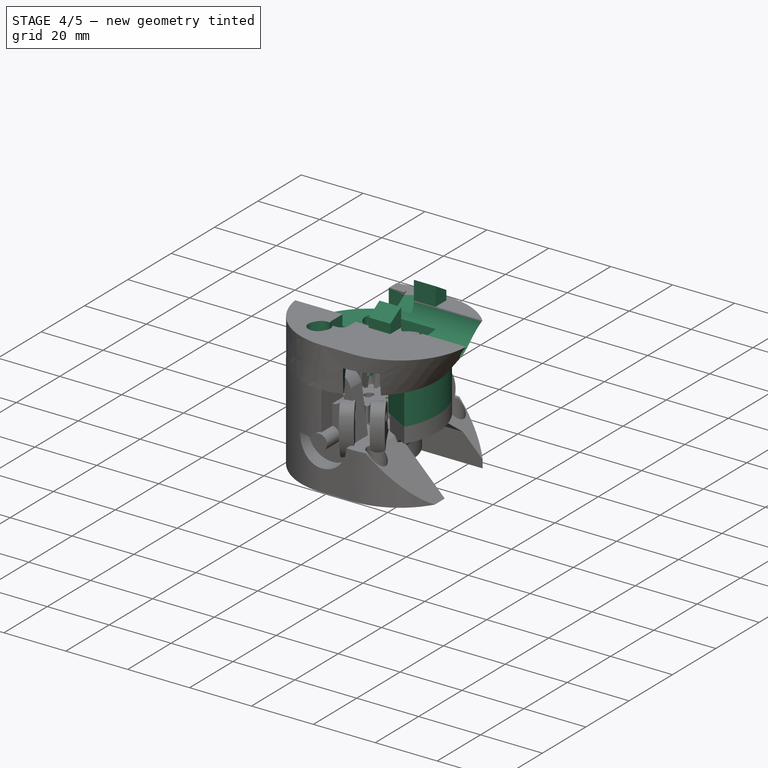
[diagram: stage 4 of 5 — iso view after this stage's code; geometry added in this stage tinted green]
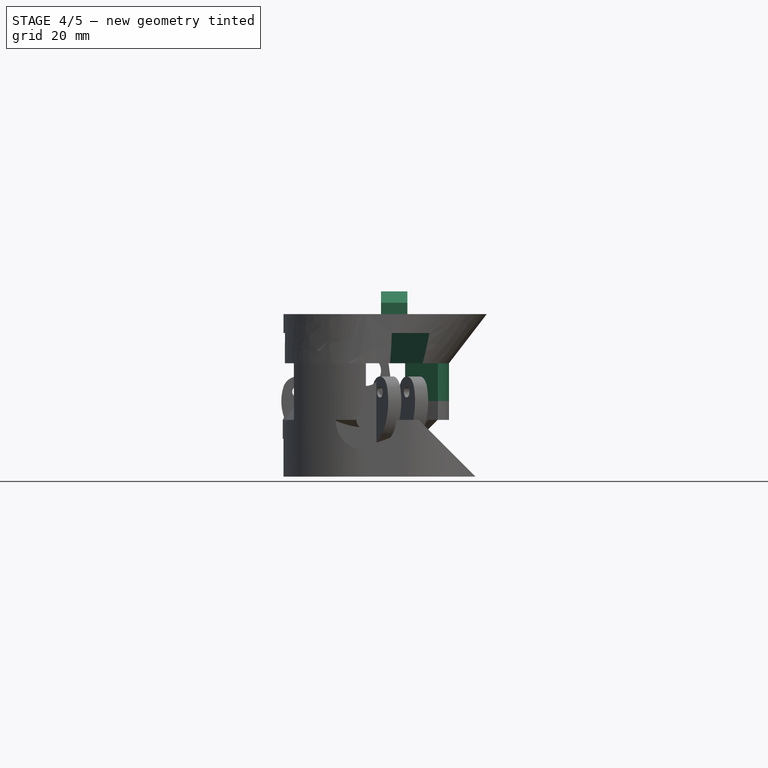
[diagram: stage 4 of 5 — front view after this stage's code; geometry added in this stage tinted green]
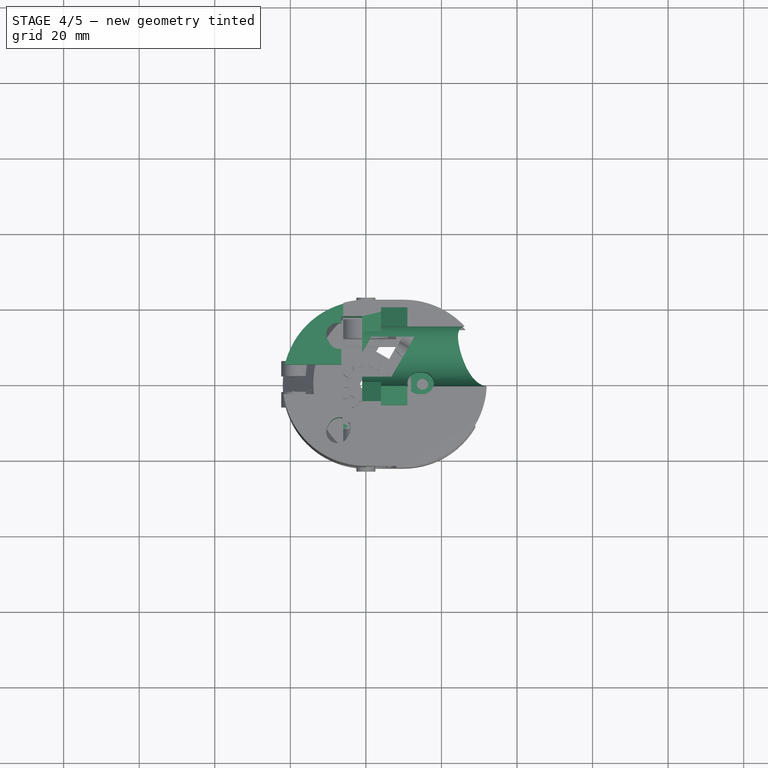
[diagram: stage 4 of 5 — top view after this stage's code; geometry added in this stage tinted green]
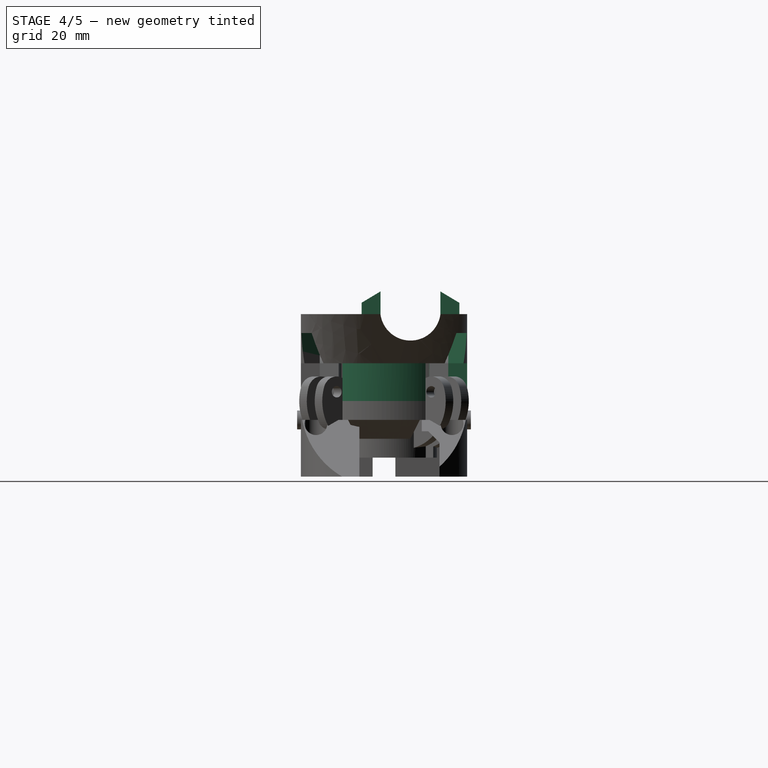
[diagram: stage 4 of 5 — right view after this stage's code; geometry added in this stage tinted green]
FEATURE [PartDesign::PolarPattern] PolarPattern016
  Angle = 360
  Axis = -> Sketch095 [N_Axis]
  BaseFeature = -> Pad013
  Mode = 0
  Occurrences = 3
  Offset = 120
  Originals = -> [Pad013]
  Placement = pos=(0,0,28) rot=(0,0,1;0rad)
  Refine = true
  Suppressed = false
  TransformMode = 0
FEATURE [Sketcher::SketchObject] Sketch096
  ArcFitTolerance = 1e-06
  AttachmentSupport = -> [PolarPattern016]
  FullyConstrained = true
  MakeInternals = false
  MapMode = 5
  Placement = pos=(0,0,28) rot=(0,0,1;0rad)
  sketch-geometry (4):
    g0: ArcOfCircle CenterX=14 CenterY=0 CenterZ=0 NormalX=0 NormalY=0 NormalZ=1 AngleXU=0 Radius=3 StartAngle=1.5708 EndAngle=4.71239
    g1: ArcOfCircle CenterX=15 CenterY=1e-16 CenterZ=0 NormalX=0 NormalY=0 NormalZ=1 AngleXU=0 Radius=3 StartAngle=4.71239 EndAngle=7.85398
    g2: LineSegment StartX=14 StartY=3 StartZ=0 EndX=15 EndY=3 EndZ=0
    g3: LineSegment StartX=14 StartY=-3 StartZ=0 EndX=15 EndY=-3 EndZ=0
  constraints (10):
    c: Tangent(g0,g2) = 1.5708
    c: Tangent(g0,g3) = -1.5708
    c: Tangent(g1,g2) = 1.5708
    c: Tangent(g1,g3) = -1.5708
    c: Equal(g0,g1)
    c: Horizontal(g3)
    c: PointOnObject(g0,g-1)
    c: DistanceX(g-1,g1) = 15
    c: DistanceX(g0,g1) = 1
    c: Radius(g1) = 3
FEATURE [PartDesign::Pocket] Pocket057
  BaseFeature = -> PolarPattern016
  Direction = (0,0,-1)
  Length = 20
  Length2 = 5
  Placement = pos=(0,0,28) rot=(0,0,1;0rad)
  Profile = -> Sketch096
  ReferenceAxis = -> Sketch096 [N_Axis]
  Refine = true
  Suppressed = false
  Type = 0
FEATURE [PartDesign::PolarPattern] PolarPattern017
  Angle = 360
  Axis = -> Sketch096 [N_Axis]
  BaseFeature = -> Pocket057
  Mode = 0
  Occurrences = 3
  Offset = 120
  Originals = -> [Pocket057]
  Placement = pos=(0,0,28) rot=(0,0,1;0rad)
  Refine = true
  Suppressed = false
  TransformMode = 0
FEATURE [Sketcher::SketchObject] Sketch097
  ArcFitTolerance = 1e-06
  AttachmentSupport = -> [PolarPattern017]
  FullyConstrained = true
  MakeInternals = false
  MapMode = 5
  Placement = pos=(0,0,8) rot=(0,0,1;0rad)
  sketch-geometry (1):
    g0: Circle CenterX=15 CenterY=0 CenterZ=0 NormalX=0 NormalY=0 NormalZ=1 AngleXU=0 Radius=1.5
  constraints (3):
    c: PointOnObject(g0,g-1)
    c: Diameter(g0) = 3
    c: DistanceX(g-1,g0) = 15
FEATURE [PartDesign::Pocket] Pocket058
  BaseFeature = -> PolarPattern017
  Direction = (0,0,-1)
  Length = 5
  Length2 = 5
  Placement = pos=(0,0,28) rot=(0,0,1;0rad)
  Profile = -> Sketch097
  ReferenceAxis = -> Sketch097 [N_Axis]
  Refine = true
  Suppressed = false
  Type = 0
FEATURE [PartDesign::PolarPattern] PolarPattern018
  Angle = 360
  Axis = -> Sketch097 [N_Axis]
  BaseFeature = -> Pocket058
  Mode = 0
  Occurrences = 3
  Offset = 120
  Originals = -> [Pocket058]
  Placement = pos=(0,0,28) rot=(0,0,1;0rad)
  Refine = true
  Suppressed = false
  TransformMode = 0
FEATURE [Sketcher::SketchObject] Sketch098
  ArcFitTolerance = 1e-06
  AttachmentSupport = -> [PolarPattern018]
  FullyConstrained = false
  MakeInternals = false
  MapMode = 5
  Placement = pos=(0,0,28) rot=(0,0,1;0rad)
  sketch-geometry (6):
    g0: LineSegment StartX=-6.5 StartY=17.633 StartZ=0 EndX=-6.5 EndY=-8.00596 EndZ=0
    g1: LineSegment StartX=-4.13632 StartY=-10.3696 StartZ=0 EndX=-3.36368 EndY=-10.3696 EndZ=0
    g2: LineSegment StartX=-1 StartY=-8.00596 StartZ=0 EndX=-1 EndY=17.633 EndZ=0
    g3: LineSegment StartX=-1 StartY=17.633 StartZ=0 EndX=-6.5 EndY=17.633 EndZ=0
    g4: ArcOfCircle CenterX=-4.13632 CenterY=-8.00596 CenterZ=0 NormalX=0 NormalY=0 NormalZ=1 AngleXU=0 Radius=2.36368 StartAngle=3.14159 EndAngle=4.71239
    g5: ArcOfCircle CenterX=-3.36368 CenterY=-8.00596 CenterZ=0 NormalX=0 NormalY=0 NormalZ=1 AngleXU=0 Radius=2.36368 StartAngle=4.71239 EndAngle=6.28319
  constraints (17):
    c: Coincident(g2,g3)
    c: Coincident(g3,g0)
    c: Vertical(g0)
    c: Vertical(g2)
    c: Horizontal(g1)
    c: Horizontal(g3)
    c: DistanceX(g3,g3) = 5.5
    c: Distance(g-2,g2) = 1
    c: Horizontal(g4,g4)
    c: Horizontal(g4,g5)
    c: Horizontal(g5,g5)
    c: Vertical(g4,g4)
    c: Vertical(g5,g5)
    c: Coincident(g0,g4)
    c: Coincident(g1,g4)
    c: Coincident(g1,g5)
    c: Coincident(g2,g5)
FEATURE [PartDesign::Pocket] Pocket059
  BaseFeature = -> PolarPattern018
  Direction = (0,0,-1)
  Length = 40
  Length2 = 5
  Placement = pos=(0,0,28) rot=(0,0,1;0rad)
  Profile = -> Sketch098
  ReferenceAxis = -> Sketch098 [N_Axis]
  Refine = true
  Suppressed = false
  Type = 0
FEATURE [Sketcher::SketchObject] Sketch099
  ArcFitTolerance = 1e-06
  AttachmentSupport = -> [Pocket059]
  FullyConstrained = false
  MakeInternals = false
  MapMode = 5
  Placement = pos=(0,0,15) rot=(1,0,0;3.14159rad)
  sketch-geometry (4):
    g0: LineSegment StartX=-29.0592 StartY=5 StartZ=0 EndX=-29.0592 EndY=-5 EndZ=0
    g1: LineSegment StartX=-29.0592 StartY=-5 StartZ=0 EndX=0 EndY=-5 EndZ=0
    g2: LineSegment StartX=0 StartY=-5 StartZ=0 EndX=0 EndY=5 EndZ=0
    g3: LineSegment StartX=0 StartY=5 StartZ=0 EndX=-29.0592 EndY=5 EndZ=0
  constraints (11):
    c: Coincident(g0,g1)
    c: Coincident(g1,g2)
    c: Coincident(g2,g3)
    c: Coincident(g3,g0)
    c: Vertical(g0)
    c: Vertical(g2)
    c: Horizontal(g1)
    c: Horizontal(g3)
    c: PointOnObject(g1,g-2)
    c: Distance(g-1,g1) = 5
    c: Distance(g-1,g3) = 5
FEATURE [PartDesign::Pocket] Pocket060
  BaseFeature = -> Pocket059
  Direction = (0,0,1)
  Length = 8
  Length2 = 5
  Placement = pos=(0,0,28) rot=(0,0,1;0rad)
  Profile = -> Sketch099
  ReferenceAxis = -> Sketch099 [N_Axis]
  Refine = true
  Suppressed = false
  Type = 0
FEATURE [PartDesign::PolarPattern] PolarPattern
  Angle = 360
  Axis = -> Sketch099 [N_Axis]
  BaseFeature = -> Pocket060
  Mode = 0
  Occurrences = 3
  Offset = 120
  Originals = -> [Pocket060]
  Placement = pos=(0,0,28) rot=(0,0,1;0rad)
  Refine = true
  Suppressed = false
  TransformMode = 0
FEATURE [Sketcher::SketchObject] Sketch100
  ArcFitTolerance = 1e-06
  AttachmentSupport = -> [PolarPattern]
  FullyConstrained = false
  MakeInternals = false
  MapMode = 5
  Placement = pos=(0,0,28) rot=(0,0,1;0rad)
  sketch-geometry (4):
    g0: LineSegment StartX=-6 StartY=27.3621 StartZ=0 EndX=-27.2717 EndY=27.3621 EndZ=0
    g1: LineSegment StartX=-27.2717 StartY=27.3621 StartZ=0 EndX=-27.2717 EndY=-3 EndZ=0
    g2: LineSegment StartX=-27.2717 StartY=-3 StartZ=0 EndX=-6 EndY=-3 EndZ=0
    g3: LineSegment StartX=-6 StartY=-3 StartZ=0 EndX=-6 EndY=27.3621 EndZ=0
  constraints (10):
    c: Coincident(g0,g1)
    c: Coincident(g1,g2)
    c: Coincident(g2,g3)
    c: Coincident(g3,g0)
    c: Horizontal(g0)
    c: Horizontal(g2)
    c: Vertical(g1)
    c: Vertical(g3)
    c: Distance(g-2,g3) = 6
    c: Distance(g-1,g2) = 3
FEATURE [PartDesign::Pocket] Pocket061
  BaseFeature = -> PolarPattern
  Direction = (0,0,-1)
  Length = 8
  Length2 = 5
  Placement = pos=(0,0,28) rot=(0,0,1;0rad)
  Profile = -> Sketch100
  ReferenceAxis = -> Sketch100 [N_Axis]
  Refine = true
  Suppressed = false
  Type = 0
FEATURE [Sketcher::SketchObject] Sketch101
  ArcFitTolerance = 1e-06
  AttachmentSupport = -> [Pocket061]
  FullyConstrained = false
  MakeInternals = false
  MapMode = 5
  Placement = pos=(-1,0,28) rot=(0.57735,-0.57735,-0.57735;2.0944rad)
  sketch-geometry (4):
    g0: ArcOfCircle CenterX=-7 CenterY=1 CenterZ=0 NormalX=0 NormalY=0 NormalZ=1 AngleXU=0 Radius=8 StartAngle=3.71843 EndAngle=5.70367
    g1: LineSegment StartX=-18.8256 StartY=0 StartZ=0 EndX=-13.7055 EndY=-3.36301 EndZ=0
    g2: LineSegment StartX=4.85375 StartY=0 StartZ=0 EndX=-0.306155 EndY=-3.38092 EndZ=0
    g3: LineSegment StartX=-18.8256 StartY=0 StartZ=0 EndX=4.85375 EndY=0 EndZ=0
  constraints (9):
    c: Distance(g0,g-1) = 1
    c: DistanceX(g0,g-1) = 7
    c: Diameter(g0) = 16
    c: Coincident(g3,g1)
    c: Coincident(g3,g2)
    c: Coincident(g0,g2)
    c: Coincident(g1,g0)
    c: Horizontal(g3)
    c: Horizontal(g2,g-1)
FEATURE [PartDesign::Pocket] Pocket062
  BaseFeature = -> Pocket061
  Direction = (1,0,0)
  Length = 5
  Length2 = 5
  Placement = pos=(0,0,28) rot=(0,0,1;0rad)
  Profile = -> Sketch101
  ReferenceAxis = -> Sketch101 [N_Axis]
  Refine = true
  Suppressed = false
  Type = 0
FEATURE [Sketcher::SketchObject] Sketch102
  ArcFitTolerance = 1e-06
  AttachmentSupport = -> [Pocket062]
  FullyConstrained = true
  MakeInternals = false
  MapMode = 5
  Placement = pos=(-1,0,28) rot=(0.57735,-0.57735,-0.57735;2.0944rad)
  sketch-geometry (1):
    g0: Circle CenterX=-7 CenterY=1 CenterZ=0 NormalX=0 NormalY=0 NormalZ=1 AngleXU=0 Radius=8
  constraints (3):
    c: Diameter(g0) = 16
    c: Distance(g0,g-1) = 1
    c: DistanceX(g0,g-1) = 7
FEATURE [PartDesign::Pocket] Pocket063
  BaseFeature = -> Pocket062
  Direction = (1,0,0)
  Length = 5
  Length2 = 5
  Placement = pos=(0,0,28) rot=(0,0,1;0rad)
  Profile = -> Sketch102
  ReferenceAxis = -> Sketch102 [N_Axis]
  Refine = true
  Suppressed = false
  Type = 1
FEATURE [Sketcher::SketchObject] Sketch103
  ArcFitTolerance = 1e-06
  AttachmentSupport = -> [Pocket063]
  ExternalGeometry = -> [Pocket063]
  FullyConstrained = true
  MakeInternals = false
  MapMode = 5
  Placement = pos=(4,0,28) rot=(0.57735,-0.57735,-0.57735;2.0944rad)
  sketch-geometry (8):
    g0: LineSegment StartX=-14.9373 StartY=6e-16 StartZ=0 EndX=-14.9373 EndY=6 EndZ=0
    g1: LineSegment StartX=-14.9373 StartY=6 StartZ=0 EndX=-19.9373 EndY=3 EndZ=0
    g2: LineSegment StartX=-14.9373 StartY=6e-16 StartZ=0 EndX=-19.9373 EndY=0 EndZ=0
    g3: LineSegment StartX=-19.9373 StartY=3 StartZ=0 EndX=-19.9373 EndY=0 EndZ=0
    g4: LineSegment StartX=0.937254 StartY=-2.4e-15 StartZ=0 EndX=0.937254 EndY=6 EndZ=0
    g5: LineSegment StartX=0.937254 StartY=-2.4e-15 StartZ=0 EndX=5.93725 EndY=0 EndZ=0
    g6: LineSegment StartX=5.93725 StartY=0 StartZ=0 EndX=5.93725 EndY=3 EndZ=0
    g7: LineSegment StartX=0.937254 StartY=6 StartZ=0 EndX=5.93725 EndY=3 EndZ=0
  constraints (22):
    c: Vertical(g0)
    c: Coincident(g0,g-3)
    c: Coincident(g1,g0)
    c: Coincident(g2,g0)
    c: PointOnObject(g2,g-1)
    c: Coincident(g3,g1)
    c: Coincident(g3,g2)
    c: Vertical(g3)
    c: Distance(g2,g2) = 5
    c: Distance(g3,g3) = 3
    c: Distance(g0,g0) = 6
    c: Distance(g4) = 6
    c: Coincident(g4,g-4)
    c: Vertical(g4)
    c: Distance(g5) = 5
    c: Coincident(g5,g4)
    c: PointOnObject(g5,g-1)
    c: Distance(g6) = 3
    c: Coincident(g6,g5)
    c: Vertical(g6)
    c: Coincident(g7,g4)
    c: Coincident(g7,g6)
FEATURE [PartDesign::Pad] Pad014
  BaseFeature = -> Pocket063
  Direction = (-1,0,0)
  Length = 7
  Length2 = 10
  Placement = pos=(0,0,28) rot=(0,0,1;0rad)
  Profile = -> Sketch103
  ReferenceAxis = -> Sketch103 [N_Axis]
  Refine = true
  Reversed = true
  Suppressed = false
  Type = 0
FEATURE [Sketcher::SketchObject] Sketch104
  ArcFitTolerance = 1e-06
  AttachmentSupport = -> [Pad014]
  FullyConstrained = true
  MakeInternals = false
  MapMode = 5
  Placement = pos=(4,0,28) rot=(0.57735,-0.57735,-0.57735;2.0944rad)
  sketch-geometry (2):
    g0: Circle CenterX=3 CenterY=1.2 CenterZ=0 NormalX=0 NormalY=0 NormalZ=1 AngleXU=0 Radius=1.5
    g1: Circle CenterX=-17 CenterY=1.2 CenterZ=0 NormalX=0 NormalY=0 NormalZ=1 AngleXU=0 Radius=1.5
  constraints (6):
    c: Diameter(g0) = 3
    c: DistanceX(g-1,g0) = 3
    c: Distance(g0,g-1) = 1.2
    c: Diameter(g1) = 3
    c: Distance(g1,g-1) = 1.2
    c: DistanceX(g1,g-1) = 17
FEATURE [PartDesign::Pocket] Pocket064
  BaseFeature = -> Pad014
  Direction = (1,0,0)
  Length = 5
  Length2 = 5
  Placement = pos=(0,0,28) rot=(0,0,1;0rad)
  Profile = -> Sketch104
  ReferenceAxis = -> Sketch104 [N_Axis]
  Refine = true
  Suppressed = false
  Type = 0
FEATURE [Sketcher::SketchObject] Sketch105
  ArcFitTolerance = 1e-06
  AttachmentSupport = -> [Pocket064]
  FullyConstrained = false
  MakeInternals = false
  MapMode = 5
  Placement = pos=(0,-3,28) rot=(0,0.707107,0.707107;3.14159rad)
  sketch-geometry (2):
    g0: Circle CenterX=11.6455 CenterY=-2.2 CenterZ=0 NormalX=0 NormalY=0 NormalZ=1 AngleXU=0 Radius=1.5
    g1: Circle CenterX=18.1455 CenterY=-2.2 CenterZ=0 NormalX=0 NormalY=0 NormalZ=1 AngleXU=0 Radius=1.5
  constraints (5):
    c: Diameter(g0) = 3
    c: Diameter(g1) = 3
    c: Horizontal(g1,g0)
    c: DistanceY(g1,g-1) = 2.2
    c: DistanceX(g0,g1) = 6.5
FEATURE [PartDesign::Pocket] Pocket065
  BaseFeature = -> Pocket064
  Direction = (0,-1,2e-16)
  Length = 6
  Length2 = 5
  Placement = pos=(0,0,28) rot=(0,0,1;0rad)
  Profile = -> Sketch105
  ReferenceAxis = -> Sketch105 [N_Axis]
  Refine = true
  Suppressed = false
  Type = 0
FEATURE [PartDesign::Body] Body002  label="GripperFingerFullFinger"
  AllowCompound = false
  Group = -> [InvoluteGear001,Sketch019,Pocket010,Sketch020,Pad001,Sketch021,Pocket011,Sketch022,Pocket012,AdditiveLoft002,Sketch023,Sketch024,Sketch027,Sketch028,Chamfer,Pocket017,Pocket018,Sketch029,Pocket019,DatumPlane001,Mirrored001]
  Origin = -> Origin002
  Placement = pos=(0,0,0) rot=(0,1,0;1.5708rad)
  Tip = -> Mirrored001
FEATURE [App::LinkGroup] LinkGroup  label="Finger"
  ElementList = -> [Body002]
  LinkMode = 0
---- part GripperMainShaft.FCStd = doc fcstd_83c3ede96b87 ----
FCSTD DOCUMENT  (FreeCAD 1.0R39319 (Git))
Label: GripperMainShaft
License: All rights reserved
LicenseURL: https://en.wikipedia.org/wiki/All_rights_reserved
objects: PartDesign::FeaturePython×2, PartDesign::Chamfer×2, PartDesign::PolarPattern×1, PartDesign::Body×1
note: 13 computed .brp shape members not serialized (recipe doc carries the construction recipe); baked Part::Feature solids carry a one-line shape summary decoded from their .brp

FEATURE [PartDesign::FeaturePython] InvoluteRack  # WARN: FeaturePython — macro-defined, semantics opaque (R4)
  AttacherType = Attacher::AttachEngine3D
  Placement = pos=(8,0,-3) rot=(0,0,1;0rad)
  Suppressed = false
  add_endings = true
  clearance = 0.25
  double_helix = false
  head = 0
  head_fillet = 0
  height = 6
  helix_angle = 0
  module = 1
  num_teeth = 4
  pressure_angle = 20
  properties_from_tool = false
  root_fillet = 0
  simplified = false
  thickness = 8
  transverse_pitch = 3.14159
  version = 1.3.0
FEATURE [PartDesign::PolarPattern] PolarPattern
  Angle = 360
  Axis = -> Y_Axis
  BaseFeature = -> InvoluteRack
  Mode = 0
  Occurrences = 3
  Offset = 120
  Placement = pos=(8,0,-3) rot=(0,0,1;0rad)
  Refine = true
  Suppressed = false
  TransformMode = 1
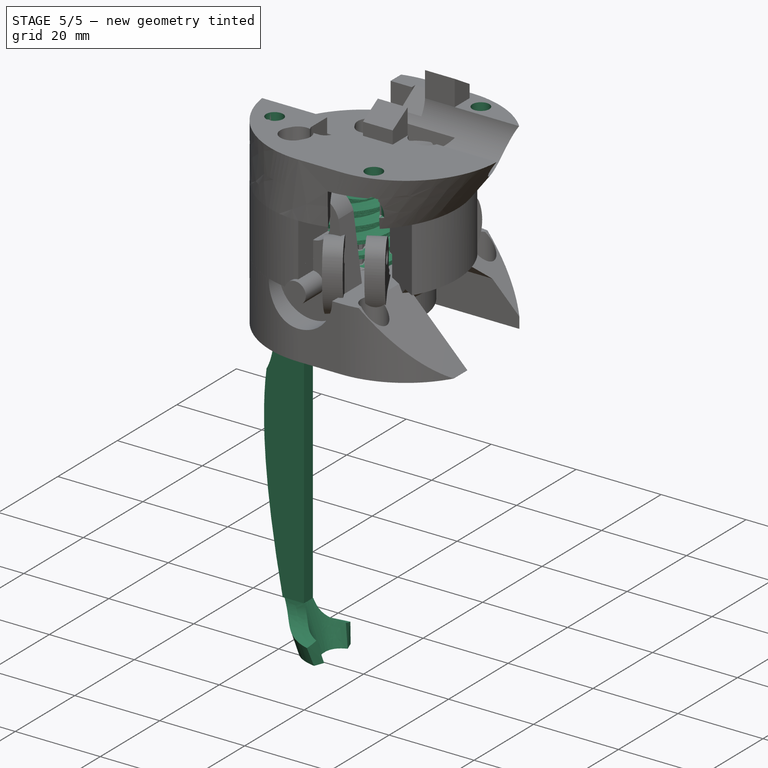
[diagram: stage 5 of 5 — iso view after this stage's code; geometry added in this stage tinted green]
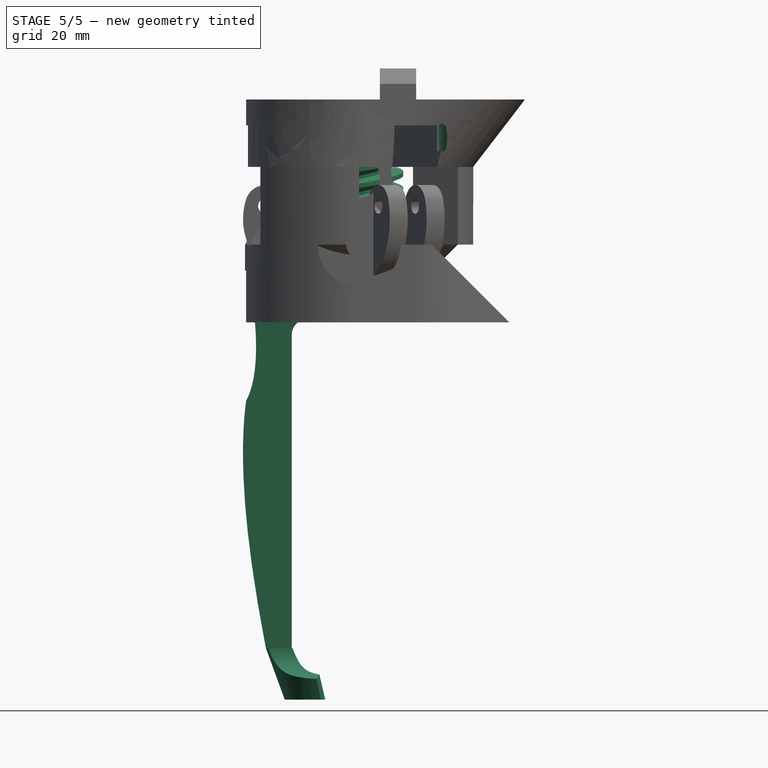
[diagram: stage 5 of 5 — front view after this stage's code; geometry added in this stage tinted green]
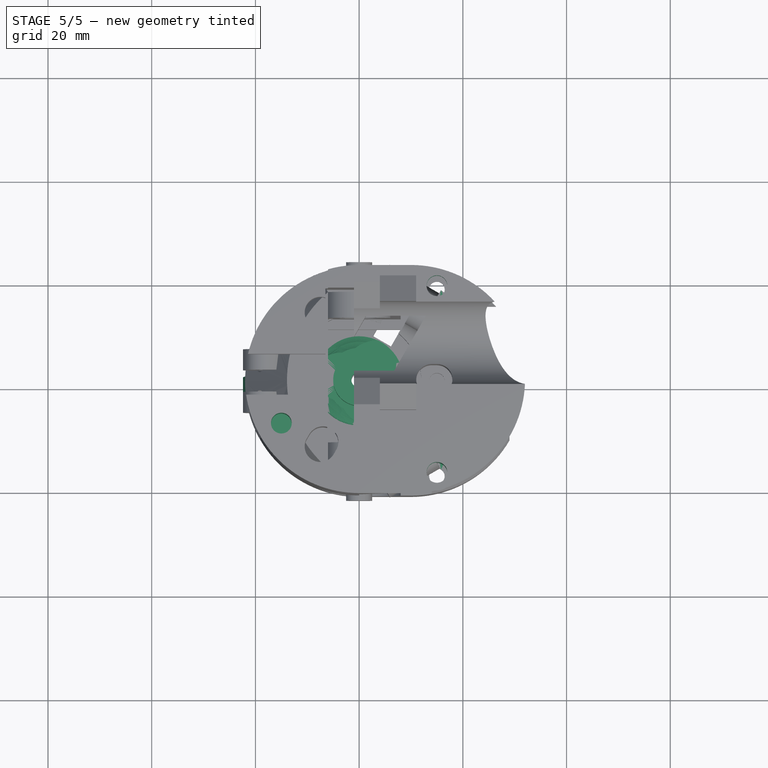
[diagram: stage 5 of 5 — top view after this stage's code; geometry added in this stage tinted green]
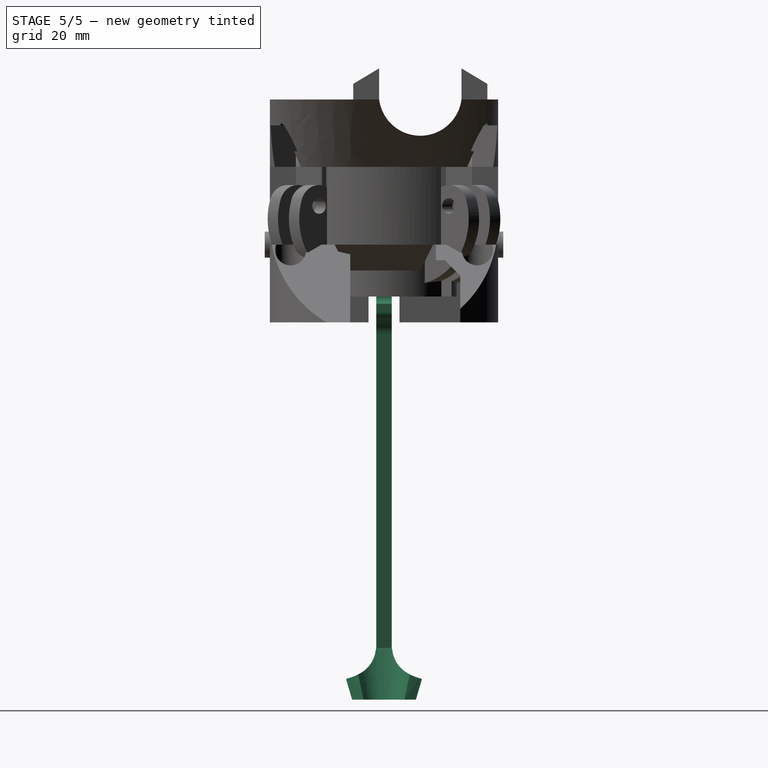
[diagram: stage 5 of 5 — right view after this stage's code; geometry added in this stage tinted green]
FEATURE [PartDesign::AdditiveLoft] AdditiveLoft002
  BaseFeature = -> Pocket010
  Closed = true
  Placement = pos=(0,0,0) rot=(1,0,0;1.5708rad)
  Profile = -> Sketch016
  Refine = true
  Ruled = true
  Sections = -> [Sketch017]
  Suppressed = false
FEATURE [Sketcher::SketchObject] Sketch018
  ArcFitTolerance = 1e-06
  AttachmentSupport = -> [YZ_Plane002]
  ExternalGeometry = -> [AdditiveLoft002]
  FullyConstrained = false
  MakeInternals = false
  MapMode = 5
  Placement = pos=(0,0,0) rot=(0.57735,0.57735,0.57735;2.0944rad)
  sketch-geometry (9):
    g0: Circle [constr] CenterX=-25.4284 CenterY=-84.2513 CenterZ=0 NormalX=0 NormalY=0 NormalZ=1 AngleXU=0 Radius=1
    g1: Circle [constr] CenterX=-2.16974 CenterY=-84.4568 CenterZ=0 NormalX=0 NormalY=0 NormalZ=1 AngleXU=0 Radius=1
    g2: Circle [constr] CenterX=-1.5 CenterY=-77.753 CenterZ=0 NormalX=0 NormalY=0 NormalZ=1 AngleXU=0 Radius=1
    g3: BSplineCurve PolesCount=3 KnotsCount=2 Degree=2 IsPeriodic=0
    g4: GeomPoint [constr] X=-12.8183 Y=-84.2513 Z=0
    g5: GeomPoint [constr] X=-1.5 Y=-77.753 Z=0
    g6: LineSegment StartX=-14.8386 StartY=-84.2513 StartZ=0 EndX=-14.8386 EndY=-77.2874 EndZ=0
    g7: LineSegment StartX=-14.8386 StartY=-77.2874 StartZ=0 EndX=-1.5 EndY=-77.753 EndZ=0
    g8: LineSegment StartX=-14.8386 StartY=-84.2513 StartZ=0 EndX=-12.8183 EndY=-84.2513 EndZ=0
  constraints (14):
    c: Weight(g0) = 1
    c: Equal(g0,g1)
    c: Equal(g0,g2)
    c: InternalAlignment(g1,g3)
    c: InternalAlignment(g2,g3)
    c: InternalAlignment(g4,g3)
    c: InternalAlignment(g5,g3)
    c: Vertical(g6)
    c: Coincident(g6,g7)
    c: Coincident(g7,g3)
    c: Coincident(g6,g8)
    c: Coincident(g8,g3)
    c: Horizontal(g8)
    c: Horizontal(g3,g0)
FEATURE [PartDesign::Pocket] Pocket005
  BaseFeature = -> AdditiveLoft002
  Direction = (-1,0,0)
  Length = 5
  Length2 = 5
  Placement = pos=(0,0,0) rot=(1,0,0;1.5708rad)
  Profile = -> Sketch018
  ReferenceAxis = -> Sketch018 [N_Axis]
  Refine = true
  Suppressed = false
  Type = 1
FEATURE [PartDesign::FeaturePython] WormGear001  # WARN: FeaturePython — macro-defined, semantics opaque (R4)
  AttacherType = Attacher::AttachEngine3D
  Suppressed = false
  beta = 11.3099
  clearance = 0.25
  diameter = 15
  head = 0
  height = 20
  module = 1
  num_teeth = 3
  pressure_angle = 20
  reverse_pitch = false
  version = 1.3.0
FEATURE [Sketcher::SketchObject] Sketch080
  ArcFitTolerance = 1e-06
  AttachmentSupport = -> [WormGear001]
  FullyConstrained = true
  MakeInternals = false
  MapMode = 5
  Placement = pos=(-0.000288442,-0.000277997,19.9998) rot=(0.693951,-0.720023,-5e-06;2e-05rad)
  sketch-geometry (2):
    g0: ArcOfCircle CenterX=0 CenterY=0 CenterZ=0 NormalX=0 NormalY=0 NormalZ=1 AngleXU=0 Radius=1.5 StartAngle=2.41186 EndAngle=7.01291
    g1: LineSegment StartX=-1.11803 StartY=1 StartZ=0 EndX=1.11803 EndY=1 EndZ=0
  constraints (6):
    c: Diameter(g0) = 3
    c: Coincident(g0,g-1)
    c: Horizontal(g1)
    c: Distance(g0,g1) = 1
    c: Coincident(g0,g1)
    c: Coincident(g1,g0)
FEATURE [PartDesign::Pocket] Pocket044
  BaseFeature = -> WormGear001
  Direction = (1.44222e-05,1.39e-05,-1)
  Length = 10
  Length2 = 5
  Profile = -> Sketch080
  ReferenceAxis = -> Sketch080 [N_Axis]
  Refine = true
  Suppressed = false
  Type = 0
FEATURE [Sketcher::SketchObject] Sketch082
  ArcFitTolerance = 1e-06
  AttachmentSupport = -> [Pocket044]
  FullyConstrained = true
  MakeInternals = false
  MapMode = 5
  Placement = pos=(0,0,0) rot=(1,0,0;3.14159rad)
  sketch-geometry (1):
    g0: Circle CenterX=0 CenterY=0 CenterZ=0 NormalX=0 NormalY=0 NormalZ=1 AngleXU=0 Radius=5
  constraints (2):
    c: Coincident(g0,g-1)
    c: Diameter(g0) = 10
FEATURE [PartDesign::Pocket] Pocket046
  BaseFeature = -> Pocket044
  Direction = (0,0,1)
  Length = 5
  Length2 = 5
  Profile = -> Sketch082
  ReferenceAxis = -> Sketch082 [N_Axis]
  Refine = true
  Suppressed = false
  Type = 0
FEATURE [Sketcher::SketchObject] Sketch083
  ArcFitTolerance = 1e-06
  AttachmentSupport = -> [Pocket046]
  FullyConstrained = true
  MakeInternals = false
  MapMode = 5
  Placement = pos=(0,0,5) rot=(1,0,0;3.14159rad)
  sketch-geometry (1):
    g0: Circle CenterX=0 CenterY=0 CenterZ=0 NormalX=0 NormalY=0 NormalZ=1 AngleXU=0 Radius=3
  constraints (2):
    c: Coincident(g0,g-1)
    c: Diameter(g0) = 6
FEATURE [PartDesign::Pocket] Pocket047
  BaseFeature = -> Pocket046
  Direction = (0,0,1)
  Length = 10
  Length2 = 5
  Profile = -> Sketch083
  ReferenceAxis = -> Sketch083 [N_Axis]
  Refine = true
  Suppressed = false
  Type = 0
FEATURE [Sketcher::SketchObject] Sketch084
  ArcFitTolerance = 1e-06
  AttachmentSupport = -> [Pocket047]
  FullyConstrained = true
  MakeInternals = false
  MapMode = 5
  Placement = pos=(-0.000288442,-0.000277997,19.9998) rot=(0.693951,-0.720023,-5e-06;2e-05rad)
  sketch-geometry (2):
    g0: Circle CenterX=0 CenterY=0 CenterZ=0 NormalX=0 NormalY=0 NormalZ=1 AngleXU=0 Radius=5
    g1: Circle CenterX=0 CenterY=0 CenterZ=0 NormalX=0 NormalY=0 NormalZ=1 AngleXU=0 Radius=10
  constraints (4):
    c: Diameter(g0) = 10
    c: Coincident(g0,g-1)
    c: Diameter(g1) = 20
    c: Coincident(g1,g0)
FEATURE [PartDesign::Pocket] Pocket048
  BaseFeature = -> Pocket047
  Direction = (1.44222e-05,1.39e-05,-1)
  Length = 5
  Length2 = 5
  Profile = -> Sketch084
  ReferenceAxis = -> Sketch084 [N_Axis]
  Refine = true
  Suppressed = false
  Type = 0
FEATURE [Sketcher::SketchObject] Sketch111
  ArcFitTolerance = 1e-06
  AttachmentSupport = -> [Pocket068]
  FullyConstrained = true
  MakeInternals = false
  MapMode = 5
  Placement = pos=(0,3.4e-15,-15) rot=(1,0,0;3.14159rad)
  sketch-geometry (4):
    g0: Circle CenterX=15 CenterY=-18 CenterZ=0 NormalX=0 NormalY=0 NormalZ=1 AngleXU=0 Radius=1.5
    g1: Circle CenterX=15 CenterY=18 CenterZ=0 NormalX=0 NormalY=0 NormalZ=1 AngleXU=0 Radius=1.5
    g2: Circle CenterX=-15 CenterY=8.5 CenterZ=0 NormalX=0 NormalY=0 NormalZ=1 AngleXU=0 Radius=1.5
    g3: Circle CenterX=-15 CenterY=-8.5 CenterZ=0 NormalX=0 NormalY=0 NormalZ=1 AngleXU=0 Radius=1.5
  constraints (12):
    c: Diameter(g0) = 3
    c: DistanceY(g0,g-1) = 18
    c: DistanceX(g-1,g0) = 15
    c: Diameter(g1) = 3
    c: DistanceY(g-1,g1) = 18
    c: DistanceX(g-1,g1) = 15
    c: Diameter(g2) = 3
    c: Diameter(g3) = 3
    c: DistanceX(g2,g-1) = 15
    c: DistanceX(g3,g-1) = 15
    c: DistanceY(g3,g-1) = 8.5
    c: DistanceY(g-1,g2) = 8.5
FEATURE [Sketcher::SketchObject] Sketch113
  ArcFitTolerance = 1e-06
  AttachmentSupport = -> [Pocket065]
  FullyConstrained = true
  MakeInternals = false
  MapMode = 5
  Placement = pos=(0,0,28) rot=(0,0,1;0rad)
  sketch-geometry (3):
    g0: Circle CenterX=-15 CenterY=-8.5 CenterZ=0 NormalX=0 NormalY=0 NormalZ=1 AngleXU=0 Radius=2
    g1: Circle CenterX=15 CenterY=18 CenterZ=0 NormalX=0 NormalY=0 NormalZ=1 AngleXU=0 Radius=2
    g2: Circle CenterX=15 CenterY=-18 CenterZ=0 NormalX=0 NormalY=0 NormalZ=1 AngleXU=0 Radius=2
  constraints (9):
    c: Diameter(g0) = 4
    c: DistanceY(g0,g-1) = 8.5
    c: DistanceX(g0,g-1) = 15
    c: Diameter(g1) = 4
    c: DistanceX(g-1,g1) = 15
    c: DistanceY(g-1,g1) = 18
    c: Diameter(g2) = 4
    c: DistanceY(g2,g-1) = 18
    c: DistanceX(g-1,g2) = 15
FEATURE [PartDesign::Pocket] Pocket073
  BaseFeature = -> Pocket065
  Direction = (0,0,-1)
  Length = 10
  Length2 = 5
  Placement = pos=(0,0,28) rot=(0,0,1;0rad)
  Profile = -> Sketch113
  ReferenceAxis = -> Sketch113 [N_Axis]
  Refine = true
  Suppressed = false
  Type = 0
FEATURE [Sketcher::SketchObject] Sketch003
  ArcFitTolerance = 1e-06
  AttachmentSupport = -> [Pad002]
  FullyConstrained = true
  MakeInternals = false
  MapMode = 5
  Placement = pos=(0,0,1.8) rot=(0,0,1;0rad)
  sketch-geometry (1):
    g0: Circle CenterX=0 CenterY=0 CenterZ=0 NormalX=0 NormalY=0 NormalZ=1 AngleXU=0 Radius=7.5
  constraints (2):
    c: Diameter(g0) = 15
    c: Coincident(g0,g-1)
FEATURE [PartDesign::Pad] Pad003
  BaseFeature = -> Pad002
  Direction = (0,0,1)
  Length = 11.5
  Length2 = 10
  Profile = -> Sketch003
  ReferenceAxis = -> Sketch003 [N_Axis]
  Refine = true
  Reversed = true
  Suppressed = false
  Type = 0
FEATURE [PartDesign::Body] Body  label="GearBox"
  AllowCompound = false
  Group = -> [Sketch,Pad,Sketch001,Pad001,Sketch002,Pad002,Sketch003,Pad003]
  Origin = -> Origin
  Placement = pos=(0,0,9.7) rot=(0,0,1;0rad)
  Tip = -> Pad003
FEATURE [Sketcher::SketchObject] Sketch004
  ArcFitTolerance = 1e-06
  AttachmentSupport = -> [XY_Plane001]
  FullyConstrained = true
  MakeInternals = false
  MapMode = 5
  sketch-geometry (1):
    g0: Circle CenterX=0 CenterY=0 CenterZ=0 NormalX=0 NormalY=0 NormalZ=1 AngleXU=0 Radius=7.5
  constraints (2):
    c: Diameter(g0) = 15
    c: Coincident(g0,g-1)
FEATURE [PartDesign::Pad] Pad004
  Direction = (0,0,1)
  Length = 10
  Length2 = 10
  Profile = -> Sketch004
  ReferenceAxis = -> Sketch004 [N_Axis]
  Refine = true
  Reversed = true
  Suppressed = false
  Type = 0
FEATURE [PartDesign::Fillet] Fillet
  Base = -> Pad004 [Edge2,Edge3]
  BaseFeature = -> Pad004
  Radius = 0.5
  Refine = true
  SupportTransform = false
  Suppressed = false
  UseAllEdges = false
FEATURE [PartDesign::Fillet] Fillet001
  Base = -> Pad006 [Edge13]
  BaseFeature = -> Pad006
  Radius = 0.2
  Refine = true
  SupportTransform = false
  Suppressed = false
  UseAllEdges = false
FEATURE [Sketcher::SketchObject] Sketch013
  ArcFitTolerance = 1e-06
  AttachmentOffset = pos=(0,-2,8) rot=(0,0,1;1.5708rad)
  AttachmentSupport = -> [Origin001]
  FullyConstrained = false
  MakeInternals = false
  Placement = pos=(0,-2,8) rot=(0,0,1;1.5708rad)
  sketch-geometry (4):
    g0: BSplineCurve PolesCount=3 KnotsCount=2 Degree=2 IsPeriodic=0
    g1: BSplineCurve PolesCount=3 KnotsCount=2 Degree=2 IsPeriodic=0
    g2: LineSegment StartX=-7.10277 StartY=5 StartZ=0 EndX=0.768193 EndY=5 EndZ=0
    g3: LineSegment StartX=-7.10277 StartY=-5 StartZ=0 EndX=0.768193 EndY=-5 EndZ=0
  constraints (8):
    c: Horizontal(g2)
    c: Horizontal(g3)
    c: Distance(g-1,g2) = 5
    c: Distance(g-1,g3) = 5
    c: Coincident(g0,g2)
    c: Coincident(g2,g1)
    c: Coincident(g3,g1)
    c: Coincident(g3,g0)
FEATURE [PartDesign::Plane] DatumPlane
  Length = 62.2474
  MapMode = 45
  Placement = pos=(1.6e-15,-10.3407,28) rot=(-1,0,0;1.5708rad)
  ResizeMode = 0
  Width = 87.2474
FEATURE [Sketcher::SketchObject] Sketch014
  ArcFitTolerance = 1e-06
  AttachmentSupport = -> [DatumPlane]
  FullyConstrained = false
  MakeInternals = false
  MapMode = 5
  Placement = pos=(1.6e-15,-10.3407,28) rot=(-1,0,0;1.5708rad)
  sketch-geometry (4):
    g0: ArcOfCircle CenterX=11 CenterY=17 CenterZ=0 NormalX=0 NormalY=0 NormalZ=1 AngleXU=0 Radius=6.7082 StartAngle=0.992248 EndAngle=2.67795
    g1: LineSegment StartX=5 StartY=20 StartZ=0 EndX=5 EndY=14.9671 EndZ=0
    g2: LineSegment StartX=5 StartY=14.9671 StartZ=0 EndX=14.6681 EndY=14.9671 EndZ=0
    g3: LineSegment StartX=14.6681 StartY=14.9671 StartZ=0 EndX=14.6681 EndY=22.6165 EndZ=0
  constraints (10):
    c: Coincident(g0,g-4)
    c: Distance(g0,g-2) = 11
    c: DistanceY(g-1,g0) = 17
    c: Coincident(g1,g0)
    c: Vertical(g1)
    c: Coincident(g2,g1)
    c: Horizontal(g2)
    c: Coincident(g3,g2)
    c: Coincident(g3,g0)
    c: Vertical(g3)
FEATURE [PartDesign::Pocket] Pocket007
  BaseFeature = -> AdditiveLoft
  Direction = (0,-1,-2e-16)
  Length = 5
  Length2 = 5
  Profile = -> Sketch014
  ReferenceAxis = -> Sketch014 [N_Axis]
  Refine = true
  Reversed = true
  Suppressed = false
  Type = 1
FEATURE [PartDesign::Mirrored] Mirrored
  BaseFeature = -> Pocket007
  MirrorPlane = -> Sketch014 [V_Axis]
  Originals = -> [Pocket007]
  Refine = true
  Suppressed = false
  TransformMode = 0
FEATURE [Sketcher::SketchObject] Sketch015
  ArcFitTolerance = 1e-06
  AttachmentOffset = pos=(0,-12,-19) rot=(0,0,1;0rad)
  AttachmentSupport = -> [DatumPlane]
  ExternalGeometry = -> [Mirrored]
  FullyConstrained = false
  MakeInternals = false
  MapMode = 5
  Placement = pos=(1.6e-15,-29.3407,40) rot=(-1,0,0;1.5708rad)
  sketch-geometry (5):
    g0: LineSegment StartX=1.75 StartY=-20.5025 StartZ=0 EndX=1.75 EndY=11.5 EndZ=0
    g1: LineSegment StartX=1.75 StartY=11.5 StartZ=0 EndX=-1.75 EndY=11.5 EndZ=0
    g2: LineSegment StartX=-1.75 StartY=11.5 StartZ=0 EndX=-1.75 EndY=-20.5025 EndZ=0
    g3: LineSegment StartX=-1.75 StartY=-20.5025 StartZ=0 EndX=1.75 EndY=-20.5025 EndZ=0
    g4: GeomPoint [constr] X=0 Y=0 Z=0
  constraints (12):
    c: Coincident(g0,g1)
    c: Coincident(g1,g2)
    c: Coincident(g2,g3)
    c: Coincident(g3,g0)
    c: Vertical(g0)
    c: Vertical(g2)
    c: Horizontal(g1)
    c: Horizontal(g3)
    c: Coincident(g4,g-1)
    c: Distance(g3,g3) = 3.5
    c: Distance(g-3,g1) = 20.5
    c: Distance(g-2,g2) = 1.75
FEATURE [Sketcher::SketchObject] Sketch016
  ArcFitTolerance = 1e-06
  AttachmentOffset = pos=(0,-2,41) rot=(0,0,1;0rad)
  AttachmentSupport = -> [XY_Plane001]
  FullyConstrained = true
  MakeInternals = false
  MapMode = 5
  Placement = pos=(0,-2,41) rot=(0,0,1;0rad)
  sketch-geometry (4):
    g0: LineSegment StartX=-4 StartY=-2.5 StartZ=0 EndX=-4 EndY=-15.5 EndZ=0
    g1: LineSegment StartX=-4 StartY=-15.5 StartZ=0 EndX=4 EndY=-15.5 EndZ=0
    g2: LineSegment StartX=4 StartY=-15.5 StartZ=0 EndX=4 EndY=-2.5 EndZ=0
    g3: LineSegment StartX=4 StartY=-2.5 StartZ=0 EndX=-4 EndY=-2.5 EndZ=0
  constraints (12):
    c: Coincident(g0,g1)
    c: Coincident(g1,g2)
    c: Coincident(g2,g3)
    c: Coincident(g3,g0)
    c: Vertical(g0)
    c: Vertical(g2)
    c: Horizontal(g1)
    c: Horizontal(g3)
    c: Distance(g-2,g2) = 4
    c: Distance(g-2,g0) = 4
    c: DistanceY(g2,g2) = 13
    c: Distance(g-1,g3) = 2.5
FEATURE [Sketcher::SketchObject] Sketch017
  ArcFitTolerance = 1e-06
  AttachmentOffset = pos=(0,-2,50) rot=(0,0,1;0rad)
  AttachmentSupport = -> [XY_Plane001]
  FullyConstrained = true
  MakeInternals = false
  MapMode = 5
  Placement = pos=(0,-2,50) rot=(0,0,1;0rad)
  sketch-geometry (4):
    g0: LineSegment StartX=-2 StartY=-2.5 StartZ=0 EndX=-2 EndY=-15.5 EndZ=0
    g1: LineSegment StartX=-2 StartY=-15.5 StartZ=0 EndX=2 EndY=-15.5 EndZ=0
    g2: LineSegment StartX=2 StartY=-15.5 StartZ=0 EndX=2 EndY=-2.5 EndZ=0
    g3: LineSegment StartX=2 StartY=-2.5 StartZ=0 EndX=-2 EndY=-2.5 EndZ=0
  constraints (12):
    c: Coincident(g0,g1)
    c: Coincident(g1,g2)
    c: Coincident(g2,g3)
    c: Coincident(g3,g0)
    c: Vertical(g0)
    c: Vertical(g2)
    c: Horizontal(g1)
    c: Horizontal(g3)
    c: Distance(g-2,g2) = 2
    c: Distance(g-2,g0) = 2
    c: DistanceY(g2,g2) = 13
    c: Distance(g-1,g3) = 2.5
FEATURE [PartDesign::AdditiveLoft] AdditiveLoft001
  BaseFeature = -> Mirrored
  Closed = false
  Profile = -> Sketch013
  Refine = true
  Ruled = false
  Sections = -> [Sketch016,Sketch017]
  Suppressed = false
FEATURE [PartDesign::Pocket] Pocket008
  BaseFeature = -> AdditiveLoft001
  Direction = (0,-1,-2e-16)
  Length = 5
  Length2 = 5
  Profile = -> Sketch015
  ReferenceAxis = -> Sketch015 [N_Axis]
  Refine = true
  Reversed = true
  Suppressed = false
  Type = 1
FEATURE [Sketcher::SketchObject] Sketch018
  ArcFitTolerance = 1e-06
  AttachmentSupport = -> [YZ_Plane001]
  FullyConstrained = false
  MakeInternals = false
  MapMode = 5
  Placement = pos=(0,0,0) rot=(0.57735,0.57735,0.57735;2.0944rad)
  sketch-geometry (2):
    g0: Circle CenterX=-7.76687 CenterY=37.7063 CenterZ=0 NormalX=0 NormalY=0 NormalZ=1 AngleXU=0 Radius=1
    g1: Circle CenterX=-10.3585 CenterY=46.9237 CenterZ=0 NormalX=0 NormalY=0 NormalZ=1 AngleXU=0 Radius=1
  constraints (2):
    c: Diameter(g0) = 2
    c: Diameter(g1) = 2
FEATURE [PartDesign::Pocket] Pocket009
  BaseFeature = -> Pocket008
  Direction = (-1,0,0)
  Length = 5
  Length2 = 5
  Midplane = true
  Profile = -> Sketch018
  ReferenceAxis = -> Sketch018 [N_Axis]
  Refine = true
  Suppressed = false
  Type = 1
FEATURE [PartDesign::Body] Body001  label="FingerSpring"
  AllowCompound = false
  Group = -> [Sketch007,Sketch010,AdditiveLoft,Sketch013,DatumPlane,Sketch014,Pocket007,Mirrored,Sketch015,Sketch016,Sketch017,AdditiveLoft001,Pocket008,Sketch018,Pocket009]
  Origin = -> Origin001
  Placement = pos=(2,9.8,-78) rot=(0,0,1;0rad)
  Tip = -> Pocket009
FEATURE [PartDesign::FeaturePython] InvoluteGear001  # WARN: FeaturePython — macro-defined, semantics opaque (R4)
  AttacherType = Attacher::AttachEngine3D
  Suppressed = false
  addendum_diameter = 23
  angular_backlash = 0
  axle_hole = false
  axle_holesize = 10
  backlash = 0
  clearance = 0.25
  double_helix = false
  head = 0
  head_fillet = 0
  height = 4
  helix_angle = 0
  module = 1
  num_teeth = 21
  numpoints = 20
  offset_hole = false
  offset_holeoffset = 10
  offset_holesize = 10
  pitch_diameter = 21
  pressure_angle = 20
  properties_from_tool = false
  reversed_backlash = false
  root_diameter = 18.5
  root_fillet = 0
  shift = 0
  simple = false
  transverse_pitch = 3.14159
  traverse_module = 1
  undercut = false
  version = 1.3.0
  expr: angular_backlash = backlash / pitch_diameter * 360 ° / pi
FEATURE [Sketcher::SketchObject] Sketch019
  ArcFitTolerance = 1e-06
  AttachmentSupport = -> [InvoluteGear001]
  FullyConstrained = false
  MakeInternals = false
  MapMode = 5
  Placement = pos=(0,0,0) rot=(1,0,0;3.14159rad)
  sketch-geometry (4):
    g0: LineSegment StartX=-14.5578 StartY=0 StartZ=0 EndX=16.3975 EndY=0 EndZ=0
    g1: LineSegment StartX=16.3975 StartY=0 StartZ=0 EndX=16.3975 EndY=18.6359 EndZ=0
    g2: LineSegment StartX=16.3975 StartY=18.6359 StartZ=0 EndX=-14.5578 EndY=18.6359 EndZ=0
    g3: LineSegment StartX=-14.5578 StartY=18.6359 StartZ=0 EndX=-14.5578 EndY=0 EndZ=0
  constraints (9):
    c: Coincident(g0,g1)
    c: Coincident(g1,g2)
    c: Coincident(g2,g3)
    c: Coincident(g3,g0)
    c: Horizontal(g0)
    c: Horizontal(g2)
    c: Vertical(g1)
    c: Vertical(g3)
    c: PointOnObject(g0,g-1)
FEATURE [PartDesign::Pocket] Pocket010
  BaseFeature = -> InvoluteGear001
  Direction = (0,0,1)
  Length = 5
  Length2 = 5
  Profile = -> Sketch019
  ReferenceAxis = -> Sketch019 [N_Axis]
  Refine = true
  Suppressed = false
  Type = 0
FEATURE [Sketcher::SketchObject] Sketch022
  ArcFitTolerance = 1e-06
  AttachmentOffset = pos=(0,0,-25) rot=(0,0,1;0rad)
  AttachmentSupport = -> [YZ_Plane002]
  FullyConstrained = false
  MakeInternals = false
  MapMode = 5
  Placement = pos=(-25,0,0) rot=(0.57735,0.57735,0.57735;2.0944rad)
  sketch-geometry (8):
    g0: LineSegment StartX=-24.0271 StartY=12.204 StartZ=0 EndX=-24.0271 EndY=3.8 EndZ=0
    g1: LineSegment StartX=-24.0271 StartY=3.8 StartZ=0 EndX=23.0976 EndY=3.8 EndZ=0
    g2: LineSegment StartX=23.0976 StartY=3.8 StartZ=0 EndX=23.0976 EndY=12.204 EndZ=0
    g3: LineSegment StartX=23.0976 StartY=12.204 StartZ=0 EndX=-24.0271 EndY=12.204 EndZ=0
    g4: LineSegment StartX=-23.6185 StartY=0.2 StartZ=0 EndX=-23.6185 EndY=-13.6366 EndZ=0
    g5: LineSegment StartX=-23.6185 StartY=-13.6366 StartZ=0 EndX=23.3999 EndY=-13.6366 EndZ=0
    g6: LineSegment StartX=23.3999 StartY=-13.6366 StartZ=0 EndX=23.3999 EndY=0.2 EndZ=0
    g7: LineSegment StartX=23.3999 StartY=0.2 StartZ=0 EndX=-23.6185 EndY=0.2 EndZ=0
  constraints (18):
    c: Coincident(g0,g1)
    c: Coincident(g1,g2)
    c: Coincident(g2,g3)
    c: Coincident(g3,g0)
    c: Vertical(g0)
    c: Vertical(g2)
    c: Horizontal(g1)
    c: Horizontal(g3)
    c: Distance(g-1,g1) = 3.8
    c: Coincident(g4,g5)
    c: Coincident(g5,g6)
    c: Coincident(g6,g7)
    c: Coincident(g7,g4)
    c: Vertical(g4)
    c: Vertical(g6)
    c: Horizontal(g5)
    c: Horizontal(g7)
    c: Distance(g1,g7) = 3.6
FEATURE [PartDesign::Pocket] Pocket012
  BaseFeature = -> Pocket011
  Direction = (-1,0,0)
  Length = 90
  Length2 = 5
  Profile = -> Sketch022
  ReferenceAxis = -> Sketch022 [N_Axis]
  Refine = true
  Reversed = true
  Suppressed = false
  Type = 0
FEATURE [Sketcher::SketchObject] Sketch023
  ArcFitTolerance = 1e-06
  AttachmentOffset = pos=(0,2,9) rot=(0,0,1;0rad)
  AttachmentSupport = -> [Pocket012]
  ExternalGeometry = -> [Pocket012]
  FullyConstrained = false
  MakeInternals = false
  MapMode = 5
  Placement = pos=(84,0,2) rot=(0.57735,0.57735,0.57735;2.0944rad)
  sketch-geometry (10):
    g0: Circle [constr] CenterX=1.41082 CenterY=3.5 CenterZ=0 NormalX=0 NormalY=0 NormalZ=1 AngleXU=0 Radius=1
    g1: Circle [constr] CenterX=3.41067 CenterY=8.94088 CenterZ=0 NormalX=0 NormalY=0 NormalZ=1 AngleXU=0 Radius=1
    g2: Circle [constr] CenterX=8.09245 CenterY=11.1604 CenterZ=0 NormalX=0 NormalY=0 NormalZ=1 AngleXU=0 Radius=1
    g3: BSplineCurve PolesCount=3 KnotsCount=2 Degree=2 IsPeriodic=0
    g4: GeomPoint [constr] X=1.41082 Y=3.5 Z=0
    g5: GeomPoint [constr] X=8.09245 Y=11.1604 Z=0
    g6: LineSegment StartX=8.09245 StartY=11.1604 StartZ=0 EndX=9.59245 EndY=8.56231 EndZ=0
    g7: ArcOfCircle CenterX=18 CenterY=0 CenterZ=0 NormalX=0 NormalY=0 NormalZ=1 AngleXU=0 Radius=12 StartAngle=2.34708 EndAngle=3.14159
    g8: LineSegment StartX=1.41082 StartY=3.5 StartZ=0 EndX=1.41082 EndY=1.3e-15 EndZ=0
    g9: LineSegment StartX=1.41082 StartY=1.3e-15 StartZ=0 EndX=6 EndY=1.3e-15 EndZ=0
  constraints (23):
    c: Weight(g0) = 1
    c: Equal(g0,g1)
    c: Equal(g0,g2)
    c: InternalAlignment(g0,g3)
    c: InternalAlignment(g1,g3)
    c: InternalAlignment(g2,g3)
    c: InternalAlignment(g4,g3)
    c: InternalAlignment(g5,g3)
    c: Coincident(g6,g3)
    c: PointOnObject(g7,g-1)
    c: Coincident(g7,g6)
    c: DistanceX(g-1,g7) = 18
    c: Radius(g7) = 12
    c: Angle(g6,g-1) = 1.0472
    c: Coincident(g8,g3)
    c: PointOnObject(g8,g-1)
    c: Vertical(g8)
    c: Coincident(g8,g9)
    c: Coincident(g9,g7)
    c: Horizontal(g9)
    c: Horizontal(g3,g-3)
    c: Distance(g6,g6) = 3
    c: Distance(g7,g6) = 3
FEATURE [Sketcher::SketchObject] Sketch024
  ArcFitTolerance = 1e-06
  AttachmentOffset = pos=(0,2,0) rot=(0,0,1;0rad)
  AttachmentSupport = -> [Pocket012]
  ExternalGeometry = -> [Pocket012]
  FullyConstrained = false
  MakeInternals = false
  MapMode = 5
  Placement = pos=(75,0,2) rot=(0.57735,0.57735,0.57735;2.0944rad)
  sketch-geometry (10):
    g0: ArcOfCircle CenterX=18 CenterY=0 CenterZ=0 NormalX=0 NormalY=0 NormalZ=1 AngleXU=0 Radius=9 StartAngle=2.43423 EndAngle=3.14159
    g1: Circle [constr] CenterX=-4e-16 CenterY=3.5 CenterZ=0 NormalX=0 NormalY=0 NormalZ=1 AngleXU=0 Radius=1
    g2: Circle [constr] CenterX=1.88607 CenterY=8.5237 CenterZ=0 NormalX=0 NormalY=0 NormalZ=1 AngleXU=0 Radius=1
    g3: Circle [constr] CenterX=7.60571 CenterY=12.0034 CenterZ=0 NormalX=0 NormalY=0 NormalZ=1 AngleXU=0 Radius=1
    g4: BSplineCurve PolesCount=3 KnotsCount=2 Degree=2 IsPeriodic=0
    g5: GeomPoint [constr] X=-4e-16 Y=3.5 Z=0
    g6: GeomPoint [constr] X=7.60571 Y=12.0034 Z=0
    g7: LineSegment StartX=7.60571 StartY=12.0034 StartZ=0 EndX=11.1593 EndY=5.84847 EndZ=0
    g8: LineSegment StartX=-4e-16 StartY=3.5 StartZ=0 EndX=0 EndY=0 EndZ=0
    g9: LineSegment StartX=9 StartY=1.1e-15 StartZ=0 EndX=0 EndY=0 EndZ=0
  constraints (21):
    c: Radius(g0) = 9
    c: PointOnObject(g0,g-1)
    c: PointOnObject(g0,g-1)
    c: DistanceX(g-1,g0) = 18
    c: Weight(g1) = 1
    c: Equal(g1,g2)
    c: Equal(g1,g3)
    c: InternalAlignment(g1,g4)
    c: InternalAlignment(g2,g4)
    c: InternalAlignment(g3,g4)
    c: InternalAlignment(g5,g4)
    c: InternalAlignment(g6,g4)
    c: Coincident(g7,g4)
    c: Coincident(g7,g0)
    c: Coincident(g4,g-3)
    c: Coincident(g8,g4)
    c: Symmetric(g-3,g-3,g8)
    c: Coincident(g9,g0)
    c: Coincident(g9,g8)
    c: Angle(g-1,g7) = 2.0944
    c: Distance(g0,g7) = 3
FEATURE [PartDesign::AdditiveLoft] AdditiveLoft002
  BaseFeature = -> Pocket012
  Closed = false
  Profile = -> Sketch023
  Refine = true
  Ruled = false
  Sections = -> [Sketch024]
  Suppressed = false
FEATURE [Sketcher::SketchObject] Sketch027
  ArcFitTolerance = 1e-06
  AttachmentSupport = -> [AdditiveLoft002]
  FullyConstrained = false
  MakeInternals = false
  MapMode = 45
  Placement = pos=(79.0131,4.14569,2) rot=(0,0,1;1.33086rad)
  sketch-geometry (4):
    g0: LineSegment StartX=-0.123853 StartY=4.10118 StartZ=0 EndX=10.364 EndY=-6.8556 EndZ=0
    g1: LineSegment StartX=-0.123853 StartY=4.10118 StartZ=0 EndX=5.99341 EndY=7.95613 EndZ=0
    g2: LineSegment StartX=10.364 StartY=-6.8556 StartZ=0 EndX=17.134 EndY=-5.19933 EndZ=0
    g3: LineSegment StartX=5.99341 StartY=7.95613 StartZ=0 EndX=17.134 EndY=-5.19933 EndZ=0
  constraints (7):
    c: Coincident(g0,g-4)
    c: Coincident(g1,g0)
    c: Angle(g0,g-4) = 1.0472
    c: Coincident(g2,g0)
    c: Coincident(g1,g3)
    c: Coincident(g3,g2)
    c: Parallel(g2,g-4)
FEATURE [PartDesign::Chamfer] Chamfer
  Angle = 29
  Base = -> AdditiveLoft002 [Edge200,Edge205]
  BaseFeature = -> AdditiveLoft002
  ChamferType = 2
  FlipDirection = false
  Refine = true
  Size = 6
  Size2 = 1
  SupportTransform = false
  Suppressed = false
  UseAllEdges = false
FEATURE [PartDesign::Pocket] Pocket017
  BaseFeature = -> Chamfer
  Direction = (0,0,-1)
  Length = 5
  Length2 = 5
  Profile = -> Sketch027
  ReferenceAxis = -> Sketch027 [N_Axis]
  Refine = true
  Reversed = true
  Suppressed = false
  Type = 1
FEATURE [Sketcher::SketchObject] Sketch028
  ArcFitTolerance = 1e-06
  AttachmentOffset = pos=(0,0,6) rot=(0,0,1;0rad)
  AttachmentSupport = -> [Pocket017]
  ExternalGeometry = -> [Pocket017]
  FullyConstrained = false
  MakeInternals = false
  MapMode = 5
  Placement = pos=(0,11,-1.3e-15) rot=(0,0.707107,0.707107;3.14159rad)
  sketch-geometry (13):
    g0: Circle [constr] CenterX=-75 CenterY=5.5 CenterZ=0 NormalX=0 NormalY=0 NormalZ=1 AngleXU=0 Radius=1
    g1: Circle [constr] CenterX=-80.5652 CenterY=7.89941 CenterZ=0 NormalX=0 NormalY=0 NormalZ=1 AngleXU=0 Radius=1
    g2: Circle [constr] CenterX=-81.5147 CenterY=15.3694 CenterZ=0 NormalX=0 NormalY=0 NormalZ=1 AngleXU=0 Radius=1
    g3: BSplineCurve PolesCount=3 KnotsCount=2 Degree=2 IsPeriodic=0
    g4: GeomPoint [constr] X=-75 Y=5.5 Z=0
    g5: GeomPoint [constr] X=-81.5147 Y=15.3694 Z=0
    g6: LineSegment StartX=-75 StartY=5.5 StartZ=0 EndX=-65 EndY=3.8 EndZ=0
    g7: LineSegment StartX=-65 StartY=3.8 StartZ=0 EndX=-65 EndY=15.3694 EndZ=0
    g8: LineSegment StartX=-65 StartY=15.3694 StartZ=0 EndX=-81.5147 EndY=15.3694 EndZ=0
    g9: LineSegment StartX=-65 StartY=-1.5 StartZ=0 EndX=-65 EndY=0.2 EndZ=0
    g10: LineSegment StartX=-65 StartY=0.2 StartZ=0 EndX=-79.539 EndY=0.2 EndZ=0
    g11: LineSegment StartX=-79.539 StartY=0.2 StartZ=0 EndX=-79.539 EndY=-1.5 EndZ=0
    g12: LineSegment StartX=-79.539 StartY=-1.5 StartZ=0 EndX=-65 EndY=-1.5 EndZ=0
  constraints (25):
    c: Weight(g0) = 1
    c: Equal(g0,g1)
    c: Equal(g0,g2)
    c: InternalAlignment(g0,g3)
    c: InternalAlignment(g1,g3)
    c: InternalAlignment(g2,g3)
    c: InternalAlignment(g4,g3)
    c: InternalAlignment(g5,g3)
    c: Coincident(g0,g-3)
    c: Coincident(g6,g3)
    c: Coincident(g6,g7)
    c: Vertical(g7)
    c: Coincident(g7,g8)
    c: Coincident(g8,g3)
    c: Horizontal(g8)
    c: Coincident(g-4,g6)
    c: Coincident(g9,g10)
    c: Coincident(g10,g11)
    c: Coincident(g11,g12)
    c: Coincident(g12,g9)
    c: Vertical(g11)
    c: Horizontal(g10)
    c: Horizontal(g12)
    c: Coincident(g9,g-5)
    c: Coincident(g-5,g9)
FEATURE [PartDesign::Pocket] Pocket018
  BaseFeature = -> Pocket017
  Direction = (0,-1,2e-16)
  Length = 5
  Length2 = 5
  Profile = -> Sketch028
  ReferenceAxis = -> Sketch028 [N_Axis]
  Refine = true
  Suppressed = false
  Type = 1
FEATURE [Sketcher::SketchObject] Sketch029
  ArcFitTolerance = 1e-06
  AttachmentSupport = -> [Pocket018]
  FullyConstrained = false
  MakeInternals = false
  MapMode = 5
  Placement = pos=(84,0,0) rot=(0.57735,0.57735,0.57735;2.0944rad)
  sketch-geometry (4):
    g0: LineSegment StartX=2.01361 StartY=9 StartZ=0 EndX=11.5867 EndY=9 EndZ=0
    g1: LineSegment StartX=2.01361 StartY=9 StartZ=0 EndX=6.70264 EndY=20.194 EndZ=0
    g2: LineSegment StartX=6.70264 StartY=20.194 StartZ=0 EndX=13.0389 EndY=20.194 EndZ=0
    g3: LineSegment StartX=13.0389 StartY=20.194 StartZ=0 EndX=11.5867 EndY=9 EndZ=0
  constraints (7):
    c: Coincident(g0,g1)
    c: Coincident(g1,g2)
    c: Horizontal(g2)
    c: Coincident(g2,g3)
    c: Coincident(g3,g0)
    c: Horizontal(g0)
    c: Distance(g-1,g0) = 9
FEATURE [PartDesign::Pocket] Pocket019
  BaseFeature = -> Pocket018
  Direction = (-1,0,0)
  Length = 5
  Length2 = 5
  Profile = -> Sketch029
  ReferenceAxis = -> Sketch029 [N_Axis]
  Refine = true
  Suppressed = false
  Type = 1
FEATURE [PartDesign::Plane] DatumPlane001
  AttachmentSupport = -> [Pocket019]
  Length = 121.505
  MapMode = 45
  Placement = pos=(78.7595,3.98151,2) rot=(0,0,1;2.12254rad)
  ResizeMode = 0
  Width = 140.824
FEATURE [PartDesign::Mirrored] Mirrored001
  BaseFeature = -> Pocket019
  MirrorPlane = -> DatumPlane001
  Refine = true
  Suppressed = false
  TransformMode = 1
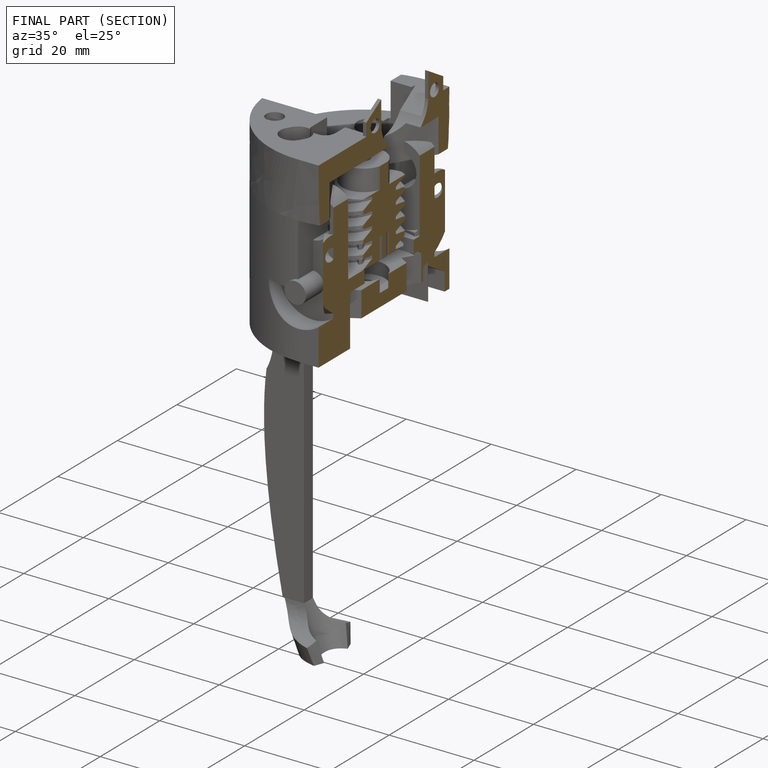
[diagram: finished part — half-section view (interior)]
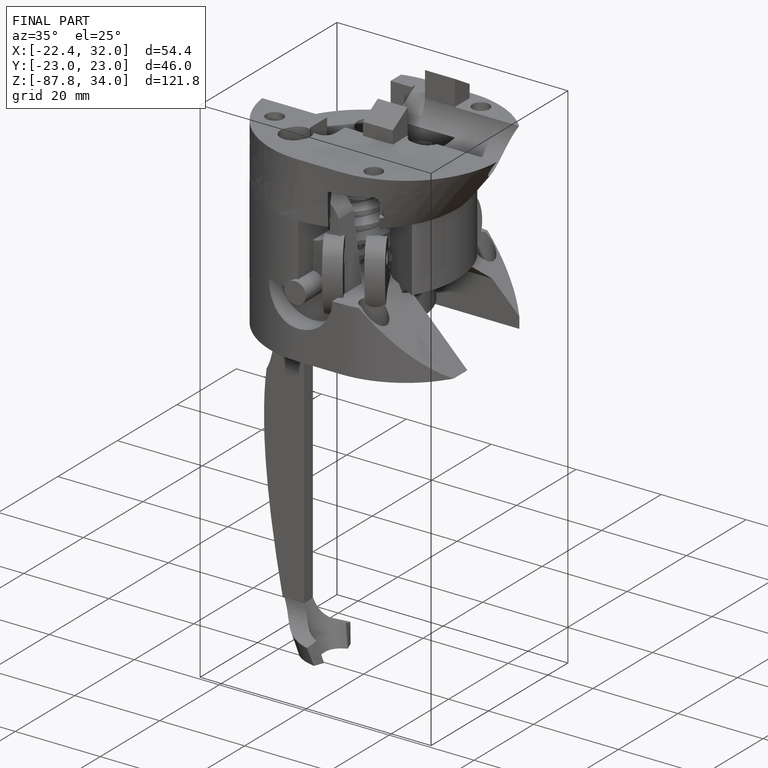
[diagram: finished part — iso view with bounding-box wireframe]
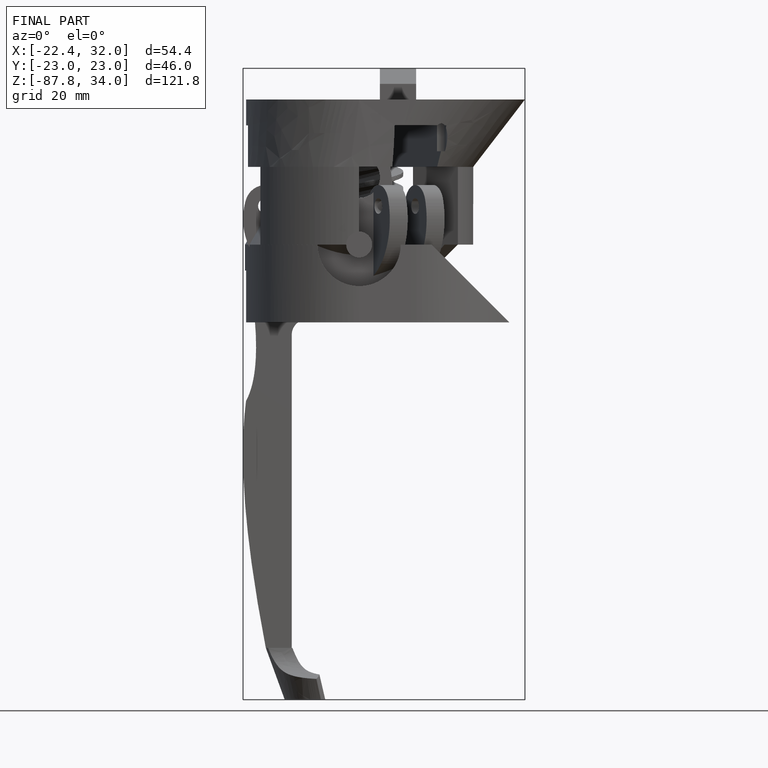
[diagram: finished part — front view with bounding-box wireframe]
